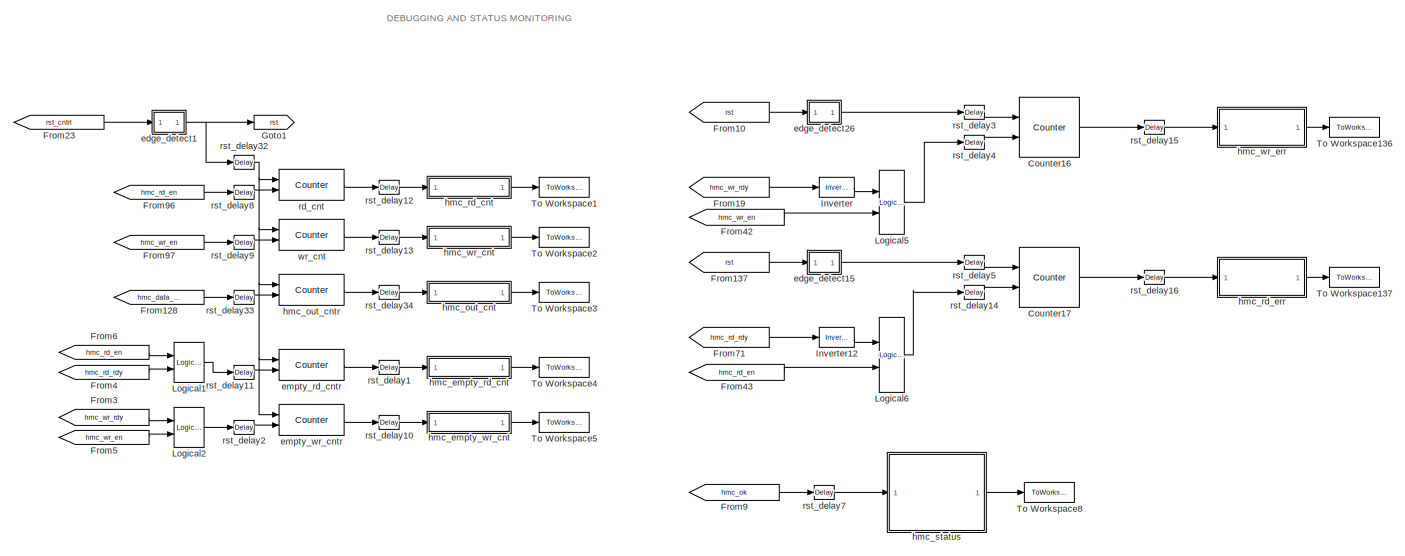
[diagram: root canvas - part 1/8, top center region]
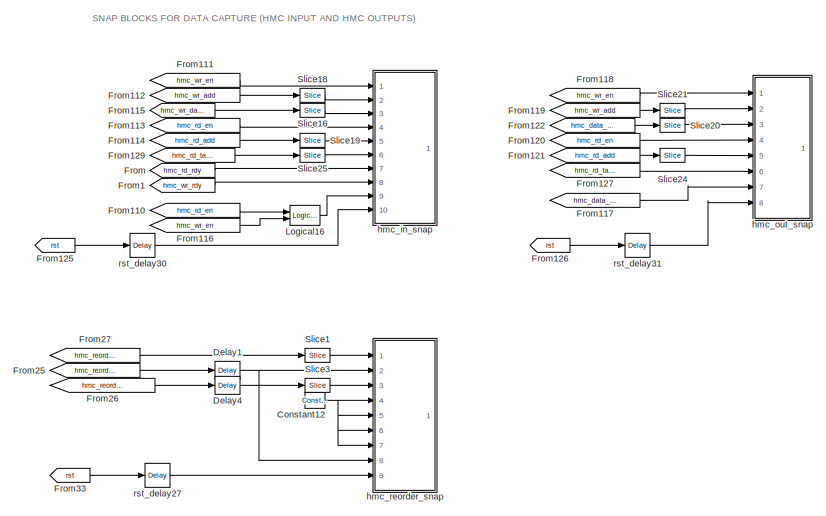
[diagram: root canvas - part 2/8, top right region]
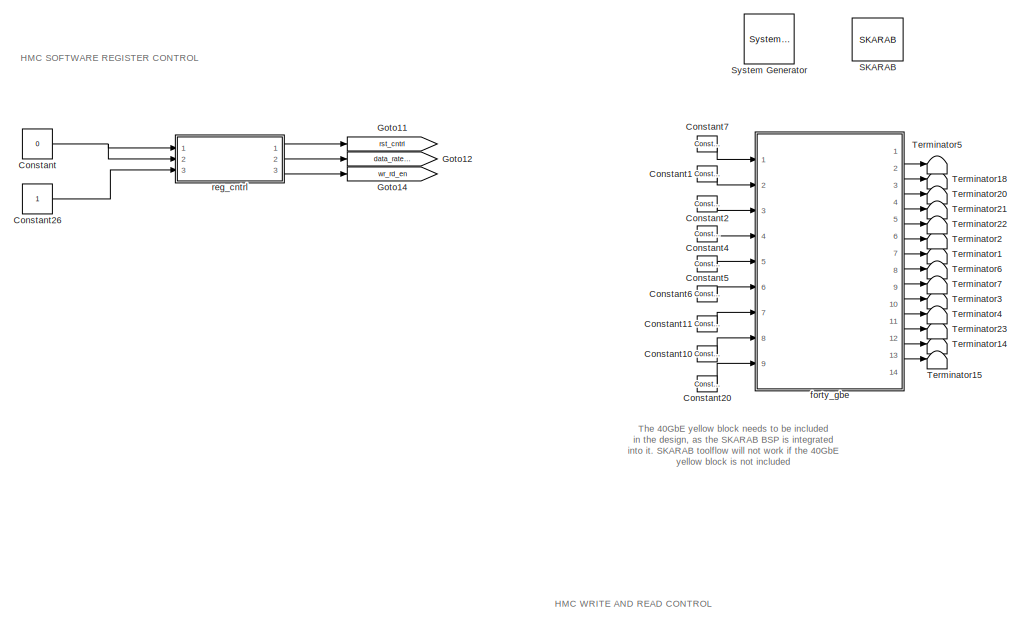
[diagram: root canvas - part 3/8, top left region]
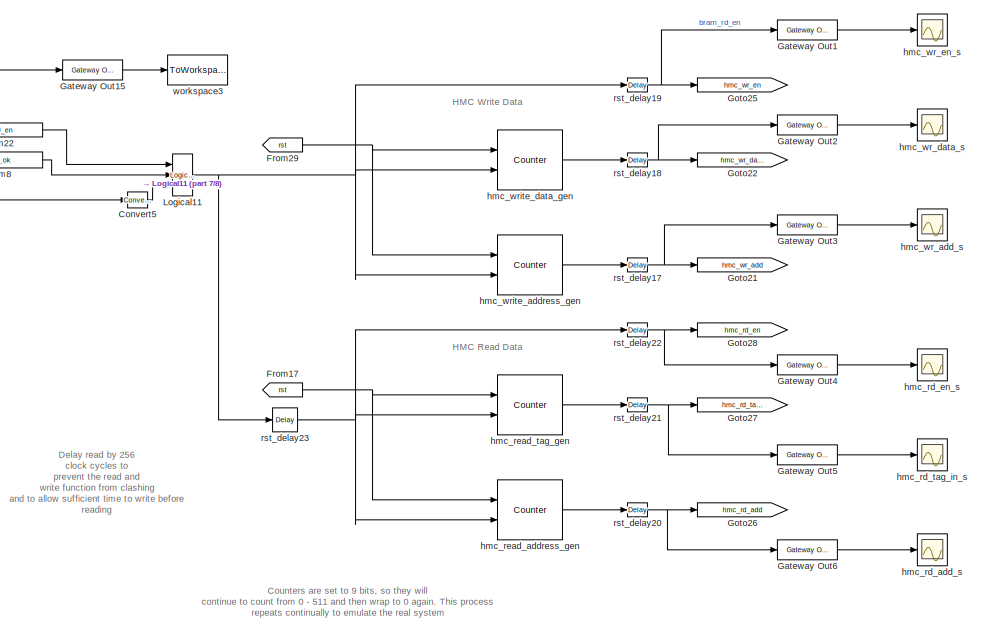
[diagram: root canvas - part 4/8, middle left region]
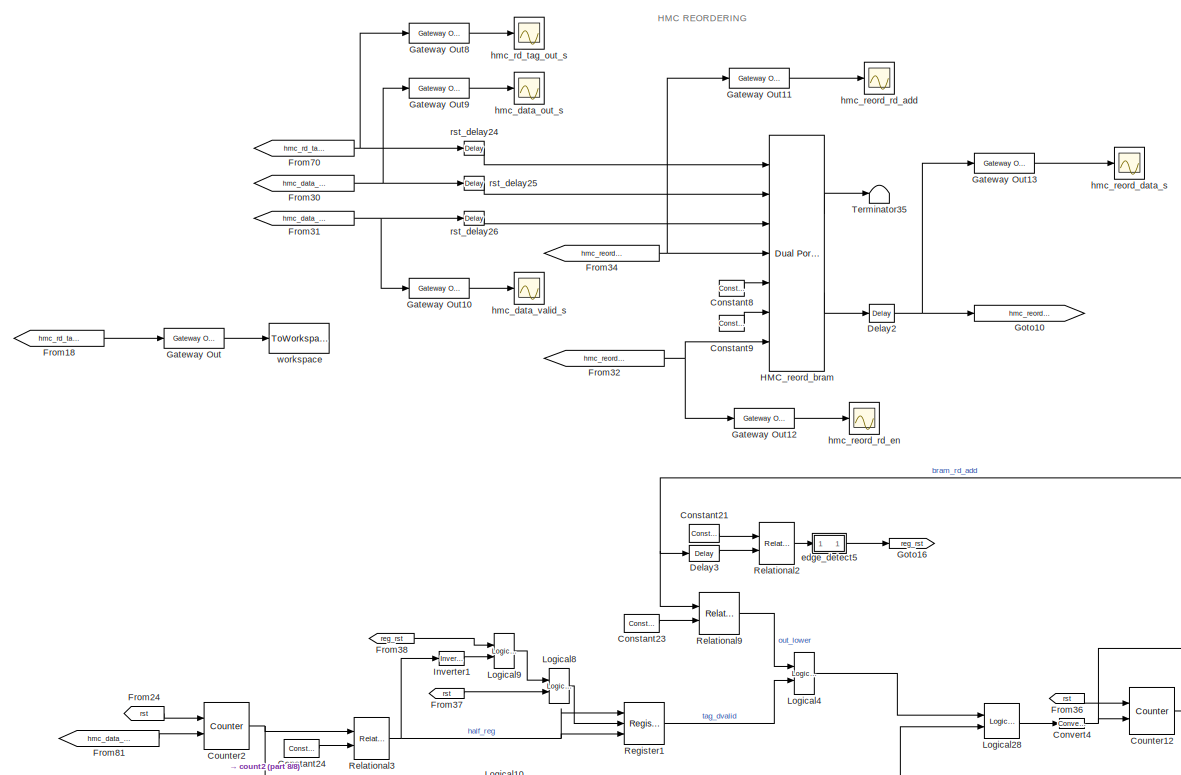
[diagram: root canvas - part 5/8, middle right region]
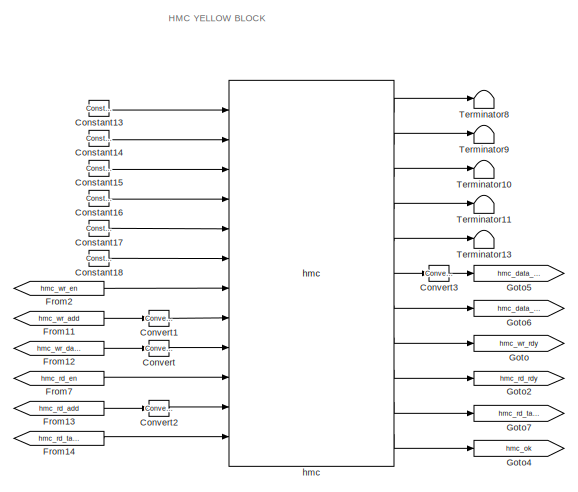
[diagram: root canvas - part 6/8, central region]
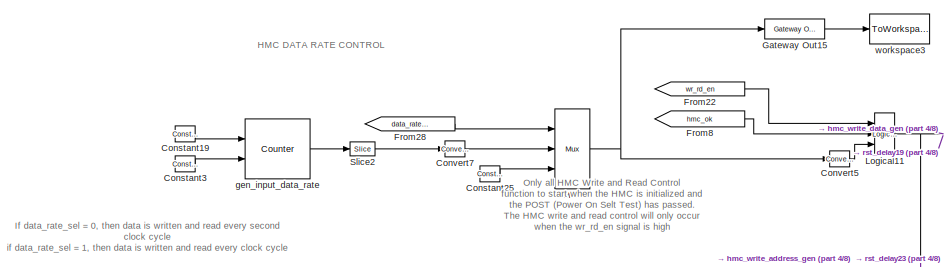
[diagram: root canvas - part 7/8, middle left region]
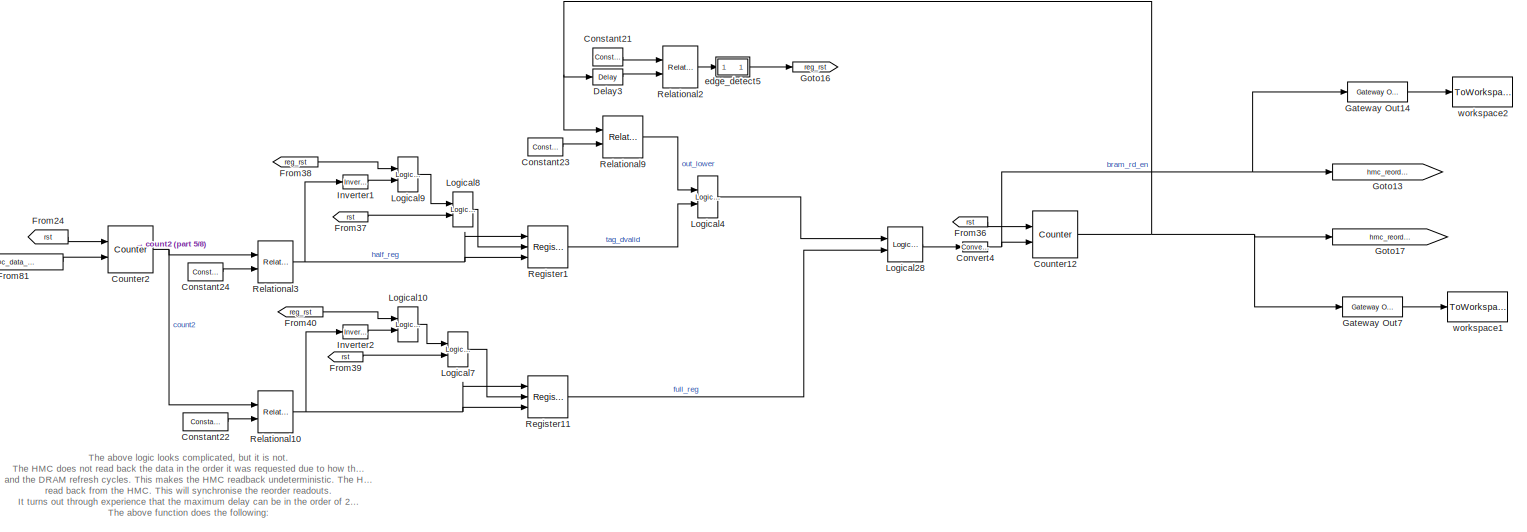
[diagram: root canvas - part 8/8, bottom right region]
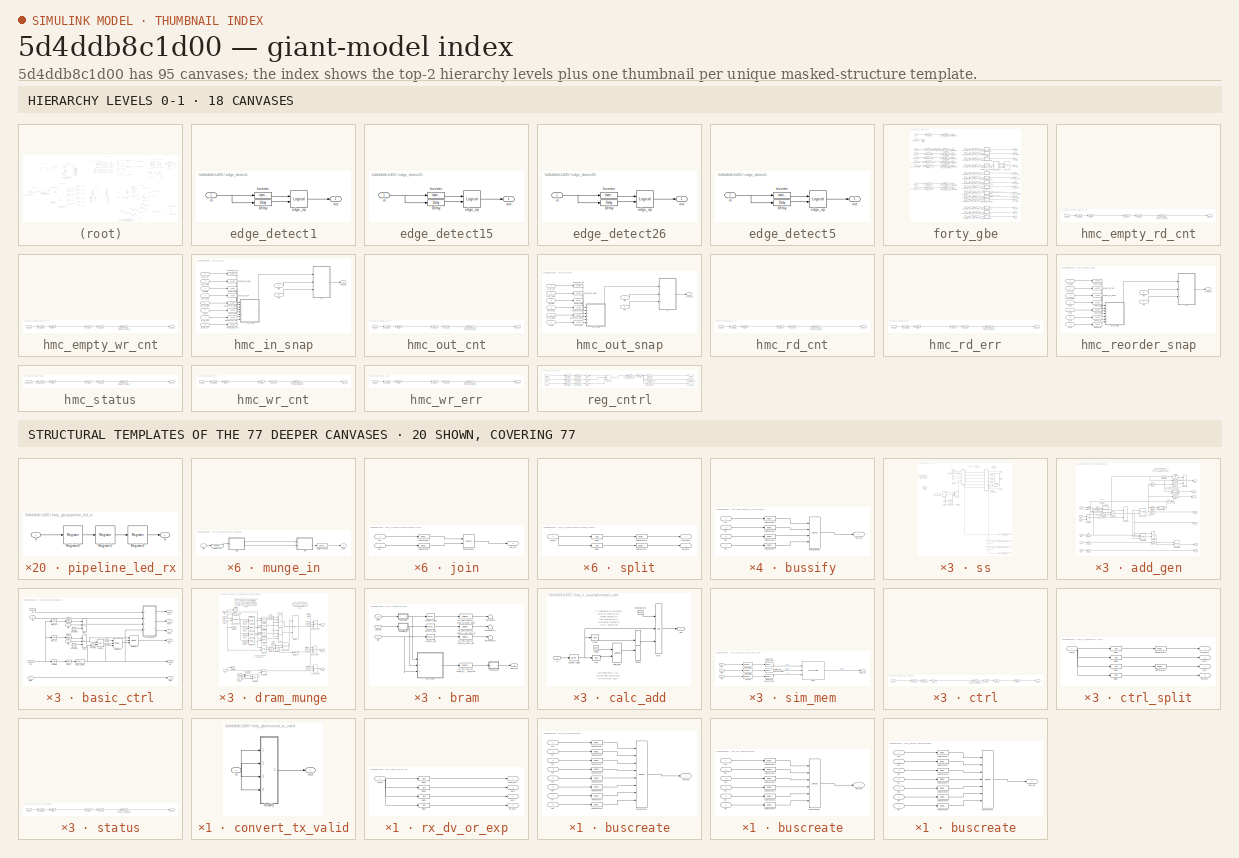
[diagram: thumbnail index - top-2 hierarchy levels (18 canvases) + 20 structural-template representatives of the remaining 77 canvases]
MODEL slx_5d4ddb8c1d00
KIND model
CONFIG AbsTol = auto
CONFIG EnableMultiTasking = off
CONFIG FixedStep = auto
CONFIG MaxStep = auto
CONFIG MinStep = auto
CONFIG RelTol = 1e-3
CONFIG SampleTimeConstraint = Unconstrained
CONFIG Solver = VariableStepDiscrete
CONFIG SolverName = VariableStepDiscrete
CONFIG StartTime = 0.0
CONFIG StopTime = 3000
BLOCK [Reference]  System Generator  REF=xbsIndex_r4/ System Generator
  AttributesFormatString = System\nGenerator
  Ports = []
  SourceBlock = xbsIndex_r4/ System Generator
  SourceType = Xilinx System Generator Block
  Tag = genX
  UserDataPersistent = on
BLOCK [Constant] Constant
  Value = 0
BLOCK [Reference] Constant1  REF=xbsIndex_r4/Constant
  Ports = [0, 1]
  SourceBlock = xbsIndex_r4/Constant
  SourceType = Xilinx Constant Block Block
BLOCK [Reference] Constant10  REF=xbsIndex_r4/Constant
  Ports = [0, 1]
  SourceBlock = xbsIndex_r4/Constant
  SourceType = Xilinx Constant Block Block
BLOCK [Reference] Constant11  REF=xbsIndex_r4/Constant
  Ports = [0, 1]
  SourceBlock = xbsIndex_r4/Constant
  SourceType = Xilinx Constant Block Block
BLOCK [Reference] Constant12  REF=xbsIndex_r4/Constant
  Ports = [0, 1]
  SourceBlock = xbsIndex_r4/Constant
  SourceType = Xilinx Constant Block Block
BLOCK [Reference] Constant13  REF=xbsIndex_r4/Constant
  Ports = [0, 1]
  SourceBlock = xbsIndex_r4/Constant
  SourceType = Xilinx Constant Block Block
BLOCK [Reference] Constant14  REF=xbsIndex_r4/Constant
  Ports = [0, 1]
  SourceBlock = xbsIndex_r4/Constant
  SourceType = Xilinx Constant Block Block
BLOCK [Reference] Constant15  REF=xbsIndex_r4/Constant
  Ports = [0, 1]
  SourceBlock = xbsIndex_r4/Constant
  SourceType = Xilinx Constant Block Block
BLOCK [Reference] Constant16  REF=xbsIndex_r4/Constant
  Ports = [0, 1]
  SourceBlock = xbsIndex_r4/Constant
  SourceType = Xilinx Constant Block Block
BLOCK [Reference] Constant17  REF=xbsIndex_r4/Constant
  Ports = [0, 1]
  SourceBlock = xbsIndex_r4/Constant
  SourceType = Xilinx Constant Block Block
BLOCK [Reference] Constant18  REF=xbsIndex_r4/Constant
  Ports = [0, 1]
  SourceBlock = xbsIndex_r4/Constant
  SourceType = Xilinx Constant Block Block
BLOCK [Reference] Constant19  REF=xbsIndex_r4/Constant
  Ports = [0, 1]
  SourceBlock = xbsIndex_r4/Constant
  SourceType = Xilinx Constant Block Block
BLOCK [Reference] Constant2  REF=xbsIndex_r4/Constant
  Ports = [0, 1]
  SourceBlock = xbsIndex_r4/Constant
  SourceType = Xilinx Constant Block Block
BLOCK [Reference] Constant20  REF=xbsIndex_r4/Constant
  Ports = [0, 1]
  SourceBlock = xbsIndex_r4/Constant
  SourceType = Xilinx Constant Block Block
BLOCK [Reference] Constant21  REF=xbsIndex_r4/Constant
  Ports = [0, 1]
  SourceBlock = xbsIndex_r4/Constant
  SourceType = Xilinx Constant Block Block
BLOCK [Reference] Constant22  REF=xbsIndex_r4/Constant
  Ports = [0, 1]
  SourceBlock = xbsIndex_r4/Constant
  SourceType = Xilinx Constant Block Block
BLOCK [Reference] Constant23  REF=xbsIndex_r4/Constant
  Ports = [0, 1]
  SourceBlock = xbsIndex_r4/Constant
  SourceType = Xilinx Constant Block Block
BLOCK [Reference] Constant24  REF=xbsIndex_r4/Constant
  Ports = [0, 1]
  SourceBlock = xbsIndex_r4/Constant
  SourceType = Xilinx Constant Block Block
BLOCK [Reference] Constant25  REF=xbsIndex_r4/Constant
  Ports = [0, 1]
  SourceBlock = xbsIndex_r4/Constant
  SourceType = Xilinx Constant Block Block
BLOCK [Constant] Constant26
BLOCK [Reference] Constant3  REF=xbsIndex_r4/Constant
  Ports = [0, 1]
  SourceBlock = xbsIndex_r4/Constant
  SourceType = Xilinx Constant Block Block
BLOCK [Reference] Constant4  REF=xbsIndex_r4/Constant
  Ports = [0, 1]
  SourceBlock = xbsIndex_r4/Constant
  SourceType = Xilinx Constant Block Block
BLOCK [Reference] Constant5  REF=xbsIndex_r4/Constant
  Ports = [0, 1]
  SourceBlock = xbsIndex_r4/Constant
  SourceType = Xilinx Constant Block Block
BLOCK [Reference] Constant6  REF=xbsIndex_r4/Constant
  Ports = [0, 1]
  SourceBlock = xbsIndex_r4/Constant
  SourceType = Xilinx Constant Block Block
BLOCK [Reference] Constant7  REF=xbsIndex_r4/Constant
  Ports = [0, 1]
  SourceBlock = xbsIndex_r4/Constant
  SourceType = Xilinx Constant Block Block
BLOCK [Reference] Constant8  REF=xbsIndex_r4/Constant
  Ports = [0, 1]
  SourceBlock = xbsIndex_r4/Constant
  SourceType = Xilinx Constant Block Block
BLOCK [Reference] Constant9  REF=xbsIndex_r4/Constant
  Ports = [0, 1]
  SourceBlock = xbsIndex_r4/Constant
  SourceType = Xilinx Constant Block Block
BLOCK [Reference] Convert  REF=xbsIndex_r4/Convert
  Ports = [1, 1]
  SourceBlock = xbsIndex_r4/Convert
  SourceType = Xilinx Type Converter Block
BLOCK [Reference] Convert1  REF=xbsIndex_r4/Convert
  Ports = [1, 1]
  SourceBlock = xbsIndex_r4/Convert
  SourceType = Xilinx Type Converter Block
BLOCK [Reference] Convert2  REF=xbsIndex_r4/Convert
  Ports = [1, 1]
  SourceBlock = xbsIndex_r4/Convert
  SourceType = Xilinx Type Converter Block
BLOCK [Reference] Convert3  REF=xbsIndex_r4/Convert
  Ports = [1, 1]
  SourceBlock = xbsIndex_r4/Convert
  SourceType = Xilinx Type Converter Block
BLOCK [Reference] Convert4  REF=xbsIndex_r4/Convert
  Ports = [1, 1]
  SourceBlock = xbsIndex_r4/Convert
  SourceType = Xilinx Type Converter Block
BLOCK [Reference] Convert5  REF=xbsIndex_r4/Convert
  Ports = [1, 1]
  SourceBlock = xbsIndex_r4/Convert
  SourceType = Xilinx Type Converter Block
BLOCK [Reference] Convert7  REF=xbsIndex_r4/Convert
  Ports = [1, 1]
  SourceBlock = xbsIndex_r4/Convert
  SourceType = Xilinx Type Converter Block
BLOCK [Reference] Counter12  REF=xbsIndex_r4/Counter
  Ports = [2, 1]
  SourceBlock = xbsIndex_r4/Counter
  SourceType = Xilinx Counter Block
BLOCK [Reference] Counter16  REF=xbsIndex_r4/Counter
  Ports = [2, 1]
  SourceBlock = xbsIndex_r4/Counter
  SourceType = Xilinx Counter Block
BLOCK [Reference] Counter17  REF=xbsIndex_r4/Counter
  Ports = [2, 1]
  SourceBlock = xbsIndex_r4/Counter
  SourceType = Xilinx Counter Block
BLOCK [Reference] Counter2  REF=xbsIndex_r4/Counter
  Ports = [2, 1]
  SourceBlock = xbsIndex_r4/Counter
  SourceType = Xilinx Counter Block
BLOCK [Reference] Delay1  REF=xbsIndex_r4/Delay
  Ports = [1, 1]
  SourceBlock = xbsIndex_r4/Delay
  SourceType = Xilinx Delay Block
BLOCK [Reference] Delay2  REF=xbsIndex_r4/Delay
  Ports = [1, 1]
  SourceBlock = xbsIndex_r4/Delay
  SourceType = Xilinx Delay Block
BLOCK [Reference] Delay3  REF=xbsIndex_r4/Delay
  Ports = [1, 1]
  SourceBlock = xbsIndex_r4/Delay
  SourceType = Xilinx Delay Block
BLOCK [Reference] Delay4  REF=xbsIndex_r4/Delay
  Ports = [1, 1]
  SourceBlock = xbsIndex_r4/Delay
  SourceType = Xilinx Delay Block
BLOCK [From] From
  GotoTag = hmc_rd_rdy
BLOCK [From] From1
  GotoTag = hmc_wr_rdy
BLOCK [From] From10
  GotoTag = rst
BLOCK [From] From11
  CloseFcn = tagdialog Close
  GotoTag = hmc_wr_add
BLOCK [From] From110
  CloseFcn = tagdialog Close
  GotoTag = hmc_rd_en
BLOCK [From] From111
  CloseFcn = tagdialog Close
  GotoTag = hmc_wr_en
BLOCK [From] From112
  CloseFcn = tagdialog Close
  GotoTag = hmc_wr_add
BLOCK [From] From113
  CloseFcn = tagdialog Close
  GotoTag = hmc_rd_en
BLOCK [From] From114
  CloseFcn = tagdialog Close
  GotoTag = hmc_rd_add
BLOCK [From] From115
  GotoTag = hmc_wr_data
BLOCK [From] From116
  CloseFcn = tagdialog Close
  GotoTag = hmc_wr_en
BLOCK [From] From117
  CloseFcn = tagdialog Close
  GotoTag = hmc_data_valid
BLOCK [From] From118
  CloseFcn = tagdialog Close
  GotoTag = hmc_wr_en
BLOCK [From] From119
  CloseFcn = tagdialog Close
  GotoTag = hmc_wr_add
BLOCK [From] From12
  CloseFcn = tagdialog Close
  GotoTag = hmc_wr_data
BLOCK [From] From120
  CloseFcn = tagdialog Close
  GotoTag = hmc_rd_en
BLOCK [From] From121
  CloseFcn = tagdialog Close
  GotoTag = hmc_rd_add
BLOCK [From] From122
  GotoTag = hmc_data_out
BLOCK [From] From125
  CloseFcn = tagdialog Close
  GotoTag = rst
BLOCK [From] From126
  CloseFcn = tagdialog Close
  GotoTag = rst
BLOCK [From] From127
  CloseFcn = tagdialog Close
  GotoTag = hmc_rd_tag_out
BLOCK [From] From128
  CloseFcn = tagdialog Close
  GotoTag = hmc_data_valid
BLOCK [From] From129
  CloseFcn = tagdialog Close
  GotoTag = hmc_rd_tag_in
BLOCK [From] From13
  CloseFcn = tagdialog Close
  GotoTag = hmc_rd_add
BLOCK [From] From137
  GotoTag = rst
BLOCK [From] From14
  CloseFcn = tagdialog Close
  GotoTag = hmc_rd_tag_in
BLOCK [From] From17
  GotoTag = rst
BLOCK [From] From18
  GotoTag = hmc_rd_tag_out
BLOCK [From] From19
  GotoTag = hmc_wr_rdy
BLOCK [From] From2
  CloseFcn = tagdialog Close
  GotoTag = hmc_wr_en
BLOCK [From] From22
  GotoTag = wr_rd_en
BLOCK [From] From23
  GotoTag = rst_cntrl
BLOCK [From] From24
  GotoTag = rst
BLOCK [From] From25
  CloseFcn = tagdialog Close
  GotoTag = hmc_reord_rd_en
BLOCK [From] From26
  CloseFcn = tagdialog Close
  GotoTag = hmc_reord_rd_add
BLOCK [From] From27
  GotoTag = hmc_reord_data
BLOCK [From] From28
  GotoTag = data_rate_sel
BLOCK [From] From29
  GotoTag = rst
BLOCK [From] From3
  CloseFcn = tagdialog Close
  GotoTag = hmc_wr_rdy
BLOCK [From] From30
  GotoTag = hmc_data_out
BLOCK [From] From31
  GotoTag = hmc_data_valid
BLOCK [From] From32
  GotoTag = hmc_reord_rd_en
BLOCK [From] From33
  CloseFcn = tagdialog Close
  GotoTag = rst
BLOCK [From] From34
  GotoTag = hmc_reord_rd_add
BLOCK [From] From36
  GotoTag = rst
BLOCK [From] From37
  GotoTag = rst
BLOCK [From] From38
  GotoTag = reg_rst
BLOCK [From] From39
  GotoTag = rst
BLOCK [From] From4
  CloseFcn = tagdialog Close
  GotoTag = hmc_rd_rdy
BLOCK [From] From40
  GotoTag = reg_rst
BLOCK [From] From42
  GotoTag = hmc_wr_en
BLOCK [From] From43
  GotoTag = hmc_rd_en
BLOCK [From] From5
  CloseFcn = tagdialog Close
  GotoTag = hmc_wr_en
BLOCK [From] From6
  CloseFcn = tagdialog Close
  GotoTag = hmc_rd_en
BLOCK [From] From7
  CloseFcn = tagdialog Close
  GotoTag = hmc_rd_en
BLOCK [From] From70
  GotoTag = hmc_rd_tag_out
BLOCK [From] From71
  GotoTag = hmc_rd_rdy
BLOCK [From] From8
  GotoTag = hmc_ok
BLOCK [From] From81
  GotoTag = hmc_data_valid
BLOCK [From] From9
  GotoTag = hmc_ok
BLOCK [From] From96
  CloseFcn = tagdialog Close
  GotoTag = hmc_rd_en
BLOCK [From] From97
  CloseFcn = tagdialog Close
  GotoTag = hmc_wr_en
BLOCK [Reference] Gateway Out  REF=xbsIndex_r4/Gateway Out
  Ports = [1, 1]
  SourceBlock = xbsIndex_r4/Gateway Out
  SourceType = Xilinx Gateway Out Block
BLOCK [Reference] Gateway Out1  REF=xbsIndex_r4/Gateway Out
  Ports = [1, 1]
  SourceBlock = xbsIndex_r4/Gateway Out
  SourceType = Xilinx Gateway Out Block
BLOCK [Reference] Gateway Out10  REF=xbsIndex_r4/Gateway Out
  Ports = [1, 1]
  SourceBlock = xbsIndex_r4/Gateway Out
  SourceType = Xilinx Gateway Out Block
BLOCK [Reference] Gateway Out11  REF=xbsIndex_r4/Gateway Out
  Ports = [1, 1]
  SourceBlock = xbsIndex_r4/Gateway Out
  SourceType = Xilinx Gateway Out Block
BLOCK [Reference] Gateway Out12  REF=xbsIndex_r4/Gateway Out
  Ports = [1, 1]
  SourceBlock = xbsIndex_r4/Gateway Out
  SourceType = Xilinx Gateway Out Block
BLOCK [Reference] Gateway Out13  REF=xbsIndex_r4/Gateway Out
  Ports = [1, 1]
  SourceBlock = xbsIndex_r4/Gateway Out
  SourceType = Xilinx Gateway Out Block
BLOCK [Reference] Gateway Out14  REF=xbsIndex_r4/Gateway Out
  Ports = [1, 1]
  SourceBlock = xbsIndex_r4/Gateway Out
  SourceType = Xilinx Gateway Out Block
BLOCK [Reference] Gateway Out15  REF=xbsIndex_r4/Gateway Out
  Ports = [1, 1]
  SourceBlock = xbsIndex_r4/Gateway Out
  SourceType = Xilinx Gateway Out Block
BLOCK [Reference] Gateway Out2  REF=xbsIndex_r4/Gateway Out
  Ports = [1, 1]
  SourceBlock = xbsIndex_r4/Gateway Out
  SourceType = Xilinx Gateway Out Block
BLOCK [Reference] Gateway Out3  REF=xbsIndex_r4/Gateway Out
  Ports = [1, 1]
  SourceBlock = xbsIndex_r4/Gateway Out
  SourceType = Xilinx Gateway Out Block
BLOCK [Reference] Gateway Out4  REF=xbsIndex_r4/Gateway Out
  Ports = [1, 1]
  SourceBlock = xbsIndex_r4/Gateway Out
  SourceType = Xilinx Gateway Out Block
BLOCK [Reference] Gateway Out5  REF=xbsIndex_r4/Gateway Out
  Ports = [1, 1]
  SourceBlock = xbsIndex_r4/Gateway Out
  SourceType = Xilinx Gateway Out Block
BLOCK [Reference] Gateway Out6  REF=xbsIndex_r4/Gateway Out
  Ports = [1, 1]
  SourceBlock = xbsIndex_r4/Gateway Out
  SourceType = Xilinx Gateway Out Block
BLOCK [Reference] Gateway Out7  REF=xbsIndex_r4/Gateway Out
  Ports = [1, 1]
  SourceBlock = xbsIndex_r4/Gateway Out
  SourceType = Xilinx Gateway Out Block
BLOCK [Reference] Gateway Out8  REF=xbsIndex_r4/Gateway Out
  Ports = [1, 1]
  SourceBlock = xbsIndex_r4/Gateway Out
  SourceType = Xilinx Gateway Out Block
BLOCK [Reference] Gateway Out9  REF=xbsIndex_r4/Gateway Out
  Ports = [1, 1]
  SourceBlock = xbsIndex_r4/Gateway Out
  SourceType = Xilinx Gateway Out Block
BLOCK [Goto] Goto
  GotoTag = hmc_wr_rdy
BLOCK [Goto] Goto1
  GotoTag = rst
BLOCK [Goto] Goto10
  GotoTag = hmc_reord_data
BLOCK [Goto] Goto11
  GotoTag = rst_cntrl
BLOCK [Goto] Goto12
  GotoTag = data_rate_sel
BLOCK [Goto] Goto13
  GotoTag = hmc_reord_rd_en
BLOCK [Goto] Goto14
  GotoTag = wr_rd_en
BLOCK [Goto] Goto16
  GotoTag = reg_rst
BLOCK [Goto] Goto17
  GotoTag = hmc_reord_rd_add
BLOCK [Goto] Goto2
  GotoTag = hmc_rd_rdy
BLOCK [Goto] Goto21
  GotoTag = hmc_wr_add
BLOCK [Goto] Goto22
  GotoTag = hmc_wr_data
BLOCK [Goto] Goto25
  GotoTag = hmc_wr_en
BLOCK [Goto] Goto26
  GotoTag = hmc_rd_add
BLOCK [Goto] Goto27
  GotoTag = hmc_rd_tag_in
BLOCK [Goto] Goto28
  GotoTag = hmc_rd_en
BLOCK [Goto] Goto4
  GotoTag = hmc_ok
BLOCK [Goto] Goto5
  GotoTag = hmc_data_out
BLOCK [Goto] Goto6
  GotoTag = hmc_data_valid
BLOCK [Goto] Goto7
  GotoTag = hmc_rd_tag_out
BLOCK [Reference] HMC_reord_bram  REF=xbsIndex_r4/Dual Port RAM
  Ports = [7, 2]
  SourceBlock = xbsIndex_r4/Dual Port RAM
  SourceType = Xilinx Dual Port Random Access Memory Block
BLOCK [Reference] Inverter  REF=xbsIndex_r4/Inverter
  Ports = [1, 1]
  SourceBlock = xbsIndex_r4/Inverter
  SourceType = Xilinx Inverter Block
BLOCK [Reference] Inverter1  REF=xbsIndex_r4/Inverter
  Ports = [1, 1]
  SourceBlock = xbsIndex_r4/Inverter
  SourceType = Xilinx Inverter Block
BLOCK [Reference] Inverter12  REF=xbsIndex_r4/Inverter
  Ports = [1, 1]
  SourceBlock = xbsIndex_r4/Inverter
  SourceType = Xilinx Inverter Block
BLOCK [Reference] Inverter2  REF=xbsIndex_r4/Inverter
  Ports = [1, 1]
  SourceBlock = xbsIndex_r4/Inverter
  SourceType = Xilinx Inverter Block
BLOCK [Reference] Logical1  REF=xbsIndex_r4/Logical
  Ports = [2, 1]
  SourceBlock = xbsIndex_r4/Logical
  SourceType = Xilinx Logical Block Block
BLOCK [Reference] Logical10  REF=xbsIndex_r4/Logical
  Ports = [2, 1]
  SourceBlock = xbsIndex_r4/Logical
  SourceType = Xilinx Logical Block Block
BLOCK [Reference] Logical11  REF=xbsIndex_r4/Logical
  Ports = [3, 1]
  SourceBlock = xbsIndex_r4/Logical
  SourceType = Xilinx Logical Block Block
BLOCK [Reference] Logical16  REF=xbsIndex_r4/Logical
  Ports = [2, 1]
  SourceBlock = xbsIndex_r4/Logical
  SourceType = Xilinx Logical Block Block
BLOCK [Reference] Logical2  REF=xbsIndex_r4/Logical
  Ports = [2, 1]
  SourceBlock = xbsIndex_r4/Logical
  SourceType = Xilinx Logical Block Block
BLOCK [Reference] Logical28  REF=xbsIndex_r4/Logical
  Ports = [2, 1]
  SourceBlock = xbsIndex_r4/Logical
  SourceType = Xilinx Logical Block Block
BLOCK [Reference] Logical4  REF=xbsIndex_r4/Logical
  Ports = [2, 1]
  SourceBlock = xbsIndex_r4/Logical
  SourceType = Xilinx Logical Block Block
BLOCK [Reference] Logical5  REF=xbsIndex_r4/Logical
  Ports = [2, 1]
  SourceBlock = xbsIndex_r4/Logical
  SourceType = Xilinx Logical Block Block
BLOCK [Reference] Logical6  REF=xbsIndex_r4/Logical
  Ports = [2, 1]
  SourceBlock = xbsIndex_r4/Logical
  SourceType = Xilinx Logical Block Block
BLOCK [Reference] Logical7  REF=xbsIndex_r4/Logical
  Ports = [2, 1]
  SourceBlock = xbsIndex_r4/Logical
  SourceType = Xilinx Logical Block Block
BLOCK [Reference] Logical8  REF=xbsIndex_r4/Logical
  Ports = [2, 1]
  SourceBlock = xbsIndex_r4/Logical
  SourceType = Xilinx Logical Block Block
BLOCK [Reference] Logical9  REF=xbsIndex_r4/Logical
  Ports = [2, 1]
  SourceBlock = xbsIndex_r4/Logical
  SourceType = Xilinx Logical Block Block
BLOCK [Reference] Mux  REF=xbsIndex_r4/Mux
  Ports = [3, 1]
  SourceBlock = xbsIndex_r4/Mux
  SourceType = Xilinx Bus Multiplexer Block
BLOCK [Reference] Register1  REF=xbsIndex_r4/Register
  Ports = [3, 1]
  SourceBlock = xbsIndex_r4/Register
  SourceType = Xilinx Register Block
BLOCK [Reference] Register11  REF=xbsIndex_r4/Register
  Ports = [3, 1]
  SourceBlock = xbsIndex_r4/Register
  SourceType = Xilinx Register Block
BLOCK [Reference] Relational10  REF=xbsIndex_r4/Relational
  Ports = [2, 1]
  SourceBlock = xbsIndex_r4/Relational
  SourceType = Xilinx Arithmetic Relational Operator Block
BLOCK [Reference] Relational2  REF=xbsIndex_r4/Relational
  Ports = [2, 1]
  SourceBlock = xbsIndex_r4/Relational
  SourceType = Xilinx Arithmetic Relational Operator Block
BLOCK [Reference] Relational3  REF=xbsIndex_r4/Relational
  Ports = [2, 1]
  SourceBlock = xbsIndex_r4/Relational
  SourceType = Xilinx Arithmetic Relational Operator Block
BLOCK [Reference] Relational9  REF=xbsIndex_r4/Relational
  Ports = [2, 1]
  SourceBlock = xbsIndex_r4/Relational
  SourceType = Xilinx Arithmetic Relational Operator Block
BLOCK [Reference] SKARAB  REF=xps_library/Platforms/SKARAB  (lib defined in mdl_00b5cec29cd0, mdl_02ab6ecaa3d1, +5 more)
  Ports = []
  SourceBlock = xps_library/Platforms/SKARAB
  SourceProductName = CASPER XPS Blockset
  SourceType = xsg core config
  Tag = xps:xsg
BLOCK [Reference] Slice1  REF=xbsIndex_r4/Slice
  Ports = [1, 1]
  SourceBlock = xbsIndex_r4/Slice
  SourceType = Xilinx Bit Slice Extractor Block
BLOCK [Reference] Slice16  REF=xbsIndex_r4/Slice
  Ports = [1, 1]
  SourceBlock = xbsIndex_r4/Slice
  SourceType = Xilinx Bit Slice Extractor Block
BLOCK [Reference] Slice18  REF=xbsIndex_r4/Slice
  Ports = [1, 1]
  SourceBlock = xbsIndex_r4/Slice
  SourceType = Xilinx Bit Slice Extractor Block
BLOCK [Reference] Slice19  REF=xbsIndex_r4/Slice
  Ports = [1, 1]
  SourceBlock = xbsIndex_r4/Slice
  SourceType = Xilinx Bit Slice Extractor Block
BLOCK [Reference] Slice2  REF=xbsIndex_r4/Slice
  Ports = [1, 1]
  SourceBlock = xbsIndex_r4/Slice
  SourceType = Xilinx Bit Slice Extractor Block
BLOCK [Reference] Slice20  REF=xbsIndex_r4/Slice
  Ports = [1, 1]
  SourceBlock = xbsIndex_r4/Slice
  SourceType = Xilinx Bit Slice Extractor Block
BLOCK [Reference] Slice21  REF=xbsIndex_r4/Slice
  Ports = [1, 1]
  SourceBlock = xbsIndex_r4/Slice
  SourceType = Xilinx Bit Slice Extractor Block
BLOCK [Reference] Slice24  REF=xbsIndex_r4/Slice
  Ports = [1, 1]
  SourceBlock = xbsIndex_r4/Slice
  SourceType = Xilinx Bit Slice Extractor Block
BLOCK [Reference] Slice25  REF=xbsIndex_r4/Slice
  Ports = [1, 1]
  SourceBlock = xbsIndex_r4/Slice
  SourceType = Xilinx Bit Slice Extractor Block
BLOCK [Reference] Slice3  REF=xbsIndex_r4/Slice
  Ports = [1, 1]
  SourceBlock = xbsIndex_r4/Slice
  SourceType = Xilinx Bit Slice Extractor Block
BLOCK [Terminator] Terminator1
BLOCK [Terminator] Terminator10
BLOCK [Terminator] Terminator11
BLOCK [Terminator] Terminator13
BLOCK [Terminator] Terminator14
BLOCK [Terminator] Terminator15
BLOCK [Terminator] Terminator18
BLOCK [Terminator] Terminator2
BLOCK [Terminator] Terminator20
BLOCK [Terminator] Terminator21
BLOCK [Terminator] Terminator22
BLOCK [Terminator] Terminator23
BLOCK [Terminator] Terminator3
BLOCK [Terminator] Terminator35
BLOCK [Terminator] Terminator4
BLOCK [Terminator] Terminator5
BLOCK [Terminator] Terminator6
BLOCK [Terminator] Terminator7
BLOCK [Terminator] Terminator8
BLOCK [Terminator] Terminator9
BLOCK [ToWorkspace] To Workspace1
  FixptAsFi = on
  MaxDataPoints = inf
  Ports = [1]
  SampleTime = -1
  Save2DSignal = 3-D array (concatenate along third dimension)
  SaveFormat = Timeseries
  VariableName = tp4
BLOCK [ToWorkspace] To Workspace136
  FixptAsFi = on
  MaxDataPoints = inf
  Ports = [1]
  SampleTime = -1
  Save2DSignal = 3-D array (concatenate along third dimension)
  SaveFormat = Timeseries
  VariableName = tp2
BLOCK [ToWorkspace] To Workspace137
  FixptAsFi = on
  MaxDataPoints = inf
  Ports = [1]
  SampleTime = -1
  Save2DSignal = 3-D array (concatenate along third dimension)
  SaveFormat = Timeseries
  VariableName = tp3
BLOCK [ToWorkspace] To Workspace2
  FixptAsFi = on
  MaxDataPoints = inf
  Ports = [1]
  SampleTime = -1
  Save2DSignal = 3-D array (concatenate along third dimension)
  SaveFormat = Timeseries
  VariableName = tp5
BLOCK [ToWorkspace] To Workspace3
  FixptAsFi = on
  MaxDataPoints = inf
  Ports = [1]
  SampleTime = -1
  Save2DSignal = 3-D array (concatenate along third dimension)
  SaveFormat = Timeseries
  VariableName = tp6
BLOCK [ToWorkspace] To Workspace4
  FixptAsFi = on
  MaxDataPoints = inf
  Ports = [1]
  SampleTime = -1
  Save2DSignal = 3-D array (concatenate along third dimension)
  SaveFormat = Timeseries
  VariableName = tp7
BLOCK [ToWorkspace] To Workspace5
  FixptAsFi = on
  MaxDataPoints = inf
  Ports = [1]
  SampleTime = -1
  Save2DSignal = 3-D array (concatenate along third dimension)
  SaveFormat = Timeseries
  VariableName = tp8
BLOCK [ToWorkspace] To Workspace8
  FixptAsFi = on
  MaxDataPoints = inf
  Ports = [1]
  SampleTime = -1
  Save2DSignal = 3-D array (concatenate along third dimension)
  SaveFormat = Timeseries
  VariableName = tp11
BLOCK [SubSystem] edge_detect1
  AncestorBlock = casper_library_misc/edge_detect
  AttributesFormatString = rising edges\nactive high
  Ports = [1, 1]
  RequestExecContextInheritance = off
  UserDataPersistent = on
BLOCK [Reference] edge_detect1/Delay  REF=xbsIndex_r4/Delay
  Ports = [1, 1]
  SourceBlock = xbsIndex_r4/Delay
  SourceType = Xilinx Delay Block
BLOCK [Reference] edge_detect1/Inverter  REF=xbsIndex_r4/Inverter
  Ports = [1, 1]
  SourceBlock = xbsIndex_r4/Inverter
  SourceType = Xilinx Inverter Block
BLOCK [Reference] edge_detect1/edge_op  REF=xbsIndex_r4/Logical
  Ports = [2, 1]
  SourceBlock = xbsIndex_r4/Logical
  SourceType = Xilinx Logical Block Block
BLOCK [Inport] edge_detect1/in
  IconDisplay = Port number
BLOCK [Outport] edge_detect1/out
  IconDisplay = Port number
BLOCK [SubSystem] edge_detect15
  AncestorBlock = casper_library_misc/edge_detect
  AttributesFormatString = rising edges\nactive high
  Ports = [1, 1]
  RequestExecContextInheritance = off
  UserDataPersistent = on
BLOCK [Reference] edge_detect15/Delay  REF=xbsIndex_r4/Delay
  Ports = [1, 1]
  SourceBlock = xbsIndex_r4/Delay
  SourceType = Xilinx Delay Block
BLOCK [Reference] edge_detect15/Inverter  REF=xbsIndex_r4/Inverter
  Ports = [1, 1]
  SourceBlock = xbsIndex_r4/Inverter
  SourceType = Xilinx Inverter Block
BLOCK [Reference] edge_detect15/edge_op  REF=xbsIndex_r4/Logical
  Ports = [2, 1]
  SourceBlock = xbsIndex_r4/Logical
  SourceType = Xilinx Logical Block Block
BLOCK [Inport] edge_detect15/in
  IconDisplay = Port number
BLOCK [Outport] edge_detect15/out
  IconDisplay = Port number
BLOCK [SubSystem] edge_detect26
  AncestorBlock = casper_library_misc/edge_detect
  AttributesFormatString = rising edges\nactive high
  Ports = [1, 1]
  RequestExecContextInheritance = off
  UserDataPersistent = on
BLOCK [Reference] edge_detect26/Delay  REF=xbsIndex_r4/Delay
  Ports = [1, 1]
  SourceBlock = xbsIndex_r4/Delay
  SourceType = Xilinx Delay Block
BLOCK [Reference] edge_detect26/Inverter  REF=xbsIndex_r4/Inverter
  Ports = [1, 1]
  SourceBlock = xbsIndex_r4/Inverter
  SourceType = Xilinx Inverter Block
BLOCK [Reference] edge_detect26/edge_op  REF=xbsIndex_r4/Logical
  Ports = [2, 1]
  SourceBlock = xbsIndex_r4/Logical
  SourceType = Xilinx Logical Block Block
BLOCK [Inport] edge_detect26/in
  IconDisplay = Port number
BLOCK [Outport] edge_detect26/out
  IconDisplay = Port number
BLOCK [SubSystem] edge_detect5
  AncestorBlock = casper_library_misc/edge_detect
  AttributesFormatString = rising edges\nactive high
  Ports = [1, 1]
  RequestExecContextInheritance = off
  UserDataPersistent = on
BLOCK [Reference] edge_detect5/Delay  REF=xbsIndex_r4/Delay
  Ports = [1, 1]
  SourceBlock = xbsIndex_r4/Delay
  SourceType = Xilinx Delay Block
BLOCK [Reference] edge_detect5/Inverter  REF=xbsIndex_r4/Inverter
  Ports = [1, 1]
  SourceBlock = xbsIndex_r4/Inverter
  SourceType = Xilinx Inverter Block
BLOCK [Reference] edge_detect5/edge_op  REF=xbsIndex_r4/Logical
  Ports = [2, 1]
  SourceBlock = xbsIndex_r4/Logical
  SourceType = Xilinx Logical Block Block
BLOCK [Inport] edge_detect5/in
  IconDisplay = Port number
BLOCK [Outport] edge_detect5/out
  IconDisplay = Port number
BLOCK [Reference] empty_rd_cntr  REF=xbsIndex_r4/Counter
  Ports = [2, 1]
  SourceBlock = xbsIndex_r4/Counter
  SourceType = Xilinx Counter Block
BLOCK [Reference] empty_wr_cntr  REF=xbsIndex_r4/Counter
  Ports = [2, 1]
  SourceBlock = xbsIndex_r4/Counter
  SourceType = Xilinx Counter Block
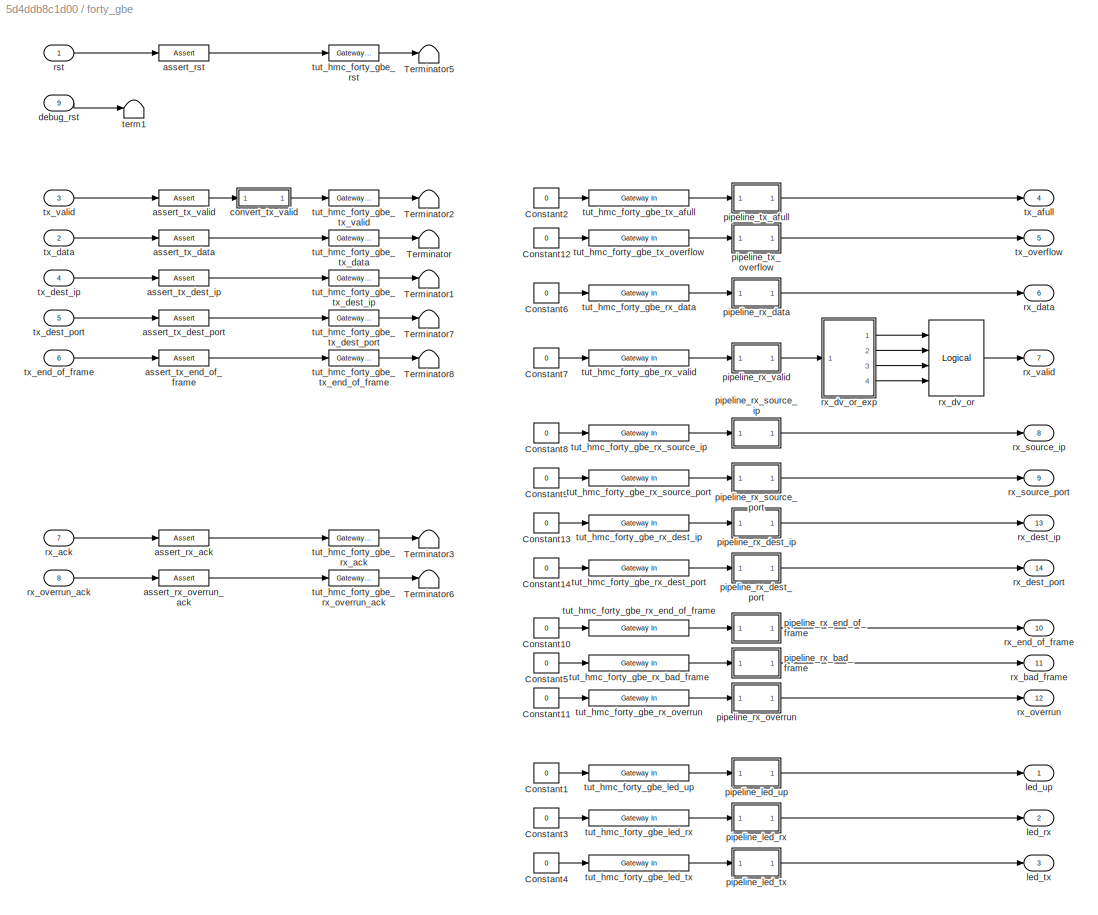
BLOCK [SubSystem] forty_gbe
  AncestorBlock = xps_library/IO/forty_gbe
  AttributesFormatString = incoming_latency=3
  Ports = [9, 14]
  RequestExecContextInheritance = off
  Tag = xps:forty_gbe
BLOCK [Constant] forty_gbe/Constant1
  Value = 0
BLOCK [Constant] forty_gbe/Constant10
  Value = 0
BLOCK [Constant] forty_gbe/Constant11
  Value = 0
BLOCK [Constant] forty_gbe/Constant12
  Value = 0
BLOCK [Constant] forty_gbe/Constant13
  Value = 0
BLOCK [Constant] forty_gbe/Constant14
  Value = 0
BLOCK [Constant] forty_gbe/Constant2
  Value = 0
BLOCK [Constant] forty_gbe/Constant3
  Value = 0
BLOCK [Constant] forty_gbe/Constant4
  Value = 0
BLOCK [Constant] forty_gbe/Constant5
  Value = 0
BLOCK [Constant] forty_gbe/Constant6
  Value = 0
BLOCK [Constant] forty_gbe/Constant7
  Value = 0
BLOCK [Constant] forty_gbe/Constant8
  Value = 0
BLOCK [Constant] forty_gbe/Constant9
  Value = 0
BLOCK [Terminator] forty_gbe/Terminator
BLOCK [Terminator] forty_gbe/Terminator1
BLOCK [Terminator] forty_gbe/Terminator2
BLOCK [Terminator] forty_gbe/Terminator3
BLOCK [Terminator] forty_gbe/Terminator5
BLOCK [Terminator] forty_gbe/Terminator6
BLOCK [Terminator] forty_gbe/Terminator7
BLOCK [Terminator] forty_gbe/Terminator8
BLOCK [Reference] forty_gbe/assert_rst  REF=xbsIndex_r4/Assert
  Ports = [1, 1]
  SourceBlock = xbsIndex_r4/Assert
  SourceType = Xilinx Assert Block
BLOCK [Reference] forty_gbe/assert_rx_ack  REF=xbsIndex_r4/Assert
  Ports = [1, 1]
  SourceBlock = xbsIndex_r4/Assert
  SourceType = Xilinx Assert Block
BLOCK [Reference] forty_gbe/assert_rx_overrun_ack  REF=xbsIndex_r4/Assert
  Ports = [1, 1]
  SourceBlock = xbsIndex_r4/Assert
  SourceType = Xilinx Assert Block
BLOCK [Reference] forty_gbe/assert_tx_data  REF=xbsIndex_r4/Assert
  Ports = [1, 1]
  SourceBlock = xbsIndex_r4/Assert
  SourceType = Xilinx Assert Block
BLOCK [Reference] forty_gbe/assert_tx_dest_ip  REF=xbsIndex_r4/Assert
  Ports = [1, 1]
  SourceBlock = xbsIndex_r4/Assert
  SourceType = Xilinx Assert Block
BLOCK [Reference] forty_gbe/assert_tx_dest_port  REF=xbsIndex_r4/Assert
  Ports = [1, 1]
  SourceBlock = xbsIndex_r4/Assert
  SourceType = Xilinx Assert Block
BLOCK [Reference] forty_gbe/assert_tx_end_of_frame  REF=xbsIndex_r4/Assert
  Ports = [1, 1]
  SourceBlock = xbsIndex_r4/Assert
  SourceType = Xilinx Assert Block
BLOCK [Reference] forty_gbe/assert_tx_valid  REF=xbsIndex_r4/Assert
  Ports = [1, 1]
  SourceBlock = xbsIndex_r4/Assert
  SourceType = Xilinx Assert Block
BLOCK [SubSystem] forty_gbe/convert_tx_valid
  AncestorBlock = casper_library_bus/bus_replicate
  Ports = [1, 1]
  RequestExecContextInheritance = off
  UserDataPersistent = on
BLOCK [SubSystem] forty_gbe/convert_tx_valid/bussify
  AncestorBlock = casper_library_flow_control/bus_create
  Ports = [4, 1]
  RequestExecContextInheritance = off
  UserDataPersistent = on
BLOCK [Outport] forty_gbe/convert_tx_valid/bussify/bus_out
  IconDisplay = Port number
BLOCK [Reference] forty_gbe/convert_tx_valid/bussify/concatenate  REF=xbsIndex_r4/Concat
  Ports = [4, 1]
  SourceBlock = xbsIndex_r4/Concat
  SourceType = Xilinx Bus Concatenator Block
BLOCK [Inport] forty_gbe/convert_tx_valid/bussify/in1
  IconDisplay = Port number
BLOCK [Inport] forty_gbe/convert_tx_valid/bussify/in2
  IconDisplay = Port number
  Port = 2
BLOCK [Inport] forty_gbe/convert_tx_valid/bussify/in3
  IconDisplay = Port number
  Port = 3
BLOCK [Inport] forty_gbe/convert_tx_valid/bussify/in4
  IconDisplay = Port number
  Port = 4
BLOCK [Reference] forty_gbe/convert_tx_valid/bussify/reinterpret1  REF=xbsIndex_r4/Reinterpret
  Ports = [1, 1]
  SourceBlock = xbsIndex_r4/Reinterpret
  SourceType = Xilinx Type Reinterpreter Block
BLOCK [Reference] forty_gbe/convert_tx_valid/bussify/reinterpret2  REF=xbsIndex_r4/Reinterpret
  Ports = [1, 1]
  SourceBlock = xbsIndex_r4/Reinterpret
  SourceType = Xilinx Type Reinterpreter Block
BLOCK [Reference] forty_gbe/convert_tx_valid/bussify/reinterpret3  REF=xbsIndex_r4/Reinterpret
  Ports = [1, 1]
  SourceBlock = xbsIndex_r4/Reinterpret
  SourceType = Xilinx Type Reinterpreter Block
BLOCK [Reference] forty_gbe/convert_tx_valid/bussify/reinterpret4  REF=xbsIndex_r4/Reinterpret
  Ports = [1, 1]
  SourceBlock = xbsIndex_r4/Reinterpret
  SourceType = Xilinx Type Reinterpreter Block
BLOCK [Inport] forty_gbe/convert_tx_valid/in
  IconDisplay = Port number
BLOCK [Outport] forty_gbe/convert_tx_valid/out
  IconDisplay = Port number
BLOCK [Inport] forty_gbe/debug_rst
  IconDisplay = Port number
  Port = 9
BLOCK [Outport] forty_gbe/led_rx
  IconDisplay = Port number
  Port = 2
BLOCK [Outport] forty_gbe/led_tx
  IconDisplay = Port number
  Port = 3
BLOCK [Outport] forty_gbe/led_up
  IconDisplay = Port number
BLOCK [SubSystem] forty_gbe/pipeline_led_rx
  AncestorBlock = casper_library_delays/pipeline
  AttributesFormatString = Latency = %<latency>
  Ports = [1, 1]
  RequestExecContextInheritance = off
  UserDataPersistent = on
BLOCK [Reference] forty_gbe/pipeline_led_rx/Register0  REF=xbsIndex_r4/Register
  Ports = [1, 1]
  SourceBlock = xbsIndex_r4/Register
  SourceType = Xilinx Register Block
BLOCK [Reference] forty_gbe/pipeline_led_rx/Register1  REF=xbsIndex_r4/Register
  Ports = [1, 1]
  SourceBlock = xbsIndex_r4/Register
  SourceType = Xilinx Register Block
BLOCK [Reference] forty_gbe/pipeline_led_rx/Register2  REF=xbsIndex_r4/Register
  Ports = [1, 1]
  SourceBlock = xbsIndex_r4/Register
  SourceType = Xilinx Register Block
BLOCK [Inport] forty_gbe/pipeline_led_rx/d
  IconDisplay = Port number
BLOCK [Outport] forty_gbe/pipeline_led_rx/q
  IconDisplay = Port number
BLOCK [SubSystem] forty_gbe/pipeline_led_tx
  AncestorBlock = casper_library_delays/pipeline
  AttributesFormatString = Latency = %<latency>
  Ports = [1, 1]
  RequestExecContextInheritance = off
  UserDataPersistent = on
BLOCK [Reference] forty_gbe/pipeline_led_tx/Register0  REF=xbsIndex_r4/Register
  Ports = [1, 1]
  SourceBlock = xbsIndex_r4/Register
  SourceType = Xilinx Register Block
BLOCK [Reference] forty_gbe/pipeline_led_tx/Register1  REF=xbsIndex_r4/Register
  Ports = [1, 1]
  SourceBlock = xbsIndex_r4/Register
  SourceType = Xilinx Register Block
BLOCK [Reference] forty_gbe/pipeline_led_tx/Register2  REF=xbsIndex_r4/Register
  Ports = [1, 1]
  SourceBlock = xbsIndex_r4/Register
  SourceType = Xilinx Register Block
BLOCK [Inport] forty_gbe/pipeline_led_tx/d
  IconDisplay = Port number
BLOCK [Outport] forty_gbe/pipeline_led_tx/q
  IconDisplay = Port number
BLOCK [SubSystem] forty_gbe/pipeline_led_up
  AncestorBlock = casper_library_delays/pipeline
  AttributesFormatString = Latency = %<latency>
  Ports = [1, 1]
  RequestExecContextInheritance = off
  UserDataPersistent = on
BLOCK [Reference] forty_gbe/pipeline_led_up/Register0  REF=xbsIndex_r4/Register
  Ports = [1, 1]
  SourceBlock = xbsIndex_r4/Register
  SourceType = Xilinx Register Block
BLOCK [Reference] forty_gbe/pipeline_led_up/Register1  REF=xbsIndex_r4/Register
  Ports = [1, 1]
  SourceBlock = xbsIndex_r4/Register
  SourceType = Xilinx Register Block
BLOCK [Reference] forty_gbe/pipeline_led_up/Register2  REF=xbsIndex_r4/Register
  Ports = [1, 1]
  SourceBlock = xbsIndex_r4/Register
  SourceType = Xilinx Register Block
BLOCK [Inport] forty_gbe/pipeline_led_up/d
  IconDisplay = Port number
BLOCK [Outport] forty_gbe/pipeline_led_up/q
  IconDisplay = Port number
BLOCK [SubSystem] forty_gbe/pipeline_rx_bad_frame
  AncestorBlock = casper_library_delays/pipeline
  AttributesFormatString = Latency = %<latency>
  Ports = [1, 1]
  RequestExecContextInheritance = off
  UserDataPersistent = on
BLOCK [Reference] forty_gbe/pipeline_rx_bad_frame/Register0  REF=xbsIndex_r4/Register
  Ports = [1, 1]
  SourceBlock = xbsIndex_r4/Register
  SourceType = Xilinx Register Block
BLOCK [Reference] forty_gbe/pipeline_rx_bad_frame/Register1  REF=xbsIndex_r4/Register
  Ports = [1, 1]
  SourceBlock = xbsIndex_r4/Register
  SourceType = Xilinx Register Block
BLOCK [Reference] forty_gbe/pipeline_rx_bad_frame/Register2  REF=xbsIndex_r4/Register
  Ports = [1, 1]
  SourceBlock = xbsIndex_r4/Register
  SourceType = Xilinx Register Block
BLOCK [Inport] forty_gbe/pipeline_rx_bad_frame/d
  IconDisplay = Port number
BLOCK [Outport] forty_gbe/pipeline_rx_bad_frame/q
  IconDisplay = Port number
BLOCK [SubSystem] forty_gbe/pipeline_rx_data
  AncestorBlock = casper_library_delays/pipeline
  AttributesFormatString = Latency = %<latency>
  Ports = [1, 1]
  RequestExecContextInheritance = off
  UserDataPersistent = on
BLOCK [Reference] forty_gbe/pipeline_rx_data/Register0  REF=xbsIndex_r4/Register
  Ports = [1, 1]
  SourceBlock = xbsIndex_r4/Register
  SourceType = Xilinx Register Block
BLOCK [Reference] forty_gbe/pipeline_rx_data/Register1  REF=xbsIndex_r4/Register
  Ports = [1, 1]
  SourceBlock = xbsIndex_r4/Register
  SourceType = Xilinx Register Block
BLOCK [Reference] forty_gbe/pipeline_rx_data/Register2  REF=xbsIndex_r4/Register
  Ports = [1, 1]
  SourceBlock = xbsIndex_r4/Register
  SourceType = Xilinx Register Block
BLOCK [Inport] forty_gbe/pipeline_rx_data/d
  IconDisplay = Port number
BLOCK [Outport] forty_gbe/pipeline_rx_data/q
  IconDisplay = Port number
BLOCK [SubSystem] forty_gbe/pipeline_rx_dest_ip
  AncestorBlock = casper_library_delays/pipeline
  AttributesFormatString = Latency = %<latency>
  Ports = [1, 1]
  RequestExecContextInheritance = off
  UserDataPersistent = on
BLOCK [Reference] forty_gbe/pipeline_rx_dest_ip/Register0  REF=xbsIndex_r4/Register
  Ports = [1, 1]
  SourceBlock = xbsIndex_r4/Register
  SourceType = Xilinx Register Block
BLOCK [Reference] forty_gbe/pipeline_rx_dest_ip/Register1  REF=xbsIndex_r4/Register
  Ports = [1, 1]
  SourceBlock = xbsIndex_r4/Register
  SourceType = Xilinx Register Block
BLOCK [Reference] forty_gbe/pipeline_rx_dest_ip/Register2  REF=xbsIndex_r4/Register
  Ports = [1, 1]
  SourceBlock = xbsIndex_r4/Register
  SourceType = Xilinx Register Block
BLOCK [Inport] forty_gbe/pipeline_rx_dest_ip/d
  IconDisplay = Port number
BLOCK [Outport] forty_gbe/pipeline_rx_dest_ip/q
  IconDisplay = Port number
BLOCK [SubSystem] forty_gbe/pipeline_rx_dest_port
  AncestorBlock = casper_library_delays/pipeline
  AttributesFormatString = Latency = %<latency>
  Ports = [1, 1]
  RequestExecContextInheritance = off
  UserDataPersistent = on
BLOCK [Reference] forty_gbe/pipeline_rx_dest_port/Register0  REF=xbsIndex_r4/Register
  Ports = [1, 1]
  SourceBlock = xbsIndex_r4/Register
  SourceType = Xilinx Register Block
BLOCK [Reference] forty_gbe/pipeline_rx_dest_port/Register1  REF=xbsIndex_r4/Register
  Ports = [1, 1]
  SourceBlock = xbsIndex_r4/Register
  SourceType = Xilinx Register Block
BLOCK [Reference] forty_gbe/pipeline_rx_dest_port/Register2  REF=xbsIndex_r4/Register
  Ports = [1, 1]
  SourceBlock = xbsIndex_r4/Register
  SourceType = Xilinx Register Block
BLOCK [Inport] forty_gbe/pipeline_rx_dest_port/d
  IconDisplay = Port number
BLOCK [Outport] forty_gbe/pipeline_rx_dest_port/q
  IconDisplay = Port number
BLOCK [SubSystem] forty_gbe/pipeline_rx_end_of_frame
  AncestorBlock = casper_library_delays/pipeline
  AttributesFormatString = Latency = %<latency>
  Ports = [1, 1]
  RequestExecContextInheritance = off
  UserDataPersistent = on
BLOCK [Reference] forty_gbe/pipeline_rx_end_of_frame/Register0  REF=xbsIndex_r4/Register
  Ports = [1, 1]
  SourceBlock = xbsIndex_r4/Register
  SourceType = Xilinx Register Block
BLOCK [Reference] forty_gbe/pipeline_rx_end_of_frame/Register1  REF=xbsIndex_r4/Register
  Ports = [1, 1]
  SourceBlock = xbsIndex_r4/Register
  SourceType = Xilinx Register Block
BLOCK [Reference] forty_gbe/pipeline_rx_end_of_frame/Register2  REF=xbsIndex_r4/Register
  Ports = [1, 1]
  SourceBlock = xbsIndex_r4/Register
  SourceType = Xilinx Register Block
BLOCK [Inport] forty_gbe/pipeline_rx_end_of_frame/d
  IconDisplay = Port number
BLOCK [Outport] forty_gbe/pipeline_rx_end_of_frame/q
  IconDisplay = Port number
BLOCK [SubSystem] forty_gbe/pipeline_rx_overrun
  AncestorBlock = casper_library_delays/pipeline
  AttributesFormatString = Latency = %<latency>
  Ports = [1, 1]
  RequestExecContextInheritance = off
  UserDataPersistent = on
BLOCK [Reference] forty_gbe/pipeline_rx_overrun/Register0  REF=xbsIndex_r4/Register
  Ports = [1, 1]
  SourceBlock = xbsIndex_r4/Register
  SourceType = Xilinx Register Block
BLOCK [Reference] forty_gbe/pipeline_rx_overrun/Register1  REF=xbsIndex_r4/Register
  Ports = [1, 1]
  SourceBlock = xbsIndex_r4/Register
  SourceType = Xilinx Register Block
BLOCK [Reference] forty_gbe/pipeline_rx_overrun/Register2  REF=xbsIndex_r4/Register
  Ports = [1, 1]
  SourceBlock = xbsIndex_r4/Register
  SourceType = Xilinx Register Block
BLOCK [Inport] forty_gbe/pipeline_rx_overrun/d
  IconDisplay = Port number
BLOCK [Outport] forty_gbe/pipeline_rx_overrun/q
  IconDisplay = Port number
BLOCK [SubSystem] forty_gbe/pipeline_rx_source_ip
  AncestorBlock = casper_library_delays/pipeline
  AttributesFormatString = Latency = %<latency>
  Ports = [1, 1]
  RequestExecContextInheritance = off
  UserDataPersistent = on
BLOCK [Reference] forty_gbe/pipeline_rx_source_ip/Register0  REF=xbsIndex_r4/Register
  Ports = [1, 1]
  SourceBlock = xbsIndex_r4/Register
  SourceType = Xilinx Register Block
BLOCK [Reference] forty_gbe/pipeline_rx_source_ip/Register1  REF=xbsIndex_r4/Register
  Ports = [1, 1]
  SourceBlock = xbsIndex_r4/Register
  SourceType = Xilinx Register Block
BLOCK [Reference] forty_gbe/pipeline_rx_source_ip/Register2  REF=xbsIndex_r4/Register
  Ports = [1, 1]
  SourceBlock = xbsIndex_r4/Register
  SourceType = Xilinx Register Block
BLOCK [Inport] forty_gbe/pipeline_rx_source_ip/d
  IconDisplay = Port number
BLOCK [Outport] forty_gbe/pipeline_rx_source_ip/q
  IconDisplay = Port number
BLOCK [SubSystem] forty_gbe/pipeline_rx_source_port
  AncestorBlock = casper_library_delays/pipeline
  AttributesFormatString = Latency = %<latency>
  Ports = [1, 1]
  RequestExecContextInheritance = off
  UserDataPersistent = on
BLOCK [Reference] forty_gbe/pipeline_rx_source_port/Register0  REF=xbsIndex_r4/Register
  Ports = [1, 1]
  SourceBlock = xbsIndex_r4/Register
  SourceType = Xilinx Register Block
BLOCK [Reference] forty_gbe/pipeline_rx_source_port/Register1  REF=xbsIndex_r4/Register
  Ports = [1, 1]
  SourceBlock = xbsIndex_r4/Register
  SourceType = Xilinx Register Block
BLOCK [Reference] forty_gbe/pipeline_rx_source_port/Register2  REF=xbsIndex_r4/Register
  Ports = [1, 1]
  SourceBlock = xbsIndex_r4/Register
  SourceType = Xilinx Register Block
BLOCK [Inport] forty_gbe/pipeline_rx_source_port/d
  IconDisplay = Port number
BLOCK [Outport] forty_gbe/pipeline_rx_source_port/q
  IconDisplay = Port number
BLOCK [SubSystem] forty_gbe/pipeline_rx_valid
  AncestorBlock = casper_library_delays/pipeline
  AttributesFormatString = Latency = %<latency>
  Ports = [1, 1]
  RequestExecContextInheritance = off
  UserDataPersistent = on
BLOCK [Reference] forty_gbe/pipeline_rx_valid/Register0  REF=xbsIndex_r4/Register
  Ports = [1, 1]
  SourceBlock = xbsIndex_r4/Register
  SourceType = Xilinx Register Block
BLOCK [Reference] forty_gbe/pipeline_rx_valid/Register1  REF=xbsIndex_r4/Register
  Ports = [1, 1]
  SourceBlock = xbsIndex_r4/Register
  SourceType = Xilinx Register Block
BLOCK [Reference] forty_gbe/pipeline_rx_valid/Register2  REF=xbsIndex_r4/Register
  Ports = [1, 1]
  SourceBlock = xbsIndex_r4/Register
  SourceType = Xilinx Register Block
BLOCK [Inport] forty_gbe/pipeline_rx_valid/d
  IconDisplay = Port number
BLOCK [Outport] forty_gbe/pipeline_rx_valid/q
  IconDisplay = Port number
BLOCK [SubSystem] forty_gbe/pipeline_tx_afull
  AncestorBlock = casper_library_delays/pipeline
  AttributesFormatString = Latency = %<latency>
  Ports = [1, 1]
  RequestExecContextInheritance = off
  UserDataPersistent = on
BLOCK [Reference] forty_gbe/pipeline_tx_afull/Register0  REF=xbsIndex_r4/Register
  Ports = [1, 1]
  SourceBlock = xbsIndex_r4/Register
  SourceType = Xilinx Register Block
BLOCK [Reference] forty_gbe/pipeline_tx_afull/Register1  REF=xbsIndex_r4/Register
  Ports = [1, 1]
  SourceBlock = xbsIndex_r4/Register
  SourceType = Xilinx Register Block
BLOCK [Reference] forty_gbe/pipeline_tx_afull/Register2  REF=xbsIndex_r4/Register
  Ports = [1, 1]
  SourceBlock = xbsIndex_r4/Register
  SourceType = Xilinx Register Block
BLOCK [Inport] forty_gbe/pipeline_tx_afull/d
  IconDisplay = Port number
BLOCK [Outport] forty_gbe/pipeline_tx_afull/q
  IconDisplay = Port number
BLOCK [SubSystem] forty_gbe/pipeline_tx_overflow
  AncestorBlock = casper_library_delays/pipeline
  AttributesFormatString = Latency = %<latency>
  Ports = [1, 1]
  RequestExecContextInheritance = off
  UserDataPersistent = on
BLOCK [Reference] forty_gbe/pipeline_tx_overflow/Register0  REF=xbsIndex_r4/Register
  Ports = [1, 1]
  SourceBlock = xbsIndex_r4/Register
  SourceType = Xilinx Register Block
BLOCK [Reference] forty_gbe/pipeline_tx_overflow/Register1  REF=xbsIndex_r4/Register
  Ports = [1, 1]
  SourceBlock = xbsIndex_r4/Register
  SourceType = Xilinx Register Block
BLOCK [Reference] forty_gbe/pipeline_tx_overflow/Register2  REF=xbsIndex_r4/Register
  Ports = [1, 1]
  SourceBlock = xbsIndex_r4/Register
  SourceType = Xilinx Register Block
BLOCK [Inport] forty_gbe/pipeline_tx_overflow/d
  IconDisplay = Port number
BLOCK [Outport] forty_gbe/pipeline_tx_overflow/q
  IconDisplay = Port number
BLOCK [Inport] forty_gbe/rst
  IconDisplay = Port number
BLOCK [Inport] forty_gbe/rx_ack
  IconDisplay = Port number
  Port = 7
BLOCK [Outport] forty_gbe/rx_bad_frame
  IconDisplay = Port number
  Port = 11
BLOCK [Outport] forty_gbe/rx_data
  IconDisplay = Port number
  Port = 6
BLOCK [Outport] forty_gbe/rx_dest_ip
  IconDisplay = Port number
  Port = 13
BLOCK [Outport] forty_gbe/rx_dest_port
  IconDisplay = Port number
  Port = 14
BLOCK [Reference] forty_gbe/rx_dv_or  REF=xbsIndex_r4/Logical
  Ports = [4, 1]
  SourceBlock = xbsIndex_r4/Logical
  SourceType = Xilinx Logical Block Block
BLOCK [SubSystem] forty_gbe/rx_dv_or_exp
  AncestorBlock = casper_library_flow_control/bus_expand
  AttributesFormatString = 4 outputs
  Ports = [1, 4]
  RequestExecContextInheritance = off
  UserDataPersistent = on
BLOCK [Inport] forty_gbe/rx_dv_or_exp/bus_in
  IconDisplay = Port number
BLOCK [Outport] forty_gbe/rx_dv_or_exp/lsb_out1
  IconDisplay = Port number
  Port = 4
BLOCK [Outport] forty_gbe/rx_dv_or_exp/msb_out4
  IconDisplay = Port number
BLOCK [Outport] forty_gbe/rx_dv_or_exp/out2
  IconDisplay = Port number
  Port = 3
BLOCK [Outport] forty_gbe/rx_dv_or_exp/out3
  IconDisplay = Port number
  Port = 2
BLOCK [Reference] forty_gbe/rx_dv_or_exp/slice1  REF=xbsIndex_r4/Slice
  Ports = [1, 1]
  SourceBlock = xbsIndex_r4/Slice
  SourceType = Xilinx Bit Slice Extractor Block
BLOCK [Reference] forty_gbe/rx_dv_or_exp/slice2  REF=xbsIndex_r4/Slice
  Ports = [1, 1]
  SourceBlock = xbsIndex_r4/Slice
  SourceType = Xilinx Bit Slice Extractor Block
BLOCK [Reference] forty_gbe/rx_dv_or_exp/slice3  REF=xbsIndex_r4/Slice
  Ports = [1, 1]
  SourceBlock = xbsIndex_r4/Slice
  SourceType = Xilinx Bit Slice Extractor Block
BLOCK [Reference] forty_gbe/rx_dv_or_exp/slice4  REF=xbsIndex_r4/Slice
  Ports = [1, 1]
  SourceBlock = xbsIndex_r4/Slice
  SourceType = Xilinx Bit Slice Extractor Block
BLOCK [Outport] forty_gbe/rx_end_of_frame
  IconDisplay = Port number
  Port = 10
BLOCK [Outport] forty_gbe/rx_overrun
  IconDisplay = Port number
  Port = 12
BLOCK [Inport] forty_gbe/rx_overrun_ack
  IconDisplay = Port number
  Port = 8
BLOCK [Outport] forty_gbe/rx_source_ip
  IconDisplay = Port number
  Port = 8
BLOCK [Outport] forty_gbe/rx_source_port
  IconDisplay = Port number
  Port = 9
BLOCK [Outport] forty_gbe/rx_valid
  IconDisplay = Port number
  Port = 7
BLOCK [Terminator] forty_gbe/term1
BLOCK [Reference] forty_gbe/tut_hmc_forty_gbe_led_rx  REF=xbsIndex_r4/Gateway In
  Ports = [1, 1]
  SourceBlock = xbsIndex_r4/Gateway In
  SourceType = Xilinx Gateway In Block
BLOCK [Reference] forty_gbe/tut_hmc_forty_gbe_led_tx  REF=xbsIndex_r4/Gateway In
  Ports = [1, 1]
  SourceBlock = xbsIndex_r4/Gateway In
  SourceType = Xilinx Gateway In Block
BLOCK [Reference] forty_gbe/tut_hmc_forty_gbe_led_up  REF=xbsIndex_r4/Gateway In
  Ports = [1, 1]
  SourceBlock = xbsIndex_r4/Gateway In
  SourceType = Xilinx Gateway In Block
BLOCK [Reference] forty_gbe/tut_hmc_forty_gbe_rst  REF=xbsIndex_r4/Gateway Out
  Ports = [1, 1]
  SourceBlock = xbsIndex_r4/Gateway Out
  SourceType = Xilinx Gateway Out Block
BLOCK [Reference] forty_gbe/tut_hmc_forty_gbe_rx_ack  REF=xbsIndex_r4/Gateway Out
  Ports = [1, 1]
  SourceBlock = xbsIndex_r4/Gateway Out
  SourceType = Xilinx Gateway Out Block
BLOCK [Reference] forty_gbe/tut_hmc_forty_gbe_rx_bad_frame  REF=xbsIndex_r4/Gateway In
  Ports = [1, 1]
  SourceBlock = xbsIndex_r4/Gateway In
  SourceType = Xilinx Gateway In Block
BLOCK [Reference] forty_gbe/tut_hmc_forty_gbe_rx_data  REF=xbsIndex_r4/Gateway In
  Ports = [1, 1]
  SourceBlock = xbsIndex_r4/Gateway In
  SourceType = Xilinx Gateway In Block
BLOCK [Reference] forty_gbe/tut_hmc_forty_gbe_rx_dest_ip  REF=xbsIndex_r4/Gateway In
  Ports = [1, 1]
  SourceBlock = xbsIndex_r4/Gateway In
  SourceType = Xilinx Gateway In Block
BLOCK [Reference] forty_gbe/tut_hmc_forty_gbe_rx_dest_port  REF=xbsIndex_r4/Gateway In
  Ports = [1, 1]
  SourceBlock = xbsIndex_r4/Gateway In
  SourceType = Xilinx Gateway In Block
BLOCK [Reference] forty_gbe/tut_hmc_forty_gbe_rx_end_of_frame  REF=xbsIndex_r4/Gateway In
  Ports = [1, 1]
  SourceBlock = xbsIndex_r4/Gateway In
  SourceType = Xilinx Gateway In Block
BLOCK [Reference] forty_gbe/tut_hmc_forty_gbe_rx_overrun  REF=xbsIndex_r4/Gateway In
  Ports = [1, 1]
  SourceBlock = xbsIndex_r4/Gateway In
  SourceType = Xilinx Gateway In Block
BLOCK [Reference] forty_gbe/tut_hmc_forty_gbe_rx_overrun_ack  REF=xbsIndex_r4/Gateway Out
  Ports = [1, 1]
  SourceBlock = xbsIndex_r4/Gateway Out
  SourceType = Xilinx Gateway Out Block
BLOCK [Reference] forty_gbe/tut_hmc_forty_gbe_rx_source_ip  REF=xbsIndex_r4/Gateway In
  Ports = [1, 1]
  SourceBlock = xbsIndex_r4/Gateway In
  SourceType = Xilinx Gateway In Block
BLOCK [Reference] forty_gbe/tut_hmc_forty_gbe_rx_source_port  REF=xbsIndex_r4/Gateway In
  Ports = [1, 1]
  SourceBlock = xbsIndex_r4/Gateway In
  SourceType = Xilinx Gateway In Block
BLOCK [Reference] forty_gbe/tut_hmc_forty_gbe_rx_valid  REF=xbsIndex_r4/Gateway In
  Ports = [1, 1]
  SourceBlock = xbsIndex_r4/Gateway In
  SourceType = Xilinx Gateway In Block
BLOCK [Reference] forty_gbe/tut_hmc_forty_gbe_tx_afull  REF=xbsIndex_r4/Gateway In
  Ports = [1, 1]
  SourceBlock = xbsIndex_r4/Gateway In
  SourceType = Xilinx Gateway In Block
BLOCK [Reference] forty_gbe/tut_hmc_forty_gbe_tx_data  REF=xbsIndex_r4/Gateway Out
  Ports = [1, 1]
  SourceBlock = xbsIndex_r4/Gateway Out
  SourceType = Xilinx Gateway Out Block
BLOCK [Reference] forty_gbe/tut_hmc_forty_gbe_tx_dest_ip  REF=xbsIndex_r4/Gateway Out
  Ports = [1, 1]
  SourceBlock = xbsIndex_r4/Gateway Out
  SourceType = Xilinx Gateway Out Block
BLOCK [Reference] forty_gbe/tut_hmc_forty_gbe_tx_dest_port  REF=xbsIndex_r4/Gateway Out
  Ports = [1, 1]
  SourceBlock = xbsIndex_r4/Gateway Out
  SourceType = Xilinx Gateway Out Block
BLOCK [Reference] forty_gbe/tut_hmc_forty_gbe_tx_end_of_frame  REF=xbsIndex_r4/Gateway Out
  Ports = [1, 1]
  SourceBlock = xbsIndex_r4/Gateway Out
  SourceType = Xilinx Gateway Out Block
BLOCK [Reference] forty_gbe/tut_hmc_forty_gbe_tx_overflow  REF=xbsIndex_r4/Gateway In
  Ports = [1, 1]
  SourceBlock = xbsIndex_r4/Gateway In
  SourceType = Xilinx Gateway In Block
BLOCK [Reference] forty_gbe/tut_hmc_forty_gbe_tx_valid  REF=xbsIndex_r4/Gateway Out
  Ports = [1, 1]
  SourceBlock = xbsIndex_r4/Gateway Out
  SourceType = Xilinx Gateway Out Block
BLOCK [Outport] forty_gbe/tx_afull
  IconDisplay = Port number
  Port = 4
BLOCK [Inport] forty_gbe/tx_data
  IconDisplay = Port number
  Port = 2
BLOCK [Inport] forty_gbe/tx_dest_ip
  IconDisplay = Port number
  Port = 4
BLOCK [Inport] forty_gbe/tx_dest_port
  IconDisplay = Port number
  Port = 5
BLOCK [Inport] forty_gbe/tx_end_of_frame
  IconDisplay = Port number
  Port = 6
BLOCK [Outport] forty_gbe/tx_overflow
  IconDisplay = Port number
  Port = 5
BLOCK [Inport] forty_gbe/tx_valid
  IconDisplay = Port number
  Port = 3
BLOCK [Reference] gen_input_data_rate  REF=xbsIndex_r4/Counter
  Ports = [2, 1]
  SourceBlock = xbsIndex_r4/Counter
  SourceType = Xilinx Counter Block
BLOCK [Reference] hmc  REF=xps_library/Memory/hmc  (lib defined in mdl_00b5cec29cd0, mdl_02ab6ecaa3d1, +5 more)
  Ports = [12, 11]
  SourceBlock = xps_library/Memory/hmc
  SourceProductName = CASPER XPS Blockset
  SourceType = hmc
  Tag = xps:hmc
BLOCK [Scope] hmc_data_out_s
  Floating = off
  NumInputPorts = 1
  Ports = [1]
  ScopeSpecificationString = Simulink.scopes.TimeScopeBlockCfg('CurrentConfiguration', extmgr.ConfigurationSet(extmgr.Configuration('Core','General UI',true),extmgr.Configuration('Core','Source UI',true),extmgr.Configuration('Sources','WiredSimulink',true,'DataLoggingVariableName','ScopeData7'),extmgr.Configuration('Visuals','Time Domain',true,'SerializedDisplays',{struct('MinYLimReal','151.00000','MaxYLimReal','171.00000','Y...<+1434ch>
BLOCK [Scope] hmc_data_valid_s
  Floating = off
  NumInputPorts = 1
  Ports = [1]
  ScopeSpecificationString = Simulink.scopes.TimeScopeBlockCfg('CurrentConfiguration', extmgr.ConfigurationSet(extmgr.Configuration('Core','General UI',true),extmgr.Configuration('Core','Source UI',true),extmgr.Configuration('Sources','WiredSimulink',true,'DataLoggingVariableName','ScopeData8'),extmgr.Configuration('Visuals','Time Domain',true,'SerializedDisplays',{struct('MinYLimReal','-0.07948','MaxYLimReal','1.02242','YLab...<+1420ch>
BLOCK [SubSystem] hmc_empty_rd_cnt
  AncestorBlock = xps_library/Memory/software_register
  AttributesFormatString = 1output:uf32.0 = 32 bits
  Ports = [1, 1]
  RequestExecContextInheritance = off
  Tag = xps:sw_reg
BLOCK [Reference] hmc_empty_rd_cnt/assert_reg  REF=xbsIndex_r4/Assert
  Ports = [1, 1]
  SourceBlock = xbsIndex_r4/Assert
  SourceType = Xilinx Assert Block
BLOCK [Reference] hmc_empty_rd_cnt/cast_gw  REF=xbsIndex_r4/Convert
  Ports = [1, 1]
  SourceBlock = xbsIndex_r4/Convert
  SourceType = Xilinx Type Converter Block
BLOCK [Reference] hmc_empty_rd_cnt/io_delay  REF=xbsIndex_r4/Delay
  Ports = [1, 1]
  SourceBlock = xbsIndex_r4/Delay
  SourceType = Xilinx Delay Block
BLOCK [Inport] hmc_empty_rd_cnt/out_reg
  IconDisplay = Port number
BLOCK [Reference] hmc_empty_rd_cnt/reint1  REF=xbsIndex_r4/Reinterpret
  Ports = [1, 1]
  SourceBlock = xbsIndex_r4/Reinterpret
  SourceType = Xilinx Type Reinterpreter Block
BLOCK [Outport] hmc_empty_rd_cnt/sim_out
  IconDisplay = Port number
BLOCK [Reference] hmc_empty_rd_cnt/tut_hmc_hmc_empty_rd_cnt_user_data_in  REF=xbsIndex_r4/Gateway Out
  Ports = [1, 1]
  SourceBlock = xbsIndex_r4/Gateway Out
  SourceType = Xilinx Gateway Out Block
BLOCK [SubSystem] hmc_empty_wr_cnt
  AncestorBlock = xps_library/Memory/software_register
  AttributesFormatString = 1output:uf32.0 = 32 bits
  Ports = [1, 1]
  RequestExecContextInheritance = off
  Tag = xps:sw_reg
BLOCK [Reference] hmc_empty_wr_cnt/assert_reg  REF=xbsIndex_r4/Assert
  Ports = [1, 1]
  SourceBlock = xbsIndex_r4/Assert
  SourceType = Xilinx Assert Block
BLOCK [Reference] hmc_empty_wr_cnt/cast_gw  REF=xbsIndex_r4/Convert
  Ports = [1, 1]
  SourceBlock = xbsIndex_r4/Convert
  SourceType = Xilinx Type Converter Block
BLOCK [Reference] hmc_empty_wr_cnt/io_delay  REF=xbsIndex_r4/Delay
  Ports = [1, 1]
  SourceBlock = xbsIndex_r4/Delay
  SourceType = Xilinx Delay Block
BLOCK [Inport] hmc_empty_wr_cnt/out_reg
  IconDisplay = Port number
BLOCK [Reference] hmc_empty_wr_cnt/reint1  REF=xbsIndex_r4/Reinterpret
  Ports = [1, 1]
  SourceBlock = xbsIndex_r4/Reinterpret
  SourceType = Xilinx Type Reinterpreter Block
BLOCK [Outport] hmc_empty_wr_cnt/sim_out
  IconDisplay = Port number
BLOCK [Reference] hmc_empty_wr_cnt/tut_hmc_hmc_empty_wr_cnt_user_data_in  REF=xbsIndex_r4/Gateway Out
  Ports = [1, 1]
  SourceBlock = xbsIndex_r4/Gateway Out
  SourceType = Xilinx Gateway Out Block
BLOCK [SubSystem] hmc_in_snap
  AncestorBlock = casper_library_scopes/bitfield_snapshot
  AttributesFormatString = snap(8):b,uf9.0,uf9.0,b,uf9.0,uf9.0,b,b = 40 bits\n64 wide, 8192 deep\ndebugID: 44405691
  Ports = [10, 1]
  RequestExecContextInheritance = off
  Tag = casper:bitsnap
  UserDataPersistent = on
BLOCK [Outport] hmc_in_snap/arm_out
  IconDisplay = Port number
BLOCK [Reference] hmc_in_snap/assert_data  REF=xbsIndex_r4/Assert
  Ports = [1, 1]
  SourceBlock = xbsIndex_r4/Assert
  SourceType = Xilinx Assert Block
BLOCK [Reference] hmc_in_snap/assert_rd_addr  REF=xbsIndex_r4/Assert
  Ports = [1, 1]
  SourceBlock = xbsIndex_r4/Assert
  SourceType = Xilinx Assert Block
BLOCK [Reference] hmc_in_snap/assert_rd_en  REF=xbsIndex_r4/Assert
  Ports = [1, 1]
  SourceBlock = xbsIndex_r4/Assert
  SourceType = Xilinx Assert Block
BLOCK [Reference] hmc_in_snap/assert_rd_rdy  REF=xbsIndex_r4/Assert
  Ports = [1, 1]
  SourceBlock = xbsIndex_r4/Assert
  SourceType = Xilinx Assert Block
BLOCK [Reference] hmc_in_snap/assert_tag  REF=xbsIndex_r4/Assert
  Ports = [1, 1]
  SourceBlock = xbsIndex_r4/Assert
  SourceType = Xilinx Assert Block
BLOCK [Reference] hmc_in_snap/assert_wr_addr  REF=xbsIndex_r4/Assert
  Ports = [1, 1]
  SourceBlock = xbsIndex_r4/Assert
  SourceType = Xilinx Assert Block
BLOCK [Reference] hmc_in_snap/assert_wr_en  REF=xbsIndex_r4/Assert
  Ports = [1, 1]
  SourceBlock = xbsIndex_r4/Assert
  SourceType = Xilinx Assert Block
BLOCK [Reference] hmc_in_snap/assert_wr_rdy  REF=xbsIndex_r4/Assert
  Ports = [1, 1]
  SourceBlock = xbsIndex_r4/Assert
  SourceType = Xilinx Assert Block
BLOCK [SubSystem] hmc_in_snap/buscreate
  AncestorBlock = casper_library_flow_control/bus_create
  Ports = [8, 1]
  RequestExecContextInheritance = off
  UserDataPersistent = on
BLOCK [Outport] hmc_in_snap/buscreate/bus_out
  IconDisplay = Port number
BLOCK [Reference] hmc_in_snap/buscreate/concatenate  REF=xbsIndex_r4/Concat
  Ports = [8, 1]
  SourceBlock = xbsIndex_r4/Concat
  SourceType = Xilinx Bus Concatenator Block
BLOCK [Inport] hmc_in_snap/buscreate/in1
  IconDisplay = Port number
BLOCK [Inport] hmc_in_snap/buscreate/in2
  IconDisplay = Port number
  Port = 2
BLOCK [Inport] hmc_in_snap/buscreate/in3
  IconDisplay = Port number
  Port = 3
BLOCK [Inport] hmc_in_snap/buscreate/in4
  IconDisplay = Port number
  Port = 4
BLOCK [Inport] hmc_in_snap/buscreate/in5
  IconDisplay = Port number
  Port = 5
BLOCK [Inport] hmc_in_snap/buscreate/in6
  IconDisplay = Port number
  Port = 6
BLOCK [Inport] hmc_in_snap/buscreate/in7
  IconDisplay = Port number
  Port = 7
BLOCK [Inport] hmc_in_snap/buscreate/in8
  IconDisplay = Port number
  Port = 8
BLOCK [Reference] hmc_in_snap/buscreate/reinterpret1  REF=xbsIndex_r4/Reinterpret
  Ports = [1, 1]
  SourceBlock = xbsIndex_r4/Reinterpret
  SourceType = Xilinx Type Reinterpreter Block
BLOCK [Reference] hmc_in_snap/buscreate/reinterpret2  REF=xbsIndex_r4/Reinterpret
  Ports = [1, 1]
  SourceBlock = xbsIndex_r4/Reinterpret
  SourceType = Xilinx Type Reinterpreter Block
BLOCK [Reference] hmc_in_snap/buscreate/reinterpret3  REF=xbsIndex_r4/Reinterpret
  Ports = [1, 1]
  SourceBlock = xbsIndex_r4/Reinterpret
  SourceType = Xilinx Type Reinterpreter Block
BLOCK [Reference] hmc_in_snap/buscreate/reinterpret4  REF=xbsIndex_r4/Reinterpret
  Ports = [1, 1]
  SourceBlock = xbsIndex_r4/Reinterpret
  SourceType = Xilinx Type Reinterpreter Block
BLOCK [Reference] hmc_in_snap/buscreate/reinterpret5  REF=xbsIndex_r4/Reinterpret
  Ports = [1, 1]
  SourceBlock = xbsIndex_r4/Reinterpret
  SourceType = Xilinx Type Reinterpreter Block
BLOCK [Reference] hmc_in_snap/buscreate/reinterpret6  REF=xbsIndex_r4/Reinterpret
  Ports = [1, 1]
  SourceBlock = xbsIndex_r4/Reinterpret
  SourceType = Xilinx Type Reinterpreter Block
BLOCK [Reference] hmc_in_snap/buscreate/reinterpret7  REF=xbsIndex_r4/Reinterpret
  Ports = [1, 1]
  SourceBlock = xbsIndex_r4/Reinterpret
  SourceType = Xilinx Type Reinterpreter Block
BLOCK [Reference] hmc_in_snap/buscreate/reinterpret8  REF=xbsIndex_r4/Reinterpret
  Ports = [1, 1]
  SourceBlock = xbsIndex_r4/Reinterpret
  SourceType = Xilinx Type Reinterpreter Block
BLOCK [Inport] hmc_in_snap/in_data
  IconDisplay = Port number
  Port = 3
BLOCK [Inport] hmc_in_snap/in_rd_addr
  IconDisplay = Port number
  Port = 5
BLOCK [Inport] hmc_in_snap/in_rd_en
  IconDisplay = Port number
  Port = 4
BLOCK [Inport] hmc_in_snap/in_rd_rdy
  IconDisplay = Port number
  Port = 7
BLOCK [Inport] hmc_in_snap/in_tag
  IconDisplay = Port number
  Port = 6
BLOCK [Inport] hmc_in_snap/in_wr_addr
  IconDisplay = Port number
  Port = 2
BLOCK [Inport] hmc_in_snap/in_wr_en
  IconDisplay = Port number
BLOCK [Inport] hmc_in_snap/in_wr_rdy
  IconDisplay = Port number
  Port = 8
BLOCK [SubSystem] hmc_in_snap/ss
  AncestorBlock = casper_library_scopes/snapshot
  AttributesFormatString = 64 wide, 8192 deep\ndebugID: 44405691
  Ports = [3, 1]
  RequestExecContextInheritance = off
  Tag = casper:snapshot
  UserDataPersistent = on
BLOCK [Reference] hmc_in_snap/ss/add_del  REF=xbsIndex_r4/Delay
  Ports = [1, 1]
  SourceBlock = xbsIndex_r4/Delay
  SourceType = Xilinx Delay Block
BLOCK [SubSystem] hmc_in_snap/ss/add_gen
  AncestorBlock = casper_library_scopes/snapshot/add_gen
  Ports = [6, 7]
  RequestExecContextInheritance = off
BLOCK [Reference] hmc_in_snap/ss/add_gen/Concat  REF=xbsIndex_r4/Concat
  Ports = [3, 1]
  SourceBlock = xbsIndex_r4/Concat
  SourceType = Xilinx Bus Concatenator Block
BLOCK [Reference] hmc_in_snap/ss/add_gen/Convert  REF=xbsIndex_r4/Convert
  Ports = [1, 1]
  SourceBlock = xbsIndex_r4/Convert
  SourceType = Xilinx Type Converter Block
BLOCK [Reference] hmc_in_snap/ss/add_gen/Delay  REF=xbsIndex_r4/Delay
  Ports = [1, 1]
  SourceBlock = xbsIndex_r4/Delay
  SourceType = Xilinx Delay Block
BLOCK [Reference] hmc_in_snap/ss/add_gen/Delay1  REF=xbsIndex_r4/Delay
  Ports = [1, 1]
  SourceBlock = xbsIndex_r4/Delay
  SourceType = Xilinx Delay Block
BLOCK [Reference] hmc_in_snap/ss/add_gen/Delay2  REF=xbsIndex_r4/Delay
  Ports = [1, 1]
  SourceBlock = xbsIndex_r4/Delay
  SourceType = Xilinx Delay Block
BLOCK [Reference] hmc_in_snap/ss/add_gen/Delay3  REF=xbsIndex_r4/Delay
  Ports = [1, 1]
  SourceBlock = xbsIndex_r4/Delay
  SourceType = Xilinx Delay Block
BLOCK [Reference] hmc_in_snap/ss/add_gen/Delay4  REF=xbsIndex_r4/Delay
  Ports = [1, 1]
  SourceBlock = xbsIndex_r4/Delay
  SourceType = Xilinx Delay Block
BLOCK [Reference] hmc_in_snap/ss/add_gen/Delay5  REF=xbsIndex_r4/Delay
  Ports = [1, 1]
  SourceBlock = xbsIndex_r4/Delay
  SourceType = Xilinx Delay Block
BLOCK [Reference] hmc_in_snap/ss/add_gen/Delay6  REF=xbsIndex_r4/Delay
  Ports = [1, 1]
  SourceBlock = xbsIndex_r4/Delay
  SourceType = Xilinx Delay Block
BLOCK [Reference] hmc_in_snap/ss/add_gen/Delay7  REF=xbsIndex_r4/Delay
  Ports = [1, 1]
  SourceBlock = xbsIndex_r4/Delay
  SourceType = Xilinx Delay Block
BLOCK [Reference] hmc_in_snap/ss/add_gen/Inverter  REF=xbsIndex_r4/Inverter
  Ports = [1, 1]
  SourceBlock = xbsIndex_r4/Inverter
  SourceType = Xilinx Inverter Block
BLOCK [Reference] hmc_in_snap/ss/add_gen/Inverter1  REF=xbsIndex_r4/Inverter
  Ports = [1, 1]
  SourceBlock = xbsIndex_r4/Inverter
  SourceType = Xilinx Inverter Block
BLOCK [Reference] hmc_in_snap/ss/add_gen/Logical1  REF=xbsIndex_r4/Logical
  Ports = [2, 1]
  SourceBlock = xbsIndex_r4/Logical
  SourceType = Xilinx Logical Block Block
BLOCK [Reference] hmc_in_snap/ss/add_gen/Logical2  REF=xbsIndex_r4/Logical
  Ports = [2, 1]
  SourceBlock = xbsIndex_r4/Logical
  SourceType = Xilinx Logical Block Block
BLOCK [Reference] hmc_in_snap/ss/add_gen/Logical4  REF=xbsIndex_r4/Logical
  Ports = [2, 1]
  SourceBlock = xbsIndex_r4/Logical
  SourceType = Xilinx Logical Block Block
BLOCK [Reference] hmc_in_snap/ss/add_gen/Logical6  REF=xbsIndex_r4/Logical
  Ports = [3, 1]
  SourceBlock = xbsIndex_r4/Logical
  SourceType = Xilinx Logical Block Block
BLOCK [Reference] hmc_in_snap/ss/add_gen/Register3  REF=xbsIndex_r4/Register
  Ports = [3, 1]
  SourceBlock = xbsIndex_r4/Register
  SourceType = Xilinx Register Block
BLOCK [Reference] hmc_in_snap/ss/add_gen/Register4  REF=xbsIndex_r4/Register
  Ports = [2, 1]
  SourceBlock = xbsIndex_r4/Register
  SourceType = Xilinx Register Block
BLOCK [Reference] hmc_in_snap/ss/add_gen/Register5  REF=xbsIndex_r4/Register
  Ports = [3, 1]
  SourceBlock = xbsIndex_r4/Register
  SourceType = Xilinx Register Block
BLOCK [Reference] hmc_in_snap/ss/add_gen/Shift  REF=xbsIndex_r4/Shift
  Ports = [1, 1]
  SourceBlock = xbsIndex_r4/Shift
  SourceType = Xilinx Binary Shift Operator Block
BLOCK [Outport] hmc_in_snap/ss/add_gen/add
  IconDisplay = Port number
  Port = 2
BLOCK [Reference] hmc_in_snap/ss/add_gen/add_gen  REF=xbsIndex_r4/Counter
  Ports = [2, 1]
  SourceBlock = xbsIndex_r4/Counter
  SourceType = Xilinx Counter Block
BLOCK [Inport] hmc_in_snap/ss/add_gen/cont
  IconDisplay = Port number
  Port = 5
BLOCK [Inport] hmc_in_snap/ss/add_gen/din
  IconDisplay = Port number
  Port = 2
BLOCK [Outport] hmc_in_snap/ss/add_gen/done
  IconDisplay = Port number
  Port = 7
BLOCK [Outport] hmc_in_snap/ss/add_gen/dout
  IconDisplay = Port number
  Port = 3
BLOCK [SubSystem] hmc_in_snap/ss/add_gen/edge_detect
  AncestorBlock = casper_library_misc/edge_detect
  AttributesFormatString = both edges\nactive high
  Ports = [1, 1]
  RequestExecContextInheritance = off
  UserDataPersistent = on
BLOCK [Reference] hmc_in_snap/ss/add_gen/edge_detect/Delay  REF=xbsIndex_r4/Delay
  Ports = [1, 1]
  SourceBlock = xbsIndex_r4/Delay
  SourceType = Xilinx Delay Block
BLOCK [Reference] hmc_in_snap/ss/add_gen/edge_detect/Inverter  REF=xbsIndex_r4/Inverter
  Ports = [1, 1]
  SourceBlock = xbsIndex_r4/Inverter
  SourceType = Xilinx Inverter Block
BLOCK [Reference] hmc_in_snap/ss/add_gen/edge_detect/edge_op  REF=xbsIndex_r4/Logical
  Ports = [2, 1]
  SourceBlock = xbsIndex_r4/Logical
  SourceType = Xilinx Logical Block Block
BLOCK [Inport] hmc_in_snap/ss/add_gen/edge_detect/in
  IconDisplay = Port number
BLOCK [Outport] hmc_in_snap/ss/add_gen/edge_detect/out
  IconDisplay = Port number
BLOCK [SubSystem] hmc_in_snap/ss/add_gen/edge_detect1
  AncestorBlock = casper_library_scopes/snapshot/add_gen/edge_detect
  AttributesFormatString = both edges\nactive high
  Ports = [1, 1]
  RequestExecContextInheritance = off
  UserDataPersistent = on
BLOCK [Reference] hmc_in_snap/ss/add_gen/edge_detect1/Delay  REF=xbsIndex_r4/Delay
  Ports = [1, 1]
  SourceBlock = xbsIndex_r4/Delay
  SourceType = Xilinx Delay Block
BLOCK [Reference] hmc_in_snap/ss/add_gen/edge_detect1/Inverter  REF=xbsIndex_r4/Inverter
  Ports = [1, 1]
  SourceBlock = xbsIndex_r4/Inverter
  SourceType = Xilinx Inverter Block
BLOCK [Reference] hmc_in_snap/ss/add_gen/edge_detect1/edge_op  REF=xbsIndex_r4/Logical
  Ports = [2, 1]
  SourceBlock = xbsIndex_r4/Logical
  SourceType = Xilinx Logical Block Block
BLOCK [Inport] hmc_in_snap/ss/add_gen/edge_detect1/in
  IconDisplay = Port number
BLOCK [Outport] hmc_in_snap/ss/add_gen/edge_detect1/out
  IconDisplay = Port number
BLOCK [Outport] hmc_in_snap/ss/add_gen/en_cnt
  IconDisplay = Port number
  Port = 6
BLOCK [Inport] hmc_in_snap/ss/add_gen/go
  IconDisplay = Port number
  Port = 4
BLOCK [Inport] hmc_in_snap/ss/add_gen/init
  IconDisplay = Port number
  Port = 6
BLOCK [Reference] hmc_in_snap/ss/add_gen/slice1  REF=xbsIndex_r4/Slice
  Ports = [1, 1]
  SourceBlock = xbsIndex_r4/Slice
  SourceType = Xilinx Bit Slice Extractor Block
BLOCK [Reference] hmc_in_snap/ss/add_gen/slice2  REF=xbsIndex_r4/Slice
  Ports = [1, 1]
  SourceBlock = xbsIndex_r4/Slice
  SourceType = Xilinx Bit Slice Extractor Block
BLOCK [Reference] hmc_in_snap/ss/add_gen/slice3  REF=xbsIndex_r4/Slice
  Ports = [1, 1]
  SourceBlock = xbsIndex_r4/Slice
  SourceType = Xilinx Bit Slice Extractor Block
BLOCK [Outport] hmc_in_snap/ss/add_gen/status
  IconDisplay = Port number
  Port = 5
BLOCK [Inport] hmc_in_snap/ss/add_gen/vin
  IconDisplay = Port number
BLOCK [Outport] hmc_in_snap/ss/add_gen/vout
  IconDisplay = Port number
BLOCK [Inport] hmc_in_snap/ss/add_gen/we
  IconDisplay = Port number
  Port = 3
BLOCK [Outport] hmc_in_snap/ss/add_gen/we_o
  IconDisplay = Port number
  Port = 4
BLOCK [Reference] hmc_in_snap/ss/arm  REF=xbsIndex_r4/Constant
  Ports = [0, 1]
  SourceBlock = xbsIndex_r4/Constant
  SourceType = Xilinx Constant Block Block
BLOCK [Reference] hmc_in_snap/ss/arm_or  REF=xbsIndex_r4/Logical
  Ports = [2, 1]
  SourceBlock = xbsIndex_r4/Logical
  SourceType = Xilinx Logical Block Block
BLOCK [Outport] hmc_in_snap/ss/arm_out
  IconDisplay = Port number
BLOCK [SubSystem] hmc_in_snap/ss/basic_ctrl
  AncestorBlock = casper_library_scopes/snapshot/basic_ctrl
  Ports = [6, 6]
  RequestExecContextInheritance = off
BLOCK [Reference] hmc_in_snap/ss/basic_ctrl/Constant  REF=xbsIndex_r4/Constant
  Ports = [0, 1]
  SourceBlock = xbsIndex_r4/Constant
  SourceType = Xilinx Constant Block Block
BLOCK [Reference] hmc_in_snap/ss/basic_ctrl/Constant1  REF=xbsIndex_r4/Constant
  Ports = [0, 1]
  SourceBlock = xbsIndex_r4/Constant
  SourceType = Xilinx Constant Block Block
BLOCK [Reference] hmc_in_snap/ss/basic_ctrl/Constant2  REF=xbsIndex_r4/Constant
  Ports = [0, 1]
  SourceBlock = xbsIndex_r4/Constant
  SourceType = Xilinx Constant Block Block
BLOCK [Reference] hmc_in_snap/ss/basic_ctrl/Delay1  REF=xbsIndex_r4/Delay
  Ports = [1, 1]
  SourceBlock = xbsIndex_r4/Delay
  SourceType = Xilinx Delay Block
BLOCK [Reference] hmc_in_snap/ss/basic_ctrl/Delay2  REF=xbsIndex_r4/Delay
  Ports = [1, 1]
  SourceBlock = xbsIndex_r4/Delay
  SourceType = Xilinx Delay Block
BLOCK [Reference] hmc_in_snap/ss/basic_ctrl/Delay3  REF=xbsIndex_r4/Delay
  Ports = [1, 1]
  SourceBlock = xbsIndex_r4/Delay
  SourceType = Xilinx Delay Block
BLOCK [Reference] hmc_in_snap/ss/basic_ctrl/Inverter  REF=xbsIndex_r4/Inverter
  Ports = [1, 1]
  SourceBlock = xbsIndex_r4/Inverter
  SourceType = Xilinx Inverter Block
BLOCK [Reference] hmc_in_snap/ss/basic_ctrl/Logical  REF=xbsIndex_r4/Logical
  Ports = [2, 1]
  SourceBlock = xbsIndex_r4/Logical
  SourceType = Xilinx Logical Block Block
BLOCK [Reference] hmc_in_snap/ss/basic_ctrl/Mux1  REF=xbsIndex_r4/Mux
  Ports = [3, 1]
  SourceBlock = xbsIndex_r4/Mux
  SourceType = Xilinx Bus Multiplexer Block
BLOCK [Reference] hmc_in_snap/ss/basic_ctrl/Mux2  REF=xbsIndex_r4/Mux
  Ports = [3, 1]
  SourceBlock = xbsIndex_r4/Mux
  SourceType = Xilinx Bus Multiplexer Block
BLOCK [Reference] hmc_in_snap/ss/basic_ctrl/Register1  REF=xbsIndex_r4/Register
  Ports = [3, 1]
  SourceBlock = xbsIndex_r4/Register
  SourceType = Xilinx Register Block
BLOCK [Reference] hmc_in_snap/ss/basic_ctrl/Register6  REF=xbsIndex_r4/Register
  Ports = [3, 1]
  SourceBlock = xbsIndex_r4/Register
  SourceType = Xilinx Register Block
BLOCK [Inport] hmc_in_snap/ss/basic_ctrl/ctrl
  IconDisplay = Port number
  Port = 5
BLOCK [Inport] hmc_in_snap/ss/basic_ctrl/din
  IconDisplay = Port number
  Port = 2
BLOCK [Outport] hmc_in_snap/ss/basic_ctrl/dout
  IconDisplay = Port number
  Port = 2
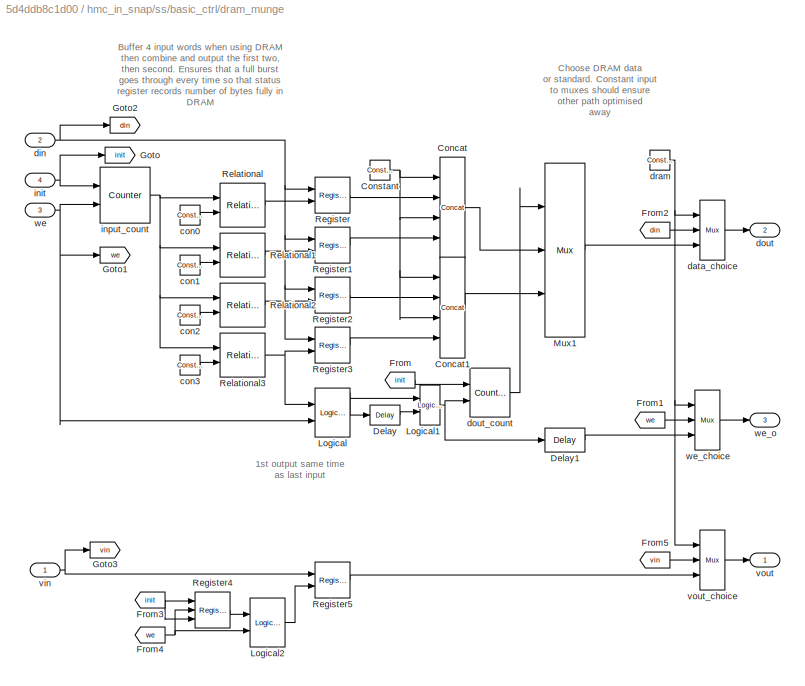
BLOCK [SubSystem] hmc_in_snap/ss/basic_ctrl/dram_munge
  Ports = [4, 3]
  RequestExecContextInheritance = off
BLOCK [Reference] hmc_in_snap/ss/basic_ctrl/dram_munge/Concat  REF=xbsIndex_r4/Concat
  Ports = [4, 1]
  SourceBlock = xbsIndex_r4/Concat
  SourceType = Xilinx Bus Concatenator Block
BLOCK [Reference] hmc_in_snap/ss/basic_ctrl/dram_munge/Concat1  REF=xbsIndex_r4/Concat
  Ports = [4, 1]
  SourceBlock = xbsIndex_r4/Concat
  SourceType = Xilinx Bus Concatenator Block
BLOCK [Reference] hmc_in_snap/ss/basic_ctrl/dram_munge/Constant  REF=xbsIndex_r4/Constant
  Ports = [0, 1]
  SourceBlock = xbsIndex_r4/Constant
  SourceType = Xilinx Constant Block Block
BLOCK [Reference] hmc_in_snap/ss/basic_ctrl/dram_munge/Delay  REF=xbsIndex_r4/Delay
  Ports = [1, 1]
  SourceBlock = xbsIndex_r4/Delay
  SourceType = Xilinx Delay Block
BLOCK [Reference] hmc_in_snap/ss/basic_ctrl/dram_munge/Delay1  REF=xbsIndex_r4/Delay
  Ports = [1, 1]
  SourceBlock = xbsIndex_r4/Delay
  SourceType = Xilinx Delay Block
BLOCK [From] hmc_in_snap/ss/basic_ctrl/dram_munge/From
  CloseFcn = tagdialog Close
  GotoTag = init
BLOCK [From] hmc_in_snap/ss/basic_ctrl/dram_munge/From1
  CloseFcn = tagdialog Close
  GotoTag = we
BLOCK [From] hmc_in_snap/ss/basic_ctrl/dram_munge/From2
  CloseFcn = tagdialog Close
  GotoTag = din
BLOCK [From] hmc_in_snap/ss/basic_ctrl/dram_munge/From3
  CloseFcn = tagdialog Close
  GotoTag = init
BLOCK [From] hmc_in_snap/ss/basic_ctrl/dram_munge/From4
  CloseFcn = tagdialog Close
  GotoTag = we
BLOCK [From] hmc_in_snap/ss/basic_ctrl/dram_munge/From5
  CloseFcn = tagdialog Close
  GotoTag = vin
BLOCK [Goto] hmc_in_snap/ss/basic_ctrl/dram_munge/Goto
  GotoTag = init
BLOCK [Goto] hmc_in_snap/ss/basic_ctrl/dram_munge/Goto1
  GotoTag = we
BLOCK [Goto] hmc_in_snap/ss/basic_ctrl/dram_munge/Goto2
  GotoTag = din
BLOCK [Goto] hmc_in_snap/ss/basic_ctrl/dram_munge/Goto3
  GotoTag = vin
BLOCK [Reference] hmc_in_snap/ss/basic_ctrl/dram_munge/Logical  REF=xbsIndex_r4/Logical
  Ports = [2, 1]
  SourceBlock = xbsIndex_r4/Logical
  SourceType = Xilinx Logical Block Block
BLOCK [Reference] hmc_in_snap/ss/basic_ctrl/dram_munge/Logical1  REF=xbsIndex_r4/Logical
  Ports = [2, 1]
  SourceBlock = xbsIndex_r4/Logical
  SourceType = Xilinx Logical Block Block
BLOCK [Reference] hmc_in_snap/ss/basic_ctrl/dram_munge/Logical2  REF=xbsIndex_r4/Logical
  Ports = [2, 1]
  SourceBlock = xbsIndex_r4/Logical
  SourceType = Xilinx Logical Block Block
BLOCK [Reference] hmc_in_snap/ss/basic_ctrl/dram_munge/Mux1  REF=xbsIndex_r4/Mux
  Ports = [3, 1]
  SourceBlock = xbsIndex_r4/Mux
  SourceType = Xilinx Bus Multiplexer Block
BLOCK [Reference] hmc_in_snap/ss/basic_ctrl/dram_munge/Register  REF=xbsIndex_r4/Register
  Ports = [2, 1]
  SourceBlock = xbsIndex_r4/Register
  SourceType = Xilinx Register Block
BLOCK [Reference] hmc_in_snap/ss/basic_ctrl/dram_munge/Register1  REF=xbsIndex_r4/Register
  Ports = [2, 1]
  SourceBlock = xbsIndex_r4/Register
  SourceType = Xilinx Register Block
BLOCK [Reference] hmc_in_snap/ss/basic_ctrl/dram_munge/Register2  REF=xbsIndex_r4/Register
  Ports = [2, 1]
  SourceBlock = xbsIndex_r4/Register
  SourceType = Xilinx Register Block
BLOCK [Reference] hmc_in_snap/ss/basic_ctrl/dram_munge/Register3  REF=xbsIndex_r4/Register
  Ports = [2, 1]
  SourceBlock = xbsIndex_r4/Register
  SourceType = Xilinx Register Block
BLOCK [Reference] hmc_in_snap/ss/basic_ctrl/dram_munge/Register4  REF=xbsIndex_r4/Register
  Ports = [3, 1]
  SourceBlock = xbsIndex_r4/Register
  SourceType = Xilinx Register Block
BLOCK [Reference] hmc_in_snap/ss/basic_ctrl/dram_munge/Register5  REF=xbsIndex_r4/Register
  Ports = [2, 1]
  SourceBlock = xbsIndex_r4/Register
  SourceType = Xilinx Register Block
BLOCK [Reference] hmc_in_snap/ss/basic_ctrl/dram_munge/Relational  REF=xbsIndex_r4/Relational
  Ports = [2, 1]
  SourceBlock = xbsIndex_r4/Relational
  SourceType = Xilinx Arithmetic Relational Operator Block
BLOCK [Reference] hmc_in_snap/ss/basic_ctrl/dram_munge/Relational1  REF=xbsIndex_r4/Relational
  Ports = [2, 1]
  SourceBlock = xbsIndex_r4/Relational
  SourceType = Xilinx Arithmetic Relational Operator Block
BLOCK [Reference] hmc_in_snap/ss/basic_ctrl/dram_munge/Relational2  REF=xbsIndex_r4/Relational
  Ports = [2, 1]
  SourceBlock = xbsIndex_r4/Relational
  SourceType = Xilinx Arithmetic Relational Operator Block
BLOCK [Reference] hmc_in_snap/ss/basic_ctrl/dram_munge/Relational3  REF=xbsIndex_r4/Relational
  Ports = [2, 1]
  SourceBlock = xbsIndex_r4/Relational
  SourceType = Xilinx Arithmetic Relational Operator Block
BLOCK [Reference] hmc_in_snap/ss/basic_ctrl/dram_munge/con0  REF=xbsIndex_r4/Constant
  Ports = [0, 1]
  SourceBlock = xbsIndex_r4/Constant
  SourceType = Xilinx Constant Block Block
BLOCK [Reference] hmc_in_snap/ss/basic_ctrl/dram_munge/con1  REF=xbsIndex_r4/Constant
  Ports = [0, 1]
  SourceBlock = xbsIndex_r4/Constant
  SourceType = Xilinx Constant Block Block
BLOCK [Reference] hmc_in_snap/ss/basic_ctrl/dram_munge/con2  REF=xbsIndex_r4/Constant
  Ports = [0, 1]
  SourceBlock = xbsIndex_r4/Constant
  SourceType = Xilinx Constant Block Block
BLOCK [Reference] hmc_in_snap/ss/basic_ctrl/dram_munge/con3  REF=xbsIndex_r4/Constant
  Ports = [0, 1]
  SourceBlock = xbsIndex_r4/Constant
  SourceType = Xilinx Constant Block Block
BLOCK [Reference] hmc_in_snap/ss/basic_ctrl/dram_munge/data_choice  REF=xbsIndex_r4/Mux
  Ports = [3, 1]
  SourceBlock = xbsIndex_r4/Mux
  SourceType = Xilinx Bus Multiplexer Block
BLOCK [Inport] hmc_in_snap/ss/basic_ctrl/dram_munge/din
  IconDisplay = Port number
  Port = 2
BLOCK [Outport] hmc_in_snap/ss/basic_ctrl/dram_munge/dout
  IconDisplay = Port number
  Port = 2
BLOCK [Reference] hmc_in_snap/ss/basic_ctrl/dram_munge/dout_count  REF=xbsIndex_r4/Counter
  Ports = [2, 1]
  SourceBlock = xbsIndex_r4/Counter
  SourceType = Xilinx Counter Block
BLOCK [Reference] hmc_in_snap/ss/basic_ctrl/dram_munge/dram  REF=xbsIndex_r4/Constant
  Ports = [0, 1]
  SourceBlock = xbsIndex_r4/Constant
  SourceType = Xilinx Constant Block Block
BLOCK [Inport] hmc_in_snap/ss/basic_ctrl/dram_munge/init
  IconDisplay = Port number
  Port = 4
BLOCK [Reference] hmc_in_snap/ss/basic_ctrl/dram_munge/input_count  REF=xbsIndex_r4/Counter
  Ports = [2, 1]
  SourceBlock = xbsIndex_r4/Counter
  SourceType = Xilinx Counter Block
BLOCK [Inport] hmc_in_snap/ss/basic_ctrl/dram_munge/vin
  IconDisplay = Port number
BLOCK [Outport] hmc_in_snap/ss/basic_ctrl/dram_munge/vout
  IconDisplay = Port number
BLOCK [Reference] hmc_in_snap/ss/basic_ctrl/dram_munge/vout_choice  REF=xbsIndex_r4/Mux
  Ports = [3, 1]
  SourceBlock = xbsIndex_r4/Mux
  SourceType = Xilinx Bus Multiplexer Block
BLOCK [Inport] hmc_in_snap/ss/basic_ctrl/dram_munge/we
  IconDisplay = Port number
  Port = 3
BLOCK [Reference] hmc_in_snap/ss/basic_ctrl/dram_munge/we_choice  REF=xbsIndex_r4/Mux
  Ports = [3, 1]
  SourceBlock = xbsIndex_r4/Mux
  SourceType = Xilinx Bus Multiplexer Block
BLOCK [Outport] hmc_in_snap/ss/basic_ctrl/dram_munge/we_o
  IconDisplay = Port number
  Port = 3
BLOCK [Reference] hmc_in_snap/ss/basic_ctrl/edge_detect  REF=casper_library_misc/edge_detect  (lib defined in mdl_357510c33b49, mdl_57b5f564ae26, +4 more)
  AttributesFormatString = rising edges\nactive high
  Ports = [1, 1]
  SourceBlock = casper_library_misc/edge_detect
  SourceProductName = CASPER DSP Blockset
  SourceType = edge_detect
  UserDataPersistent = on
BLOCK [Reference] hmc_in_snap/ss/basic_ctrl/enable  REF=xbsIndex_r4/Slice
  Ports = [1, 1]
  SourceBlock = xbsIndex_r4/Slice
  SourceType = Xilinx Bit Slice Extractor Block
BLOCK [Outport] hmc_in_snap/ss/basic_ctrl/go
  IconDisplay = Port number
  Port = 4
BLOCK [Outport] hmc_in_snap/ss/basic_ctrl/init
  IconDisplay = Port number
  Port = 6
BLOCK [Outport] hmc_in_snap/ss/basic_ctrl/stop
  IconDisplay = Port number
  Port = 5
BLOCK [Inport] hmc_in_snap/ss/basic_ctrl/stopi
  IconDisplay = Port number
  Port = 6
BLOCK [Inport] hmc_in_snap/ss/basic_ctrl/trig
  IconDisplay = Port number
  Port = 4
BLOCK [Reference] hmc_in_snap/ss/basic_ctrl/trig_src  REF=xbsIndex_r4/Slice
  Ports = [1, 1]
  SourceBlock = xbsIndex_r4/Slice
  SourceType = Xilinx Bit Slice Extractor Block
BLOCK [Reference] hmc_in_snap/ss/basic_ctrl/valid_src  REF=xbsIndex_r4/Slice
  Ports = [1, 1]
  SourceBlock = xbsIndex_r4/Slice
  SourceType = Xilinx Bit Slice Extractor Block
BLOCK [Inport] hmc_in_snap/ss/basic_ctrl/vin
  IconDisplay = Port number
BLOCK [Outport] hmc_in_snap/ss/basic_ctrl/vout
  IconDisplay = Port number
BLOCK [Inport] hmc_in_snap/ss/basic_ctrl/we
  IconDisplay = Port number
  Port = 3
BLOCK [Outport] hmc_in_snap/ss/basic_ctrl/we_o
  IconDisplay = Port number
  Port = 3
BLOCK [SubSystem] hmc_in_snap/ss/bram
  AncestorBlock = xps_library/Memory/shared_bram
  Ports = [3, 1]
  RequestExecContextInheritance = off
  Tag = xps:bram
BLOCK [Terminator] hmc_in_snap/ss/bram/Terminator
BLOCK [Terminator] hmc_in_snap/ss/bram/Terminator1
BLOCK [Terminator] hmc_in_snap/ss/bram/Terminator2
BLOCK [Inport] hmc_in_snap/ss/bram/addr
  IconDisplay = Port number
BLOCK [SubSystem] hmc_in_snap/ss/bram/calc_add
  Ports = [1, 1]
  RequestExecContextInheritance = off
BLOCK [Reference] hmc_in_snap/ss/bram/calc_add/add_sub  REF=xbsIndex_r4/AddSub
  Ports = [2, 1]
  SourceBlock = xbsIndex_r4/AddSub
  SourceType = Xilinx Adder/Subtracter Block
BLOCK [Reference] hmc_in_snap/ss/bram/calc_add/concat  REF=xbsIndex_r4/Concat
  Ports = [2, 1]
  SourceBlock = xbsIndex_r4/Concat
  SourceType = Xilinx Bus Concatenator Block
BLOCK [Reference] hmc_in_snap/ss/bram/calc_add/const  REF=xbsIndex_r4/Constant
  Ports = [0, 1]
  SourceBlock = xbsIndex_r4/Constant
  SourceType = Xilinx Constant Block Block
BLOCK [Reference] hmc_in_snap/ss/bram/calc_add/convert_addr  REF=xbsIndex_r4/Convert
  Ports = [1, 1]
  SourceBlock = xbsIndex_r4/Convert
  SourceType = Xilinx Type Converter Block
BLOCK [Inport] hmc_in_snap/ss/bram/calc_add/in
  IconDisplay = Port number
BLOCK [Reference] hmc_in_snap/ss/bram/calc_add/lsw  REF=xbsIndex_r4/Slice
  Ports = [1, 1]
  SourceBlock = xbsIndex_r4/Slice
  SourceType = Xilinx Bit Slice Extractor Block
BLOCK [Reference] hmc_in_snap/ss/bram/calc_add/manipulate  REF=xbsIndex_r4/Constant
  Ports = [0, 1]
  SourceBlock = xbsIndex_r4/Constant
  SourceType = Xilinx Constant Block Block
BLOCK [Reference] hmc_in_snap/ss/bram/calc_add/msw  REF=xbsIndex_r4/Slice
  Ports = [1, 1]
  SourceBlock = xbsIndex_r4/Slice
  SourceType = Xilinx Bit Slice Extractor Block
BLOCK [Reference] hmc_in_snap/ss/bram/calc_add/mux  REF=xbsIndex_r4/Mux
  Ports = [3, 1]
  SourceBlock = xbsIndex_r4/Mux
  SourceType = Xilinx Bus Multiplexer Block
BLOCK [Outport] hmc_in_snap/ss/bram/calc_add/out
  IconDisplay = Port number
BLOCK [Reference] hmc_in_snap/ss/bram/convert_addr  REF=xbsIndex_r4/Convert
  Ports = [1, 1]
  SourceBlock = xbsIndex_r4/Convert
  SourceType = Xilinx Type Converter Block
BLOCK [Reference] hmc_in_snap/ss/bram/convert_din1  REF=xbsIndex_r4/Convert
  Ports = [1, 1]
  SourceBlock = xbsIndex_r4/Convert
  SourceType = Xilinx Type Converter Block
BLOCK [Reference] hmc_in_snap/ss/bram/convert_we  REF=xbsIndex_r4/Convert
  Ports = [1, 1]
  SourceBlock = xbsIndex_r4/Convert
  SourceType = Xilinx Type Converter Block
BLOCK [Inport] hmc_in_snap/ss/bram/data_in
  IconDisplay = Port number
  Port = 2
BLOCK [Outport] hmc_in_snap/ss/bram/data_out
  IconDisplay = Port number
BLOCK [SubSystem] hmc_in_snap/ss/bram/munge_in
  AncestorBlock = casper_library_flow_control/munge
  AttributesFormatString = split:[32 32]\njoin:[1 0]\nUnsigned [64,0]
  Ports = [1, 1]
  RequestExecContextInheritance = off
  UserDataPersistent = on
BLOCK [Inport] hmc_in_snap/ss/bram/munge_in/din
  IconDisplay = Port number
BLOCK [Outport] hmc_in_snap/ss/bram/munge_in/dout
  IconDisplay = Port number
BLOCK [SubSystem] hmc_in_snap/ss/bram/munge_in/join
  AncestorBlock = casper_library_flow_control/bus_create
  Ports = [2, 1]
  RequestExecContextInheritance = off
  UserDataPersistent = on
BLOCK [Outport] hmc_in_snap/ss/bram/munge_in/join/bus_out
  IconDisplay = Port number
BLOCK [Reference] hmc_in_snap/ss/bram/munge_in/join/concatenate  REF=xbsIndex_r4/Concat
  Ports = [2, 1]
  SourceBlock = xbsIndex_r4/Concat
  SourceType = Xilinx Bus Concatenator Block
BLOCK [Inport] hmc_in_snap/ss/bram/munge_in/join/in1
  IconDisplay = Port number
BLOCK [Inport] hmc_in_snap/ss/bram/munge_in/join/in2
  IconDisplay = Port number
  Port = 2
BLOCK [Reference] hmc_in_snap/ss/bram/munge_in/join/reinterpret1  REF=xbsIndex_r4/Reinterpret
  Ports = [1, 1]
  SourceBlock = xbsIndex_r4/Reinterpret
  SourceType = Xilinx Type Reinterpreter Block
BLOCK [Reference] hmc_in_snap/ss/bram/munge_in/join/reinterpret2  REF=xbsIndex_r4/Reinterpret
  Ports = [1, 1]
  SourceBlock = xbsIndex_r4/Reinterpret
  SourceType = Xilinx Type Reinterpreter Block
BLOCK [Reference] hmc_in_snap/ss/bram/munge_in/reinterpret  REF=xbsIndex_r4/Reinterpret
  Ports = [1, 1]
  SourceBlock = xbsIndex_r4/Reinterpret
  SourceType = Xilinx Type Reinterpreter Block
BLOCK [Reference] hmc_in_snap/ss/bram/munge_in/reinterpret_out  REF=xbsIndex_r4/Reinterpret
  Ports = [1, 1]
  SourceBlock = xbsIndex_r4/Reinterpret
  SourceType = Xilinx Type Reinterpreter Block
BLOCK [SubSystem] hmc_in_snap/ss/bram/munge_in/split
  AncestorBlock = casper_library_flow_control/bus_expand
  AttributesFormatString = 2 outputs
  Ports = [1, 2]
  RequestExecContextInheritance = off
  UserDataPersistent = on
BLOCK [Inport] hmc_in_snap/ss/bram/munge_in/split/bus_in
  IconDisplay = Port number
BLOCK [Outport] hmc_in_snap/ss/bram/munge_in/split/lsb_out1
  IconDisplay = Port number
  Port = 2
BLOCK [Outport] hmc_in_snap/ss/bram/munge_in/split/msb_out2
  IconDisplay = Port number
BLOCK [Reference] hmc_in_snap/ss/bram/munge_in/split/reinterpret1  REF=xbsIndex_r4/Reinterpret
  Ports = [1, 1]
  SourceBlock = xbsIndex_r4/Reinterpret
  SourceType = Xilinx Type Reinterpreter Block
BLOCK [Reference] hmc_in_snap/ss/bram/munge_in/split/reinterpret2  REF=xbsIndex_r4/Reinterpret
  Ports = [1, 1]
  SourceBlock = xbsIndex_r4/Reinterpret
  SourceType = Xilinx Type Reinterpreter Block
BLOCK [Reference] hmc_in_snap/ss/bram/munge_in/split/slice1  REF=xbsIndex_r4/Slice
  Ports = [1, 1]
  SourceBlock = xbsIndex_r4/Slice
  SourceType = Xilinx Bit Slice Extractor Block
BLOCK [Reference] hmc_in_snap/ss/bram/munge_in/split/slice2  REF=xbsIndex_r4/Slice
  Ports = [1, 1]
  SourceBlock = xbsIndex_r4/Slice
  SourceType = Xilinx Bit Slice Extractor Block
BLOCK [SubSystem] hmc_in_snap/ss/bram/munge_out
  AncestorBlock = casper_library_flow_control/munge
  AttributesFormatString = split:[32 32]\njoin:[1 0]\nUnsigned [64,0]
  Ports = [1, 1]
  RequestExecContextInheritance = off
  UserDataPersistent = on
BLOCK [Inport] hmc_in_snap/ss/bram/munge_out/din
  IconDisplay = Port number
BLOCK [Outport] hmc_in_snap/ss/bram/munge_out/dout
  IconDisplay = Port number
BLOCK [SubSystem] hmc_in_snap/ss/bram/munge_out/join
  AncestorBlock = casper_library_flow_control/bus_create
  Ports = [2, 1]
  RequestExecContextInheritance = off
  UserDataPersistent = on
BLOCK [Outport] hmc_in_snap/ss/bram/munge_out/join/bus_out
  IconDisplay = Port number
BLOCK [Reference] hmc_in_snap/ss/bram/munge_out/join/concatenate  REF=xbsIndex_r4/Concat
  Ports = [2, 1]
  SourceBlock = xbsIndex_r4/Concat
  SourceType = Xilinx Bus Concatenator Block
BLOCK [Inport] hmc_in_snap/ss/bram/munge_out/join/in1
  IconDisplay = Port number
BLOCK [Inport] hmc_in_snap/ss/bram/munge_out/join/in2
  IconDisplay = Port number
  Port = 2
BLOCK [Reference] hmc_in_snap/ss/bram/munge_out/join/reinterpret1  REF=xbsIndex_r4/Reinterpret
  Ports = [1, 1]
  SourceBlock = xbsIndex_r4/Reinterpret
  SourceType = Xilinx Type Reinterpreter Block
BLOCK [Reference] hmc_in_snap/ss/bram/munge_out/join/reinterpret2  REF=xbsIndex_r4/Reinterpret
  Ports = [1, 1]
  SourceBlock = xbsIndex_r4/Reinterpret
  SourceType = Xilinx Type Reinterpreter Block
BLOCK [Reference] hmc_in_snap/ss/bram/munge_out/reinterpret  REF=xbsIndex_r4/Reinterpret
  Ports = [1, 1]
  SourceBlock = xbsIndex_r4/Reinterpret
  SourceType = Xilinx Type Reinterpreter Block
BLOCK [Reference] hmc_in_snap/ss/bram/munge_out/reinterpret_out  REF=xbsIndex_r4/Reinterpret
  Ports = [1, 1]
  SourceBlock = xbsIndex_r4/Reinterpret
  SourceType = Xilinx Type Reinterpreter Block
BLOCK [SubSystem] hmc_in_snap/ss/bram/munge_out/split
  AncestorBlock = casper_library_flow_control/bus_expand
  AttributesFormatString = 2 outputs
  Ports = [1, 2]
  RequestExecContextInheritance = off
  UserDataPersistent = on
BLOCK [Inport] hmc_in_snap/ss/bram/munge_out/split/bus_in
  IconDisplay = Port number
BLOCK [Outport] hmc_in_snap/ss/bram/munge_out/split/lsb_out1
  IconDisplay = Port number
  Port = 2
BLOCK [Outport] hmc_in_snap/ss/bram/munge_out/split/msb_out2
  IconDisplay = Port number
BLOCK [Reference] hmc_in_snap/ss/bram/munge_out/split/reinterpret1  REF=xbsIndex_r4/Reinterpret
  Ports = [1, 1]
  SourceBlock = xbsIndex_r4/Reinterpret
  SourceType = Xilinx Type Reinterpreter Block
BLOCK [Reference] hmc_in_snap/ss/bram/munge_out/split/reinterpret2  REF=xbsIndex_r4/Reinterpret
  Ports = [1, 1]
  SourceBlock = xbsIndex_r4/Reinterpret
  SourceType = Xilinx Type Reinterpreter Block
BLOCK [Reference] hmc_in_snap/ss/bram/munge_out/split/slice1  REF=xbsIndex_r4/Slice
  Ports = [1, 1]
  SourceBlock = xbsIndex_r4/Slice
  SourceType = Xilinx Bit Slice Extractor Block
BLOCK [Reference] hmc_in_snap/ss/bram/munge_out/split/slice2  REF=xbsIndex_r4/Slice
  Ports = [1, 1]
  SourceBlock = xbsIndex_r4/Slice
  SourceType = Xilinx Bit Slice Extractor Block
BLOCK [SubSystem] hmc_in_snap/ss/bram/sim_mem
  Ports = [3, 1]
  RequestExecContextInheritance = off
BLOCK [DataTypeConversion] hmc_in_snap/ss/bram/sim_mem/Data Type Conversion
  OutDataTypeStr = single
  RndMeth = Floor
  SaturateOnIntegerOverflow = off
BLOCK [DataTypeConversion] hmc_in_snap/ss/bram/sim_mem/Data Type Conversion1
  OutDataTypeStr = double
  RndMeth = Floor
  SaturateOnIntegerOverflow = off
BLOCK [DataTypeConversion] hmc_in_snap/ss/bram/sim_mem/Data Type Conversion2
  OutDataTypeStr = boolean
  RndMeth = Floor
  SaturateOnIntegerOverflow = off
BLOCK [Inport] hmc_in_snap/ss/bram/sim_mem/addr
  IconDisplay = Port number
BLOCK [Inport] hmc_in_snap/ss/bram/sim_mem/data
  IconDisplay = Port number
  Port = 2
BLOCK [Outport] hmc_in_snap/ss/bram/sim_mem/data_out
  IconDisplay = Port number
BLOCK [M-S-Function] hmc_in_snap/ss/bram/sim_mem/sfunc
  FunctionName = shared_bram_sim_sfunc
  Parameters = depth_bits, latency, init_vals
  Ports = [3, 1]
BLOCK [Reference] hmc_in_snap/ss/bram/sim_mem/sim_addr  REF=xbsIndex_r4/Gateway Out
  Ports = [1, 1]
  SourceBlock = xbsIndex_r4/Gateway Out
  SourceType = Xilinx Gateway Out Block
BLOCK [Reference] hmc_in_snap/ss/bram/sim_mem/sim_data  REF=xbsIndex_r4/Gateway Out
  Ports = [1, 1]
  SourceBlock = xbsIndex_r4/Gateway Out
  SourceType = Xilinx Gateway Out Block
BLOCK [Reference] hmc_in_snap/ss/bram/sim_mem/sim_we  REF=xbsIndex_r4/Gateway Out
  Ports = [1, 1]
  SourceBlock = xbsIndex_r4/Gateway Out
  SourceType = Xilinx Gateway Out Block
BLOCK [Inport] hmc_in_snap/ss/bram/sim_mem/we
  IconDisplay = Port number
  Port = 3
BLOCK [Reference] hmc_in_snap/ss/bram/tut_hmc_hmc_in_snap_ss_bram_addr  REF=xbsIndex_r4/Gateway Out
  Ports = [1, 1]
  SourceBlock = xbsIndex_r4/Gateway Out
  SourceType = Xilinx Gateway Out Block
BLOCK [Reference] hmc_in_snap/ss/bram/tut_hmc_hmc_in_snap_ss_bram_data_in  REF=xbsIndex_r4/Gateway Out
  Ports = [1, 1]
  SourceBlock = xbsIndex_r4/Gateway Out
  SourceType = Xilinx Gateway Out Block
BLOCK [Reference] hmc_in_snap/ss/bram/tut_hmc_hmc_in_snap_ss_bram_data_out  REF=xbsIndex_r4/Gateway In
  Ports = [1, 1]
  SourceBlock = xbsIndex_r4/Gateway In
  SourceType = Xilinx Gateway In Block
BLOCK [Reference] hmc_in_snap/ss/bram/tut_hmc_hmc_in_snap_ss_bram_we  REF=xbsIndex_r4/Gateway Out
  Ports = [1, 1]
  SourceBlock = xbsIndex_r4/Gateway Out
  SourceType = Xilinx Gateway Out Block
BLOCK [Inport] hmc_in_snap/ss/bram/we
  IconDisplay = Port number
  Port = 3
BLOCK [Reference] hmc_in_snap/ss/cast  REF=xbsIndex_r4/Convert
  Ports = [1, 1]
  SourceBlock = xbsIndex_r4/Convert
  SourceType = Xilinx Type Converter Block
BLOCK [Reference] hmc_in_snap/ss/circ  REF=xbsIndex_r4/Constant
  Ports = [0, 1]
  SourceBlock = xbsIndex_r4/Constant
  SourceType = Xilinx Constant Block Block
BLOCK [Reference] hmc_in_snap/ss/circ_or  REF=xbsIndex_r4/Logical
  Ports = [2, 1]
  SourceBlock = xbsIndex_r4/Logical
  SourceType = Xilinx Logical Block Block
BLOCK [SubSystem] hmc_in_snap/ss/ctrl
  AncestorBlock = xps_library/Memory/software_register
  AttributesFormatString = 1input:uf32.0 = 32 bits
  Ports = [0, 1]
  RequestExecContextInheritance = off
  Tag = xps:sw_reg
BLOCK [DataTypeConversion] hmc_in_snap/ss/ctrl/convert1_1
  LockScale = on
  OutDataTypeStr = fixdt('ufix32_En0')
  RndMeth = Floor
  SaturateOnIntegerOverflow = off
BLOCK [DataTypeConversion] hmc_in_snap/ss/ctrl/convert2_1
  ConvertRealWorld = Stored Integer (SI)
  LockScale = on
  OutDataTypeStr = fixdt('ufix32_En0')
  RndMeth = Floor
  SaturateOnIntegerOverflow = off
BLOCK [Gain] hmc_in_snap/ss/ctrl/gain_1
  OutDataTypeStr = Inherit: Inherit via internal rule
  ParamDataTypeStr = Inherit: Inherit via internal rule
  SaturateOnIntegerOverflow = off
BLOCK [Outport] hmc_in_snap/ss/ctrl/in_reg
  IconDisplay = Port number
BLOCK [Reference] hmc_in_snap/ss/ctrl/io_delay  REF=xbsIndex_r4/Delay
  Ports = [1, 1]
  SourceBlock = xbsIndex_r4/Delay
  SourceType = Xilinx Delay Block
BLOCK [Reference] hmc_in_snap/ss/ctrl/reint1  REF=xbsIndex_r4/Reinterpret
  Ports = [1, 1]
  SourceBlock = xbsIndex_r4/Reinterpret
  SourceType = Xilinx Type Reinterpreter Block
BLOCK [Constant] hmc_in_snap/ss/ctrl/sim_1
  Value = 0
BLOCK [Reference] hmc_in_snap/ss/ctrl/slice_reg  REF=xbsIndex_r4/Slice
  Ports = [1, 1]
  SourceBlock = xbsIndex_r4/Slice
  SourceType = Xilinx Bit Slice Extractor Block
BLOCK [Reference] hmc_in_snap/ss/ctrl/tut_hmc_hmc_in_snap_ss_ctrl_user_data_out  REF=xbsIndex_r4/Gateway In
  Ports = [1, 1]
  SourceBlock = xbsIndex_r4/Gateway In
  SourceType = Xilinx Gateway In Block
BLOCK [SubSystem] hmc_in_snap/ss/ctrl_combine
  AncestorBlock = casper_library_flow_control/bus_create
  Ports = [4, 1]
  RequestExecContextInheritance = off
  UserDataPersistent = on
BLOCK [Outport] hmc_in_snap/ss/ctrl_combine/bus_out
  IconDisplay = Port number
BLOCK [Reference] hmc_in_snap/ss/ctrl_combine/concatenate  REF=xbsIndex_r4/Concat
  Ports = [4, 1]
  SourceBlock = xbsIndex_r4/Concat
  SourceType = Xilinx Bus Concatenator Block
BLOCK [Inport] hmc_in_snap/ss/ctrl_combine/in1
  IconDisplay = Port number
BLOCK [Inport] hmc_in_snap/ss/ctrl_combine/in2
  IconDisplay = Port number
  Port = 2
BLOCK [Inport] hmc_in_snap/ss/ctrl_combine/in3
  IconDisplay = Port number
  Port = 3
BLOCK [Inport] hmc_in_snap/ss/ctrl_combine/in4
  IconDisplay = Port number
  Port = 4
BLOCK [Reference] hmc_in_snap/ss/ctrl_combine/reinterpret1  REF=xbsIndex_r4/Reinterpret
  Ports = [1, 1]
  SourceBlock = xbsIndex_r4/Reinterpret
  SourceType = Xilinx Type Reinterpreter Block
BLOCK [Reference] hmc_in_snap/ss/ctrl_combine/reinterpret2  REF=xbsIndex_r4/Reinterpret
  Ports = [1, 1]
  SourceBlock = xbsIndex_r4/Reinterpret
  SourceType = Xilinx Type Reinterpreter Block
BLOCK [Reference] hmc_in_snap/ss/ctrl_combine/reinterpret3  REF=xbsIndex_r4/Reinterpret
  Ports = [1, 1]
  SourceBlock = xbsIndex_r4/Reinterpret
  SourceType = Xilinx Type Reinterpreter Block
BLOCK [Reference] hmc_in_snap/ss/ctrl_combine/reinterpret4  REF=xbsIndex_r4/Reinterpret
  Ports = [1, 1]
  SourceBlock = xbsIndex_r4/Reinterpret
  SourceType = Xilinx Type Reinterpreter Block
BLOCK [SubSystem] hmc_in_snap/ss/ctrl_split
  AncestorBlock = casper_library_flow_control/bus_expand
  AttributesFormatString = 4 outputs: uf28.0,b,uf2.0,b,
  Ports = [1, 4]
  RequestExecContextInheritance = off
  UserDataPersistent = on
BLOCK [Inport] hmc_in_snap/ss/ctrl_split/bus_in
  IconDisplay = Port number
BLOCK [Outport] hmc_in_snap/ss/ctrl_split/lsb_out1
  IconDisplay = Port number
  Port = 4
BLOCK [Outport] hmc_in_snap/ss/ctrl_split/msb_out4
  IconDisplay = Port number
BLOCK [Outport] hmc_in_snap/ss/ctrl_split/out2
  IconDisplay = Port number
  Port = 3
BLOCK [Outport] hmc_in_snap/ss/ctrl_split/out3
  IconDisplay = Port number
  Port = 2
BLOCK [Reference] hmc_in_snap/ss/ctrl_split/reinterpret2  REF=xbsIndex_r4/Reinterpret
  Ports = [1, 1]
  SourceBlock = xbsIndex_r4/Reinterpret
  SourceType = Xilinx Type Reinterpreter Block
BLOCK [Reference] hmc_in_snap/ss/ctrl_split/reinterpret4  REF=xbsIndex_r4/Reinterpret
  Ports = [1, 1]
  SourceBlock = xbsIndex_r4/Reinterpret
  SourceType = Xilinx Type Reinterpreter Block
BLOCK [Reference] hmc_in_snap/ss/ctrl_split/slice1  REF=xbsIndex_r4/Slice
  Ports = [1, 1]
  SourceBlock = xbsIndex_r4/Slice
  SourceType = Xilinx Bit Slice Extractor Block
BLOCK [Reference] hmc_in_snap/ss/ctrl_split/slice2  REF=xbsIndex_r4/Slice
  Ports = [1, 1]
  SourceBlock = xbsIndex_r4/Slice
  SourceType = Xilinx Bit Slice Extractor Block
BLOCK [Reference] hmc_in_snap/ss/ctrl_split/slice3  REF=xbsIndex_r4/Slice
  Ports = [1, 1]
  SourceBlock = xbsIndex_r4/Slice
  SourceType = Xilinx Bit Slice Extractor Block
BLOCK [Reference] hmc_in_snap/ss/ctrl_split/slice4  REF=xbsIndex_r4/Slice
  Ports = [1, 1]
  SourceBlock = xbsIndex_r4/Slice
  SourceType = Xilinx Bit Slice Extractor Block
BLOCK [Reference] hmc_in_snap/ss/dat_del  REF=xbsIndex_r4/Delay
  Ports = [1, 1]
  SourceBlock = xbsIndex_r4/Delay
  SourceType = Xilinx Delay Block
BLOCK [Inport] hmc_in_snap/ss/din
  IconDisplay = Port number
BLOCK [Terminator] hmc_in_snap/ss/g_tr_en_cnt
BLOCK [Terminator] hmc_in_snap/ss/gbram
BLOCK [Goto] hmc_in_snap/ss/goto_ss_we1
  GotoTag = goto_44405691_we1
  TagVisibility = global
BLOCK [Goto] hmc_in_snap/ss/goto_ss_we2
  GotoTag = goto_44405691_we2
  TagVisibility = global
BLOCK [Reference] hmc_in_snap/ss/goto_ss_we2_const  REF=xbsIndex_r4/Constant
  Ports = [0, 1]
  SourceBlock = xbsIndex_r4/Constant
  SourceType = Xilinx Constant Block Block
BLOCK [Goto] hmc_in_snap/ss/goto_ss_we3
  GotoTag = goto_44405691_we3
  TagVisibility = global
BLOCK [Reference] hmc_in_snap/ss/goto_ss_we3_const  REF=xbsIndex_r4/Constant
  Ports = [0, 1]
  SourceBlock = xbsIndex_r4/Constant
  SourceType = Xilinx Constant Block Block
BLOCK [Goto] hmc_in_snap/ss/goto_ss_we4
  GotoTag = goto_44405691_we4
  TagVisibility = global
BLOCK [Terminator] hmc_in_snap/ss/gval
BLOCK [Reference] hmc_in_snap/ss/never  REF=xbsIndex_r4/Constant
  Ports = [0, 1]
  SourceBlock = xbsIndex_r4/Constant
  SourceType = Xilinx Constant Block Block
BLOCK [Reference] hmc_in_snap/ss/ri  REF=xbsIndex_r4/Reinterpret
  Ports = [1, 1]
  SourceBlock = xbsIndex_r4/Reinterpret
  SourceType = Xilinx Type Reinterpreter Block
BLOCK [SubSystem] hmc_in_snap/ss/status
  AncestorBlock = xps_library/Memory/software_register
  AttributesFormatString = 1output:uf32.0 = 32 bits
  Ports = [1]
  RequestExecContextInheritance = off
  Tag = xps:sw_reg
BLOCK [Reference] hmc_in_snap/ss/status/assert_reg  REF=xbsIndex_r4/Assert
  Ports = [1, 1]
  SourceBlock = xbsIndex_r4/Assert
  SourceType = Xilinx Assert Block
BLOCK [Reference] hmc_in_snap/ss/status/cast_gw  REF=xbsIndex_r4/Convert
  Ports = [1, 1]
  SourceBlock = xbsIndex_r4/Convert
  SourceType = Xilinx Type Converter Block
BLOCK [Reference] hmc_in_snap/ss/status/io_delay  REF=xbsIndex_r4/Delay
  Ports = [1, 1]
  SourceBlock = xbsIndex_r4/Delay
  SourceType = Xilinx Delay Block
BLOCK [Inport] hmc_in_snap/ss/status/out_reg
  IconDisplay = Port number
BLOCK [Reference] hmc_in_snap/ss/status/reint1  REF=xbsIndex_r4/Reinterpret
  Ports = [1, 1]
  SourceBlock = xbsIndex_r4/Reinterpret
  SourceType = Xilinx Type Reinterpreter Block
BLOCK [Terminator] hmc_in_snap/ss/status/sim_out
BLOCK [Reference] hmc_in_snap/ss/status/tut_hmc_hmc_in_snap_ss_status_user_data_in  REF=xbsIndex_r4/Gateway Out
  Ports = [1, 1]
  SourceBlock = xbsIndex_r4/Gateway Out
  SourceType = Xilinx Gateway Out Block
BLOCK [Inport] hmc_in_snap/ss/trig
  IconDisplay = Port number
  Port = 3
BLOCK [Reference] hmc_in_snap/ss/vin_const  REF=xbsIndex_r4/Constant
  Ports = [0, 1]
  SourceBlock = xbsIndex_r4/Constant
  SourceType = Xilinx Constant Block Block
BLOCK [Inport] hmc_in_snap/ss/we
  IconDisplay = Port number
  Port = 2
BLOCK [Reference] hmc_in_snap/ss/we_del  REF=xbsIndex_r4/Delay
  Ports = [1, 1]
  SourceBlock = xbsIndex_r4/Delay
  SourceType = Xilinx Delay Block
BLOCK [Inport] hmc_in_snap/trig
  IconDisplay = Port number
  Port = 10
BLOCK [Inport] hmc_in_snap/we
  IconDisplay = Port number
  Port = 9
BLOCK [SubSystem] hmc_out_cnt
  AncestorBlock = xps_library/Memory/software_register
  AttributesFormatString = 1output:uf32.0 = 32 bits
  Ports = [1, 1]
  RequestExecContextInheritance = off
  Tag = xps:sw_reg
BLOCK [Reference] hmc_out_cnt/assert_reg  REF=xbsIndex_r4/Assert
  Ports = [1, 1]
  SourceBlock = xbsIndex_r4/Assert
  SourceType = Xilinx Assert Block
BLOCK [Reference] hmc_out_cnt/cast_gw  REF=xbsIndex_r4/Convert
  Ports = [1, 1]
  SourceBlock = xbsIndex_r4/Convert
  SourceType = Xilinx Type Converter Block
BLOCK [Reference] hmc_out_cnt/io_delay  REF=xbsIndex_r4/Delay
  Ports = [1, 1]
  SourceBlock = xbsIndex_r4/Delay
  SourceType = Xilinx Delay Block
BLOCK [Inport] hmc_out_cnt/out_reg
  IconDisplay = Port number
BLOCK [Reference] hmc_out_cnt/reint1  REF=xbsIndex_r4/Reinterpret
  Ports = [1, 1]
  SourceBlock = xbsIndex_r4/Reinterpret
  SourceType = Xilinx Type Reinterpreter Block
BLOCK [Outport] hmc_out_cnt/sim_out
  IconDisplay = Port number
BLOCK [Reference] hmc_out_cnt/tut_hmc_hmc_out_cnt_user_data_in  REF=xbsIndex_r4/Gateway Out
  Ports = [1, 1]
  SourceBlock = xbsIndex_r4/Gateway Out
  SourceType = Xilinx Gateway Out Block
BLOCK [Reference] hmc_out_cntr  REF=xbsIndex_r4/Counter
  Ports = [2, 1]
  SourceBlock = xbsIndex_r4/Counter
  SourceType = Xilinx Counter Block
BLOCK [SubSystem] hmc_out_snap
  AncestorBlock = casper_library_scopes/bitfield_snapshot
  AttributesFormatString = snap(6):b,uf9.0,uf9.0,b,uf9.0,uf9.0 = 38 bits\n64 wide, 8192 deep\ndebugID: 124263108
  Ports = [8, 1]
  RequestExecContextInheritance = off
  Tag = casper:bitsnap
  UserDataPersistent = on
BLOCK [Outport] hmc_out_snap/arm_out
  IconDisplay = Port number
BLOCK [Reference] hmc_out_snap/assert_data  REF=xbsIndex_r4/Assert
  Ports = [1, 1]
  SourceBlock = xbsIndex_r4/Assert
  SourceType = Xilinx Assert Block
BLOCK [Reference] hmc_out_snap/assert_rd_addr  REF=xbsIndex_r4/Assert
  Ports = [1, 1]
  SourceBlock = xbsIndex_r4/Assert
  SourceType = Xilinx Assert Block
BLOCK [Reference] hmc_out_snap/assert_rd_en  REF=xbsIndex_r4/Assert
  Ports = [1, 1]
  SourceBlock = xbsIndex_r4/Assert
  SourceType = Xilinx Assert Block
BLOCK [Reference] hmc_out_snap/assert_tag  REF=xbsIndex_r4/Assert
  Ports = [1, 1]
  SourceBlock = xbsIndex_r4/Assert
  SourceType = Xilinx Assert Block
BLOCK [Reference] hmc_out_snap/assert_wr_addr  REF=xbsIndex_r4/Assert
  Ports = [1, 1]
  SourceBlock = xbsIndex_r4/Assert
  SourceType = Xilinx Assert Block
BLOCK [Reference] hmc_out_snap/assert_wr_en  REF=xbsIndex_r4/Assert
  Ports = [1, 1]
  SourceBlock = xbsIndex_r4/Assert
  SourceType = Xilinx Assert Block
BLOCK [SubSystem] hmc_out_snap/buscreate
  AncestorBlock = casper_library_flow_control/bus_create
  Ports = [6, 1]
  RequestExecContextInheritance = off
  UserDataPersistent = on
BLOCK [Outport] hmc_out_snap/buscreate/bus_out
  IconDisplay = Port number
BLOCK [Reference] hmc_out_snap/buscreate/concatenate  REF=xbsIndex_r4/Concat
  Ports = [6, 1]
  SourceBlock = xbsIndex_r4/Concat
  SourceType = Xilinx Bus Concatenator Block
BLOCK [Inport] hmc_out_snap/buscreate/in1
  IconDisplay = Port number
BLOCK [Inport] hmc_out_snap/buscreate/in2
  IconDisplay = Port number
  Port = 2
BLOCK [Inport] hmc_out_snap/buscreate/in3
  IconDisplay = Port number
  Port = 3
BLOCK [Inport] hmc_out_snap/buscreate/in4
  IconDisplay = Port number
  Port = 4
BLOCK [Inport] hmc_out_snap/buscreate/in5
  IconDisplay = Port number
  Port = 5
BLOCK [Inport] hmc_out_snap/buscreate/in6
  IconDisplay = Port number
  Port = 6
BLOCK [Reference] hmc_out_snap/buscreate/reinterpret1  REF=xbsIndex_r4/Reinterpret
  Ports = [1, 1]
  SourceBlock = xbsIndex_r4/Reinterpret
  SourceType = Xilinx Type Reinterpreter Block
BLOCK [Reference] hmc_out_snap/buscreate/reinterpret2  REF=xbsIndex_r4/Reinterpret
  Ports = [1, 1]
  SourceBlock = xbsIndex_r4/Reinterpret
  SourceType = Xilinx Type Reinterpreter Block
BLOCK [Reference] hmc_out_snap/buscreate/reinterpret3  REF=xbsIndex_r4/Reinterpret
  Ports = [1, 1]
  SourceBlock = xbsIndex_r4/Reinterpret
  SourceType = Xilinx Type Reinterpreter Block
BLOCK [Reference] hmc_out_snap/buscreate/reinterpret4  REF=xbsIndex_r4/Reinterpret
  Ports = [1, 1]
  SourceBlock = xbsIndex_r4/Reinterpret
  SourceType = Xilinx Type Reinterpreter Block
BLOCK [Reference] hmc_out_snap/buscreate/reinterpret5  REF=xbsIndex_r4/Reinterpret
  Ports = [1, 1]
  SourceBlock = xbsIndex_r4/Reinterpret
  SourceType = Xilinx Type Reinterpreter Block
BLOCK [Reference] hmc_out_snap/buscreate/reinterpret6  REF=xbsIndex_r4/Reinterpret
  Ports = [1, 1]
  SourceBlock = xbsIndex_r4/Reinterpret
  SourceType = Xilinx Type Reinterpreter Block
BLOCK [Inport] hmc_out_snap/in_data
  IconDisplay = Port number
  Port = 3
BLOCK [Inport] hmc_out_snap/in_rd_addr
  IconDisplay = Port number
  Port = 5
BLOCK [Inport] hmc_out_snap/in_rd_en
  IconDisplay = Port number
  Port = 4
BLOCK [Inport] hmc_out_snap/in_tag
  IconDisplay = Port number
  Port = 6
BLOCK [Inport] hmc_out_snap/in_wr_addr
  IconDisplay = Port number
  Port = 2
BLOCK [Inport] hmc_out_snap/in_wr_en
  IconDisplay = Port number
BLOCK [SubSystem] hmc_out_snap/ss
  AncestorBlock = casper_library_scopes/snapshot
  AttributesFormatString = 64 wide, 8192 deep\ndebugID: 124263108
  Ports = [3, 1]
  RequestExecContextInheritance = off
  Tag = casper:snapshot
  UserDataPersistent = on
BLOCK [Reference] hmc_out_snap/ss/add_del  REF=xbsIndex_r4/Delay
  Ports = [1, 1]
  SourceBlock = xbsIndex_r4/Delay
  SourceType = Xilinx Delay Block
BLOCK [SubSystem] hmc_out_snap/ss/add_gen
  AncestorBlock = casper_library_scopes/snapshot/add_gen
  Ports = [6, 7]
  RequestExecContextInheritance = off
BLOCK [Reference] hmc_out_snap/ss/add_gen/Concat  REF=xbsIndex_r4/Concat
  Ports = [3, 1]
  SourceBlock = xbsIndex_r4/Concat
  SourceType = Xilinx Bus Concatenator Block
BLOCK [Reference] hmc_out_snap/ss/add_gen/Convert  REF=xbsIndex_r4/Convert
  Ports = [1, 1]
  SourceBlock = xbsIndex_r4/Convert
  SourceType = Xilinx Type Converter Block
BLOCK [Reference] hmc_out_snap/ss/add_gen/Delay  REF=xbsIndex_r4/Delay
  Ports = [1, 1]
  SourceBlock = xbsIndex_r4/Delay
  SourceType = Xilinx Delay Block
BLOCK [Reference] hmc_out_snap/ss/add_gen/Delay1  REF=xbsIndex_r4/Delay
  Ports = [1, 1]
  SourceBlock = xbsIndex_r4/Delay
  SourceType = Xilinx Delay Block
BLOCK [Reference] hmc_out_snap/ss/add_gen/Delay2  REF=xbsIndex_r4/Delay
  Ports = [1, 1]
  SourceBlock = xbsIndex_r4/Delay
  SourceType = Xilinx Delay Block
BLOCK [Reference] hmc_out_snap/ss/add_gen/Delay3  REF=xbsIndex_r4/Delay
  Ports = [1, 1]
  SourceBlock = xbsIndex_r4/Delay
  SourceType = Xilinx Delay Block
BLOCK [Reference] hmc_out_snap/ss/add_gen/Delay4  REF=xbsIndex_r4/Delay
  Ports = [1, 1]
  SourceBlock = xbsIndex_r4/Delay
  SourceType = Xilinx Delay Block
BLOCK [Reference] hmc_out_snap/ss/add_gen/Delay5  REF=xbsIndex_r4/Delay
  Ports = [1, 1]
  SourceBlock = xbsIndex_r4/Delay
  SourceType = Xilinx Delay Block
BLOCK [Reference] hmc_out_snap/ss/add_gen/Delay6  REF=xbsIndex_r4/Delay
  Ports = [1, 1]
  SourceBlock = xbsIndex_r4/Delay
  SourceType = Xilinx Delay Block
BLOCK [Reference] hmc_out_snap/ss/add_gen/Delay7  REF=xbsIndex_r4/Delay
  Ports = [1, 1]
  SourceBlock = xbsIndex_r4/Delay
  SourceType = Xilinx Delay Block
BLOCK [Reference] hmc_out_snap/ss/add_gen/Inverter  REF=xbsIndex_r4/Inverter
  Ports = [1, 1]
  SourceBlock = xbsIndex_r4/Inverter
  SourceType = Xilinx Inverter Block
BLOCK [Reference] hmc_out_snap/ss/add_gen/Inverter1  REF=xbsIndex_r4/Inverter
  Ports = [1, 1]
  SourceBlock = xbsIndex_r4/Inverter
  SourceType = Xilinx Inverter Block
BLOCK [Reference] hmc_out_snap/ss/add_gen/Logical1  REF=xbsIndex_r4/Logical
  Ports = [2, 1]
  SourceBlock = xbsIndex_r4/Logical
  SourceType = Xilinx Logical Block Block
BLOCK [Reference] hmc_out_snap/ss/add_gen/Logical2  REF=xbsIndex_r4/Logical
  Ports = [2, 1]
  SourceBlock = xbsIndex_r4/Logical
  SourceType = Xilinx Logical Block Block
BLOCK [Reference] hmc_out_snap/ss/add_gen/Logical4  REF=xbsIndex_r4/Logical
  Ports = [2, 1]
  SourceBlock = xbsIndex_r4/Logical
  SourceType = Xilinx Logical Block Block
BLOCK [Reference] hmc_out_snap/ss/add_gen/Logical6  REF=xbsIndex_r4/Logical
  Ports = [3, 1]
  SourceBlock = xbsIndex_r4/Logical
  SourceType = Xilinx Logical Block Block
BLOCK [Reference] hmc_out_snap/ss/add_gen/Register3  REF=xbsIndex_r4/Register
  Ports = [3, 1]
  SourceBlock = xbsIndex_r4/Register
  SourceType = Xilinx Register Block
BLOCK [Reference] hmc_out_snap/ss/add_gen/Register4  REF=xbsIndex_r4/Register
  Ports = [2, 1]
  SourceBlock = xbsIndex_r4/Register
  SourceType = Xilinx Register Block
BLOCK [Reference] hmc_out_snap/ss/add_gen/Register5  REF=xbsIndex_r4/Register
  Ports = [3, 1]
  SourceBlock = xbsIndex_r4/Register
  SourceType = Xilinx Register Block
BLOCK [Reference] hmc_out_snap/ss/add_gen/Shift  REF=xbsIndex_r4/Shift
  Ports = [1, 1]
  SourceBlock = xbsIndex_r4/Shift
  SourceType = Xilinx Binary Shift Operator Block
BLOCK [Outport] hmc_out_snap/ss/add_gen/add
  IconDisplay = Port number
  Port = 2
BLOCK [Reference] hmc_out_snap/ss/add_gen/add_gen  REF=xbsIndex_r4/Counter
  Ports = [2, 1]
  SourceBlock = xbsIndex_r4/Counter
  SourceType = Xilinx Counter Block
BLOCK [Inport] hmc_out_snap/ss/add_gen/cont
  IconDisplay = Port number
  Port = 5
BLOCK [Inport] hmc_out_snap/ss/add_gen/din
  IconDisplay = Port number
  Port = 2
BLOCK [Outport] hmc_out_snap/ss/add_gen/done
  IconDisplay = Port number
  Port = 7
BLOCK [Outport] hmc_out_snap/ss/add_gen/dout
  IconDisplay = Port number
  Port = 3
BLOCK [SubSystem] hmc_out_snap/ss/add_gen/edge_detect
  AncestorBlock = casper_library_misc/edge_detect
  AttributesFormatString = both edges\nactive high
  Ports = [1, 1]
  RequestExecContextInheritance = off
  UserDataPersistent = on
BLOCK [Reference] hmc_out_snap/ss/add_gen/edge_detect/Delay  REF=xbsIndex_r4/Delay
  Ports = [1, 1]
  SourceBlock = xbsIndex_r4/Delay
  SourceType = Xilinx Delay Block
BLOCK [Reference] hmc_out_snap/ss/add_gen/edge_detect/Inverter  REF=xbsIndex_r4/Inverter
  Ports = [1, 1]
  SourceBlock = xbsIndex_r4/Inverter
  SourceType = Xilinx Inverter Block
BLOCK [Reference] hmc_out_snap/ss/add_gen/edge_detect/edge_op  REF=xbsIndex_r4/Logical
  Ports = [2, 1]
  SourceBlock = xbsIndex_r4/Logical
  SourceType = Xilinx Logical Block Block
BLOCK [Inport] hmc_out_snap/ss/add_gen/edge_detect/in
  IconDisplay = Port number
BLOCK [Outport] hmc_out_snap/ss/add_gen/edge_detect/out
  IconDisplay = Port number
BLOCK [SubSystem] hmc_out_snap/ss/add_gen/edge_detect1
  AncestorBlock = casper_library_scopes/snapshot/add_gen/edge_detect
  AttributesFormatString = both edges\nactive high
  Ports = [1, 1]
  RequestExecContextInheritance = off
  UserDataPersistent = on
BLOCK [Reference] hmc_out_snap/ss/add_gen/edge_detect1/Delay  REF=xbsIndex_r4/Delay
  Ports = [1, 1]
  SourceBlock = xbsIndex_r4/Delay
  SourceType = Xilinx Delay Block
BLOCK [Reference] hmc_out_snap/ss/add_gen/edge_detect1/Inverter  REF=xbsIndex_r4/Inverter
  Ports = [1, 1]
  SourceBlock = xbsIndex_r4/Inverter
  SourceType = Xilinx Inverter Block
BLOCK [Reference] hmc_out_snap/ss/add_gen/edge_detect1/edge_op  REF=xbsIndex_r4/Logical
  Ports = [2, 1]
  SourceBlock = xbsIndex_r4/Logical
  SourceType = Xilinx Logical Block Block
BLOCK [Inport] hmc_out_snap/ss/add_gen/edge_detect1/in
  IconDisplay = Port number
BLOCK [Outport] hmc_out_snap/ss/add_gen/edge_detect1/out
  IconDisplay = Port number
BLOCK [Outport] hmc_out_snap/ss/add_gen/en_cnt
  IconDisplay = Port number
  Port = 6
BLOCK [Inport] hmc_out_snap/ss/add_gen/go
  IconDisplay = Port number
  Port = 4
BLOCK [Inport] hmc_out_snap/ss/add_gen/init
  IconDisplay = Port number
  Port = 6
BLOCK [Reference] hmc_out_snap/ss/add_gen/slice1  REF=xbsIndex_r4/Slice
  Ports = [1, 1]
  SourceBlock = xbsIndex_r4/Slice
  SourceType = Xilinx Bit Slice Extractor Block
BLOCK [Reference] hmc_out_snap/ss/add_gen/slice2  REF=xbsIndex_r4/Slice
  Ports = [1, 1]
  SourceBlock = xbsIndex_r4/Slice
  SourceType = Xilinx Bit Slice Extractor Block
BLOCK [Reference] hmc_out_snap/ss/add_gen/slice3  REF=xbsIndex_r4/Slice
  Ports = [1, 1]
  SourceBlock = xbsIndex_r4/Slice
  SourceType = Xilinx Bit Slice Extractor Block
BLOCK [Outport] hmc_out_snap/ss/add_gen/status
  IconDisplay = Port number
  Port = 5
BLOCK [Inport] hmc_out_snap/ss/add_gen/vin
  IconDisplay = Port number
BLOCK [Outport] hmc_out_snap/ss/add_gen/vout
  IconDisplay = Port number
BLOCK [Inport] hmc_out_snap/ss/add_gen/we
  IconDisplay = Port number
  Port = 3
BLOCK [Outport] hmc_out_snap/ss/add_gen/we_o
  IconDisplay = Port number
  Port = 4
BLOCK [Reference] hmc_out_snap/ss/arm  REF=xbsIndex_r4/Constant
  Ports = [0, 1]
  SourceBlock = xbsIndex_r4/Constant
  SourceType = Xilinx Constant Block Block
BLOCK [Reference] hmc_out_snap/ss/arm_or  REF=xbsIndex_r4/Logical
  Ports = [2, 1]
  SourceBlock = xbsIndex_r4/Logical
  SourceType = Xilinx Logical Block Block
BLOCK [Outport] hmc_out_snap/ss/arm_out
  IconDisplay = Port number
BLOCK [SubSystem] hmc_out_snap/ss/basic_ctrl
  AncestorBlock = casper_library_scopes/snapshot/basic_ctrl
  Ports = [6, 6]
  RequestExecContextInheritance = off
BLOCK [Reference] hmc_out_snap/ss/basic_ctrl/Constant  REF=xbsIndex_r4/Constant
  Ports = [0, 1]
  SourceBlock = xbsIndex_r4/Constant
  SourceType = Xilinx Constant Block Block
BLOCK [Reference] hmc_out_snap/ss/basic_ctrl/Constant1  REF=xbsIndex_r4/Constant
  Ports = [0, 1]
  SourceBlock = xbsIndex_r4/Constant
  SourceType = Xilinx Constant Block Block
BLOCK [Reference] hmc_out_snap/ss/basic_ctrl/Constant2  REF=xbsIndex_r4/Constant
  Ports = [0, 1]
  SourceBlock = xbsIndex_r4/Constant
  SourceType = Xilinx Constant Block Block
BLOCK [Reference] hmc_out_snap/ss/basic_ctrl/Delay1  REF=xbsIndex_r4/Delay
  Ports = [1, 1]
  SourceBlock = xbsIndex_r4/Delay
  SourceType = Xilinx Delay Block
BLOCK [Reference] hmc_out_snap/ss/basic_ctrl/Delay2  REF=xbsIndex_r4/Delay
  Ports = [1, 1]
  SourceBlock = xbsIndex_r4/Delay
  SourceType = Xilinx Delay Block
BLOCK [Reference] hmc_out_snap/ss/basic_ctrl/Delay3  REF=xbsIndex_r4/Delay
  Ports = [1, 1]
  SourceBlock = xbsIndex_r4/Delay
  SourceType = Xilinx Delay Block
BLOCK [Reference] hmc_out_snap/ss/basic_ctrl/Inverter  REF=xbsIndex_r4/Inverter
  Ports = [1, 1]
  SourceBlock = xbsIndex_r4/Inverter
  SourceType = Xilinx Inverter Block
BLOCK [Reference] hmc_out_snap/ss/basic_ctrl/Logical  REF=xbsIndex_r4/Logical
  Ports = [2, 1]
  SourceBlock = xbsIndex_r4/Logical
  SourceType = Xilinx Logical Block Block
BLOCK [Reference] hmc_out_snap/ss/basic_ctrl/Mux1  REF=xbsIndex_r4/Mux
  Ports = [3, 1]
  SourceBlock = xbsIndex_r4/Mux
  SourceType = Xilinx Bus Multiplexer Block
BLOCK [Reference] hmc_out_snap/ss/basic_ctrl/Mux2  REF=xbsIndex_r4/Mux
  Ports = [3, 1]
  SourceBlock = xbsIndex_r4/Mux
  SourceType = Xilinx Bus Multiplexer Block
BLOCK [Reference] hmc_out_snap/ss/basic_ctrl/Register1  REF=xbsIndex_r4/Register
  Ports = [3, 1]
  SourceBlock = xbsIndex_r4/Register
  SourceType = Xilinx Register Block
BLOCK [Reference] hmc_out_snap/ss/basic_ctrl/Register6  REF=xbsIndex_r4/Register
  Ports = [3, 1]
  SourceBlock = xbsIndex_r4/Register
  SourceType = Xilinx Register Block
BLOCK [Inport] hmc_out_snap/ss/basic_ctrl/ctrl
  IconDisplay = Port number
  Port = 5
BLOCK [Inport] hmc_out_snap/ss/basic_ctrl/din
  IconDisplay = Port number
  Port = 2
BLOCK [Outport] hmc_out_snap/ss/basic_ctrl/dout
  IconDisplay = Port number
  Port = 2
BLOCK [SubSystem] hmc_out_snap/ss/basic_ctrl/dram_munge
  Ports = [4, 3]
  RequestExecContextInheritance = off
BLOCK [Reference] hmc_out_snap/ss/basic_ctrl/dram_munge/Concat  REF=xbsIndex_r4/Concat
  Ports = [4, 1]
  SourceBlock = xbsIndex_r4/Concat
  SourceType = Xilinx Bus Concatenator Block
BLOCK [Reference] hmc_out_snap/ss/basic_ctrl/dram_munge/Concat1  REF=xbsIndex_r4/Concat
  Ports = [4, 1]
  SourceBlock = xbsIndex_r4/Concat
  SourceType = Xilinx Bus Concatenator Block
BLOCK [Reference] hmc_out_snap/ss/basic_ctrl/dram_munge/Constant  REF=xbsIndex_r4/Constant
  Ports = [0, 1]
  SourceBlock = xbsIndex_r4/Constant
  SourceType = Xilinx Constant Block Block
BLOCK [Reference] hmc_out_snap/ss/basic_ctrl/dram_munge/Delay  REF=xbsIndex_r4/Delay
  Ports = [1, 1]
  SourceBlock = xbsIndex_r4/Delay
  SourceType = Xilinx Delay Block
BLOCK [Reference] hmc_out_snap/ss/basic_ctrl/dram_munge/Delay1  REF=xbsIndex_r4/Delay
  Ports = [1, 1]
  SourceBlock = xbsIndex_r4/Delay
  SourceType = Xilinx Delay Block
BLOCK [From] hmc_out_snap/ss/basic_ctrl/dram_munge/From
  CloseFcn = tagdialog Close
  GotoTag = init
BLOCK [From] hmc_out_snap/ss/basic_ctrl/dram_munge/From1
  CloseFcn = tagdialog Close
  GotoTag = we
BLOCK [From] hmc_out_snap/ss/basic_ctrl/dram_munge/From2
  CloseFcn = tagdialog Close
  GotoTag = din
BLOCK [From] hmc_out_snap/ss/basic_ctrl/dram_munge/From3
  CloseFcn = tagdialog Close
  GotoTag = init
BLOCK [From] hmc_out_snap/ss/basic_ctrl/dram_munge/From4
  CloseFcn = tagdialog Close
  GotoTag = we
BLOCK [From] hmc_out_snap/ss/basic_ctrl/dram_munge/From5
  CloseFcn = tagdialog Close
  GotoTag = vin
BLOCK [Goto] hmc_out_snap/ss/basic_ctrl/dram_munge/Goto
  GotoTag = init
BLOCK [Goto] hmc_out_snap/ss/basic_ctrl/dram_munge/Goto1
  GotoTag = we
BLOCK [Goto] hmc_out_snap/ss/basic_ctrl/dram_munge/Goto2
  GotoTag = din
BLOCK [Goto] hmc_out_snap/ss/basic_ctrl/dram_munge/Goto3
  GotoTag = vin
BLOCK [Reference] hmc_out_snap/ss/basic_ctrl/dram_munge/Logical  REF=xbsIndex_r4/Logical
  Ports = [2, 1]
  SourceBlock = xbsIndex_r4/Logical
  SourceType = Xilinx Logical Block Block
BLOCK [Reference] hmc_out_snap/ss/basic_ctrl/dram_munge/Logical1  REF=xbsIndex_r4/Logical
  Ports = [2, 1]
  SourceBlock = xbsIndex_r4/Logical
  SourceType = Xilinx Logical Block Block
BLOCK [Reference] hmc_out_snap/ss/basic_ctrl/dram_munge/Logical2  REF=xbsIndex_r4/Logical
  Ports = [2, 1]
  SourceBlock = xbsIndex_r4/Logical
  SourceType = Xilinx Logical Block Block
BLOCK [Reference] hmc_out_snap/ss/basic_ctrl/dram_munge/Mux1  REF=xbsIndex_r4/Mux
  Ports = [3, 1]
  SourceBlock = xbsIndex_r4/Mux
  SourceType = Xilinx Bus Multiplexer Block
BLOCK [Reference] hmc_out_snap/ss/basic_ctrl/dram_munge/Register  REF=xbsIndex_r4/Register
  Ports = [2, 1]
  SourceBlock = xbsIndex_r4/Register
  SourceType = Xilinx Register Block
BLOCK [Reference] hmc_out_snap/ss/basic_ctrl/dram_munge/Register1  REF=xbsIndex_r4/Register
  Ports = [2, 1]
  SourceBlock = xbsIndex_r4/Register
  SourceType = Xilinx Register Block
BLOCK [Reference] hmc_out_snap/ss/basic_ctrl/dram_munge/Register2  REF=xbsIndex_r4/Register
  Ports = [2, 1]
  SourceBlock = xbsIndex_r4/Register
  SourceType = Xilinx Register Block
BLOCK [Reference] hmc_out_snap/ss/basic_ctrl/dram_munge/Register3  REF=xbsIndex_r4/Register
  Ports = [2, 1]
  SourceBlock = xbsIndex_r4/Register
  SourceType = Xilinx Register Block
BLOCK [Reference] hmc_out_snap/ss/basic_ctrl/dram_munge/Register4  REF=xbsIndex_r4/Register
  Ports = [3, 1]
  SourceBlock = xbsIndex_r4/Register
  SourceType = Xilinx Register Block
BLOCK [Reference] hmc_out_snap/ss/basic_ctrl/dram_munge/Register5  REF=xbsIndex_r4/Register
  Ports = [2, 1]
  SourceBlock = xbsIndex_r4/Register
  SourceType = Xilinx Register Block
BLOCK [Reference] hmc_out_snap/ss/basic_ctrl/dram_munge/Relational  REF=xbsIndex_r4/Relational
  Ports = [2, 1]
  SourceBlock = xbsIndex_r4/Relational
  SourceType = Xilinx Arithmetic Relational Operator Block
BLOCK [Reference] hmc_out_snap/ss/basic_ctrl/dram_munge/Relational1  REF=xbsIndex_r4/Relational
  Ports = [2, 1]
  SourceBlock = xbsIndex_r4/Relational
  SourceType = Xilinx Arithmetic Relational Operator Block
BLOCK [Reference] hmc_out_snap/ss/basic_ctrl/dram_munge/Relational2  REF=xbsIndex_r4/Relational
  Ports = [2, 1]
  SourceBlock = xbsIndex_r4/Relational
  SourceType = Xilinx Arithmetic Relational Operator Block
BLOCK [Reference] hmc_out_snap/ss/basic_ctrl/dram_munge/Relational3  REF=xbsIndex_r4/Relational
  Ports = [2, 1]
  SourceBlock = xbsIndex_r4/Relational
  SourceType = Xilinx Arithmetic Relational Operator Block
BLOCK [Reference] hmc_out_snap/ss/basic_ctrl/dram_munge/con0  REF=xbsIndex_r4/Constant
  Ports = [0, 1]
  SourceBlock = xbsIndex_r4/Constant
  SourceType = Xilinx Constant Block Block
BLOCK [Reference] hmc_out_snap/ss/basic_ctrl/dram_munge/con1  REF=xbsIndex_r4/Constant
  Ports = [0, 1]
  SourceBlock = xbsIndex_r4/Constant
  SourceType = Xilinx Constant Block Block
BLOCK [Reference] hmc_out_snap/ss/basic_ctrl/dram_munge/con2  REF=xbsIndex_r4/Constant
  Ports = [0, 1]
  SourceBlock = xbsIndex_r4/Constant
  SourceType = Xilinx Constant Block Block
BLOCK [Reference] hmc_out_snap/ss/basic_ctrl/dram_munge/con3  REF=xbsIndex_r4/Constant
  Ports = [0, 1]
  SourceBlock = xbsIndex_r4/Constant
  SourceType = Xilinx Constant Block Block
BLOCK [Reference] hmc_out_snap/ss/basic_ctrl/dram_munge/data_choice  REF=xbsIndex_r4/Mux
  Ports = [3, 1]
  SourceBlock = xbsIndex_r4/Mux
  SourceType = Xilinx Bus Multiplexer Block
BLOCK [Inport] hmc_out_snap/ss/basic_ctrl/dram_munge/din
  IconDisplay = Port number
  Port = 2
BLOCK [Outport] hmc_out_snap/ss/basic_ctrl/dram_munge/dout
  IconDisplay = Port number
  Port = 2
BLOCK [Reference] hmc_out_snap/ss/basic_ctrl/dram_munge/dout_count  REF=xbsIndex_r4/Counter
  Ports = [2, 1]
  SourceBlock = xbsIndex_r4/Counter
  SourceType = Xilinx Counter Block
BLOCK [Reference] hmc_out_snap/ss/basic_ctrl/dram_munge/dram  REF=xbsIndex_r4/Constant
  Ports = [0, 1]
  SourceBlock = xbsIndex_r4/Constant
  SourceType = Xilinx Constant Block Block
BLOCK [Inport] hmc_out_snap/ss/basic_ctrl/dram_munge/init
  IconDisplay = Port number
  Port = 4
BLOCK [Reference] hmc_out_snap/ss/basic_ctrl/dram_munge/input_count  REF=xbsIndex_r4/Counter
  Ports = [2, 1]
  SourceBlock = xbsIndex_r4/Counter
  SourceType = Xilinx Counter Block
BLOCK [Inport] hmc_out_snap/ss/basic_ctrl/dram_munge/vin
  IconDisplay = Port number
BLOCK [Outport] hmc_out_snap/ss/basic_ctrl/dram_munge/vout
  IconDisplay = Port number
BLOCK [Reference] hmc_out_snap/ss/basic_ctrl/dram_munge/vout_choice  REF=xbsIndex_r4/Mux
  Ports = [3, 1]
  SourceBlock = xbsIndex_r4/Mux
  SourceType = Xilinx Bus Multiplexer Block
BLOCK [Inport] hmc_out_snap/ss/basic_ctrl/dram_munge/we
  IconDisplay = Port number
  Port = 3
BLOCK [Reference] hmc_out_snap/ss/basic_ctrl/dram_munge/we_choice  REF=xbsIndex_r4/Mux
  Ports = [3, 1]
  SourceBlock = xbsIndex_r4/Mux
  SourceType = Xilinx Bus Multiplexer Block
BLOCK [Outport] hmc_out_snap/ss/basic_ctrl/dram_munge/we_o
  IconDisplay = Port number
  Port = 3
BLOCK [Reference] hmc_out_snap/ss/basic_ctrl/edge_detect  REF=casper_library_misc/edge_detect  (lib defined in mdl_357510c33b49, mdl_57b5f564ae26, +4 more)
  AttributesFormatString = rising edges\nactive high
  Ports = [1, 1]
  SourceBlock = casper_library_misc/edge_detect
  SourceProductName = CASPER DSP Blockset
  SourceType = edge_detect
  UserDataPersistent = on
BLOCK [Reference] hmc_out_snap/ss/basic_ctrl/enable  REF=xbsIndex_r4/Slice
  Ports = [1, 1]
  SourceBlock = xbsIndex_r4/Slice
  SourceType = Xilinx Bit Slice Extractor Block
BLOCK [Outport] hmc_out_snap/ss/basic_ctrl/go
  IconDisplay = Port number
  Port = 4
BLOCK [Outport] hmc_out_snap/ss/basic_ctrl/init
  IconDisplay = Port number
  Port = 6
BLOCK [Outport] hmc_out_snap/ss/basic_ctrl/stop
  IconDisplay = Port number
  Port = 5
BLOCK [Inport] hmc_out_snap/ss/basic_ctrl/stopi
  IconDisplay = Port number
  Port = 6
BLOCK [Inport] hmc_out_snap/ss/basic_ctrl/trig
  IconDisplay = Port number
  Port = 4
BLOCK [Reference] hmc_out_snap/ss/basic_ctrl/trig_src  REF=xbsIndex_r4/Slice
  Ports = [1, 1]
  SourceBlock = xbsIndex_r4/Slice
  SourceType = Xilinx Bit Slice Extractor Block
BLOCK [Reference] hmc_out_snap/ss/basic_ctrl/valid_src  REF=xbsIndex_r4/Slice
  Ports = [1, 1]
  SourceBlock = xbsIndex_r4/Slice
  SourceType = Xilinx Bit Slice Extractor Block
BLOCK [Inport] hmc_out_snap/ss/basic_ctrl/vin
  IconDisplay = Port number
BLOCK [Outport] hmc_out_snap/ss/basic_ctrl/vout
  IconDisplay = Port number
BLOCK [Inport] hmc_out_snap/ss/basic_ctrl/we
  IconDisplay = Port number
  Port = 3
BLOCK [Outport] hmc_out_snap/ss/basic_ctrl/we_o
  IconDisplay = Port number
  Port = 3
BLOCK [SubSystem] hmc_out_snap/ss/bram
  AncestorBlock = xps_library/Memory/shared_bram
  Ports = [3, 1]
  RequestExecContextInheritance = off
  Tag = xps:bram
BLOCK [Terminator] hmc_out_snap/ss/bram/Terminator
BLOCK [Terminator] hmc_out_snap/ss/bram/Terminator1
BLOCK [Terminator] hmc_out_snap/ss/bram/Terminator2
BLOCK [Inport] hmc_out_snap/ss/bram/addr
  IconDisplay = Port number
BLOCK [SubSystem] hmc_out_snap/ss/bram/calc_add
  Ports = [1, 1]
  RequestExecContextInheritance = off
BLOCK [Reference] hmc_out_snap/ss/bram/calc_add/add_sub  REF=xbsIndex_r4/AddSub
  Ports = [2, 1]
  SourceBlock = xbsIndex_r4/AddSub
  SourceType = Xilinx Adder/Subtracter Block
BLOCK [Reference] hmc_out_snap/ss/bram/calc_add/concat  REF=xbsIndex_r4/Concat
  Ports = [2, 1]
  SourceBlock = xbsIndex_r4/Concat
  SourceType = Xilinx Bus Concatenator Block
BLOCK [Reference] hmc_out_snap/ss/bram/calc_add/const  REF=xbsIndex_r4/Constant
  Ports = [0, 1]
  SourceBlock = xbsIndex_r4/Constant
  SourceType = Xilinx Constant Block Block
BLOCK [Reference] hmc_out_snap/ss/bram/calc_add/convert_addr  REF=xbsIndex_r4/Convert
  Ports = [1, 1]
  SourceBlock = xbsIndex_r4/Convert
  SourceType = Xilinx Type Converter Block
BLOCK [Inport] hmc_out_snap/ss/bram/calc_add/in
  IconDisplay = Port number
BLOCK [Reference] hmc_out_snap/ss/bram/calc_add/lsw  REF=xbsIndex_r4/Slice
  Ports = [1, 1]
  SourceBlock = xbsIndex_r4/Slice
  SourceType = Xilinx Bit Slice Extractor Block
BLOCK [Reference] hmc_out_snap/ss/bram/calc_add/manipulate  REF=xbsIndex_r4/Constant
  Ports = [0, 1]
  SourceBlock = xbsIndex_r4/Constant
  SourceType = Xilinx Constant Block Block
BLOCK [Reference] hmc_out_snap/ss/bram/calc_add/msw  REF=xbsIndex_r4/Slice
  Ports = [1, 1]
  SourceBlock = xbsIndex_r4/Slice
  SourceType = Xilinx Bit Slice Extractor Block
BLOCK [Reference] hmc_out_snap/ss/bram/calc_add/mux  REF=xbsIndex_r4/Mux
  Ports = [3, 1]
  SourceBlock = xbsIndex_r4/Mux
  SourceType = Xilinx Bus Multiplexer Block
BLOCK [Outport] hmc_out_snap/ss/bram/calc_add/out
  IconDisplay = Port number
BLOCK [Reference] hmc_out_snap/ss/bram/convert_addr  REF=xbsIndex_r4/Convert
  Ports = [1, 1]
  SourceBlock = xbsIndex_r4/Convert
  SourceType = Xilinx Type Converter Block
BLOCK [Reference] hmc_out_snap/ss/bram/convert_din1  REF=xbsIndex_r4/Convert
  Ports = [1, 1]
  SourceBlock = xbsIndex_r4/Convert
  SourceType = Xilinx Type Converter Block
BLOCK [Reference] hmc_out_snap/ss/bram/convert_we  REF=xbsIndex_r4/Convert
  Ports = [1, 1]
  SourceBlock = xbsIndex_r4/Convert
  SourceType = Xilinx Type Converter Block
BLOCK [Inport] hmc_out_snap/ss/bram/data_in
  IconDisplay = Port number
  Port = 2
BLOCK [Outport] hmc_out_snap/ss/bram/data_out
  IconDisplay = Port number
BLOCK [SubSystem] hmc_out_snap/ss/bram/munge_in
  AncestorBlock = casper_library_flow_control/munge
  AttributesFormatString = split:[32 32]\njoin:[1 0]\nUnsigned [64,0]
  Ports = [1, 1]
  RequestExecContextInheritance = off
  UserDataPersistent = on
BLOCK [Inport] hmc_out_snap/ss/bram/munge_in/din
  IconDisplay = Port number
BLOCK [Outport] hmc_out_snap/ss/bram/munge_in/dout
  IconDisplay = Port number
BLOCK [SubSystem] hmc_out_snap/ss/bram/munge_in/join
  AncestorBlock = casper_library_flow_control/bus_create
  Ports = [2, 1]
  RequestExecContextInheritance = off
  UserDataPersistent = on
BLOCK [Outport] hmc_out_snap/ss/bram/munge_in/join/bus_out
  IconDisplay = Port number
BLOCK [Reference] hmc_out_snap/ss/bram/munge_in/join/concatenate  REF=xbsIndex_r4/Concat
  Ports = [2, 1]
  SourceBlock = xbsIndex_r4/Concat
  SourceType = Xilinx Bus Concatenator Block
BLOCK [Inport] hmc_out_snap/ss/bram/munge_in/join/in1
  IconDisplay = Port number
BLOCK [Inport] hmc_out_snap/ss/bram/munge_in/join/in2
  IconDisplay = Port number
  Port = 2
BLOCK [Reference] hmc_out_snap/ss/bram/munge_in/join/reinterpret1  REF=xbsIndex_r4/Reinterpret
  Ports = [1, 1]
  SourceBlock = xbsIndex_r4/Reinterpret
  SourceType = Xilinx Type Reinterpreter Block
BLOCK [Reference] hmc_out_snap/ss/bram/munge_in/join/reinterpret2  REF=xbsIndex_r4/Reinterpret
  Ports = [1, 1]
  SourceBlock = xbsIndex_r4/Reinterpret
  SourceType = Xilinx Type Reinterpreter Block
BLOCK [Reference] hmc_out_snap/ss/bram/munge_in/reinterpret  REF=xbsIndex_r4/Reinterpret
  Ports = [1, 1]
  SourceBlock = xbsIndex_r4/Reinterpret
  SourceType = Xilinx Type Reinterpreter Block
BLOCK [Reference] hmc_out_snap/ss/bram/munge_in/reinterpret_out  REF=xbsIndex_r4/Reinterpret
  Ports = [1, 1]
  SourceBlock = xbsIndex_r4/Reinterpret
  SourceType = Xilinx Type Reinterpreter Block
BLOCK [SubSystem] hmc_out_snap/ss/bram/munge_in/split
  AncestorBlock = casper_library_flow_control/bus_expand
  AttributesFormatString = 2 outputs
  Ports = [1, 2]
  RequestExecContextInheritance = off
  UserDataPersistent = on
BLOCK [Inport] hmc_out_snap/ss/bram/munge_in/split/bus_in
  IconDisplay = Port number
BLOCK [Outport] hmc_out_snap/ss/bram/munge_in/split/lsb_out1
  IconDisplay = Port number
  Port = 2
BLOCK [Outport] hmc_out_snap/ss/bram/munge_in/split/msb_out2
  IconDisplay = Port number
BLOCK [Reference] hmc_out_snap/ss/bram/munge_in/split/reinterpret1  REF=xbsIndex_r4/Reinterpret
  Ports = [1, 1]
  SourceBlock = xbsIndex_r4/Reinterpret
  SourceType = Xilinx Type Reinterpreter Block
BLOCK [Reference] hmc_out_snap/ss/bram/munge_in/split/reinterpret2  REF=xbsIndex_r4/Reinterpret
  Ports = [1, 1]
  SourceBlock = xbsIndex_r4/Reinterpret
  SourceType = Xilinx Type Reinterpreter Block
BLOCK [Reference] hmc_out_snap/ss/bram/munge_in/split/slice1  REF=xbsIndex_r4/Slice
  Ports = [1, 1]
  SourceBlock = xbsIndex_r4/Slice
  SourceType = Xilinx Bit Slice Extractor Block
BLOCK [Reference] hmc_out_snap/ss/bram/munge_in/split/slice2  REF=xbsIndex_r4/Slice
  Ports = [1, 1]
  SourceBlock = xbsIndex_r4/Slice
  SourceType = Xilinx Bit Slice Extractor Block
BLOCK [SubSystem] hmc_out_snap/ss/bram/munge_out
  AncestorBlock = casper_library_flow_control/munge
  AttributesFormatString = split:[32 32]\njoin:[1 0]\nUnsigned [64,0]
  Ports = [1, 1]
  RequestExecContextInheritance = off
  UserDataPersistent = on
BLOCK [Inport] hmc_out_snap/ss/bram/munge_out/din
  IconDisplay = Port number
BLOCK [Outport] hmc_out_snap/ss/bram/munge_out/dout
  IconDisplay = Port number
BLOCK [SubSystem] hmc_out_snap/ss/bram/munge_out/join
  AncestorBlock = casper_library_flow_control/bus_create
  Ports = [2, 1]
  RequestExecContextInheritance = off
  UserDataPersistent = on
BLOCK [Outport] hmc_out_snap/ss/bram/munge_out/join/bus_out
  IconDisplay = Port number
BLOCK [Reference] hmc_out_snap/ss/bram/munge_out/join/concatenate  REF=xbsIndex_r4/Concat
  Ports = [2, 1]
  SourceBlock = xbsIndex_r4/Concat
  SourceType = Xilinx Bus Concatenator Block
BLOCK [Inport] hmc_out_snap/ss/bram/munge_out/join/in1
  IconDisplay = Port number
BLOCK [Inport] hmc_out_snap/ss/bram/munge_out/join/in2
  IconDisplay = Port number
  Port = 2
BLOCK [Reference] hmc_out_snap/ss/bram/munge_out/join/reinterpret1  REF=xbsIndex_r4/Reinterpret
  Ports = [1, 1]
  SourceBlock = xbsIndex_r4/Reinterpret
  SourceType = Xilinx Type Reinterpreter Block
BLOCK [Reference] hmc_out_snap/ss/bram/munge_out/join/reinterpret2  REF=xbsIndex_r4/Reinterpret
  Ports = [1, 1]
  SourceBlock = xbsIndex_r4/Reinterpret
  SourceType = Xilinx Type Reinterpreter Block
BLOCK [Reference] hmc_out_snap/ss/bram/munge_out/reinterpret  REF=xbsIndex_r4/Reinterpret
  Ports = [1, 1]
  SourceBlock = xbsIndex_r4/Reinterpret
  SourceType = Xilinx Type Reinterpreter Block
BLOCK [Reference] hmc_out_snap/ss/bram/munge_out/reinterpret_out  REF=xbsIndex_r4/Reinterpret
  Ports = [1, 1]
  SourceBlock = xbsIndex_r4/Reinterpret
  SourceType = Xilinx Type Reinterpreter Block
BLOCK [SubSystem] hmc_out_snap/ss/bram/munge_out/split
  AncestorBlock = casper_library_flow_control/bus_expand
  AttributesFormatString = 2 outputs
  Ports = [1, 2]
  RequestExecContextInheritance = off
  UserDataPersistent = on
BLOCK [Inport] hmc_out_snap/ss/bram/munge_out/split/bus_in
  IconDisplay = Port number
BLOCK [Outport] hmc_out_snap/ss/bram/munge_out/split/lsb_out1
  IconDisplay = Port number
  Port = 2
BLOCK [Outport] hmc_out_snap/ss/bram/munge_out/split/msb_out2
  IconDisplay = Port number
BLOCK [Reference] hmc_out_snap/ss/bram/munge_out/split/reinterpret1  REF=xbsIndex_r4/Reinterpret
  Ports = [1, 1]
  SourceBlock = xbsIndex_r4/Reinterpret
  SourceType = Xilinx Type Reinterpreter Block
BLOCK [Reference] hmc_out_snap/ss/bram/munge_out/split/reinterpret2  REF=xbsIndex_r4/Reinterpret
  Ports = [1, 1]
  SourceBlock = xbsIndex_r4/Reinterpret
  SourceType = Xilinx Type Reinterpreter Block
BLOCK [Reference] hmc_out_snap/ss/bram/munge_out/split/slice1  REF=xbsIndex_r4/Slice
  Ports = [1, 1]
  SourceBlock = xbsIndex_r4/Slice
  SourceType = Xilinx Bit Slice Extractor Block
BLOCK [Reference] hmc_out_snap/ss/bram/munge_out/split/slice2  REF=xbsIndex_r4/Slice
  Ports = [1, 1]
  SourceBlock = xbsIndex_r4/Slice
  SourceType = Xilinx Bit Slice Extractor Block
BLOCK [SubSystem] hmc_out_snap/ss/bram/sim_mem
  Ports = [3, 1]
  RequestExecContextInheritance = off
BLOCK [DataTypeConversion] hmc_out_snap/ss/bram/sim_mem/Data Type Conversion
  OutDataTypeStr = single
  RndMeth = Floor
  SaturateOnIntegerOverflow = off
BLOCK [DataTypeConversion] hmc_out_snap/ss/bram/sim_mem/Data Type Conversion1
  OutDataTypeStr = double
  RndMeth = Floor
  SaturateOnIntegerOverflow = off
BLOCK [DataTypeConversion] hmc_out_snap/ss/bram/sim_mem/Data Type Conversion2
  OutDataTypeStr = boolean
  RndMeth = Floor
  SaturateOnIntegerOverflow = off
BLOCK [Inport] hmc_out_snap/ss/bram/sim_mem/addr
  IconDisplay = Port number
BLOCK [Inport] hmc_out_snap/ss/bram/sim_mem/data
  IconDisplay = Port number
  Port = 2
BLOCK [Outport] hmc_out_snap/ss/bram/sim_mem/data_out
  IconDisplay = Port number
BLOCK [M-S-Function] hmc_out_snap/ss/bram/sim_mem/sfunc
  FunctionName = shared_bram_sim_sfunc
  Parameters = depth_bits, latency, init_vals
  Ports = [3, 1]
BLOCK [Reference] hmc_out_snap/ss/bram/sim_mem/sim_addr  REF=xbsIndex_r4/Gateway Out
  Ports = [1, 1]
  SourceBlock = xbsIndex_r4/Gateway Out
  SourceType = Xilinx Gateway Out Block
BLOCK [Reference] hmc_out_snap/ss/bram/sim_mem/sim_data  REF=xbsIndex_r4/Gateway Out
  Ports = [1, 1]
  SourceBlock = xbsIndex_r4/Gateway Out
  SourceType = Xilinx Gateway Out Block
BLOCK [Reference] hmc_out_snap/ss/bram/sim_mem/sim_we  REF=xbsIndex_r4/Gateway Out
  Ports = [1, 1]
  SourceBlock = xbsIndex_r4/Gateway Out
  SourceType = Xilinx Gateway Out Block
BLOCK [Inport] hmc_out_snap/ss/bram/sim_mem/we
  IconDisplay = Port number
  Port = 3
BLOCK [Reference] hmc_out_snap/ss/bram/tut_hmc_hmc_out_snap_ss_bram_addr  REF=xbsIndex_r4/Gateway Out
  Ports = [1, 1]
  SourceBlock = xbsIndex_r4/Gateway Out
  SourceType = Xilinx Gateway Out Block
BLOCK [Reference] hmc_out_snap/ss/bram/tut_hmc_hmc_out_snap_ss_bram_data_in  REF=xbsIndex_r4/Gateway Out
  Ports = [1, 1]
  SourceBlock = xbsIndex_r4/Gateway Out
  SourceType = Xilinx Gateway Out Block
BLOCK [Reference] hmc_out_snap/ss/bram/tut_hmc_hmc_out_snap_ss_bram_data_out  REF=xbsIndex_r4/Gateway In
  Ports = [1, 1]
  SourceBlock = xbsIndex_r4/Gateway In
  SourceType = Xilinx Gateway In Block
BLOCK [Reference] hmc_out_snap/ss/bram/tut_hmc_hmc_out_snap_ss_bram_we  REF=xbsIndex_r4/Gateway Out
  Ports = [1, 1]
  SourceBlock = xbsIndex_r4/Gateway Out
  SourceType = Xilinx Gateway Out Block
BLOCK [Inport] hmc_out_snap/ss/bram/we
  IconDisplay = Port number
  Port = 3
BLOCK [Reference] hmc_out_snap/ss/cast  REF=xbsIndex_r4/Convert
  Ports = [1, 1]
  SourceBlock = xbsIndex_r4/Convert
  SourceType = Xilinx Type Converter Block
BLOCK [Reference] hmc_out_snap/ss/circ  REF=xbsIndex_r4/Constant
  Ports = [0, 1]
  SourceBlock = xbsIndex_r4/Constant
  SourceType = Xilinx Constant Block Block
BLOCK [Reference] hmc_out_snap/ss/circ_or  REF=xbsIndex_r4/Logical
  Ports = [2, 1]
  SourceBlock = xbsIndex_r4/Logical
  SourceType = Xilinx Logical Block Block
BLOCK [SubSystem] hmc_out_snap/ss/ctrl
  AncestorBlock = xps_library/Memory/software_register
  AttributesFormatString = 1input:uf32.0 = 32 bits
  Ports = [0, 1]
  RequestExecContextInheritance = off
  Tag = xps:sw_reg
BLOCK [DataTypeConversion] hmc_out_snap/ss/ctrl/convert1_1
  LockScale = on
  OutDataTypeStr = fixdt('ufix32_En0')
  RndMeth = Floor
  SaturateOnIntegerOverflow = off
BLOCK [DataTypeConversion] hmc_out_snap/ss/ctrl/convert2_1
  ConvertRealWorld = Stored Integer (SI)
  LockScale = on
  OutDataTypeStr = fixdt('ufix32_En0')
  RndMeth = Floor
  SaturateOnIntegerOverflow = off
BLOCK [Gain] hmc_out_snap/ss/ctrl/gain_1
  OutDataTypeStr = Inherit: Inherit via internal rule
  ParamDataTypeStr = Inherit: Inherit via internal rule
  SaturateOnIntegerOverflow = off
BLOCK [Outport] hmc_out_snap/ss/ctrl/in_reg
  IconDisplay = Port number
BLOCK [Reference] hmc_out_snap/ss/ctrl/io_delay  REF=xbsIndex_r4/Delay
  Ports = [1, 1]
  SourceBlock = xbsIndex_r4/Delay
  SourceType = Xilinx Delay Block
BLOCK [Reference] hmc_out_snap/ss/ctrl/reint1  REF=xbsIndex_r4/Reinterpret
  Ports = [1, 1]
  SourceBlock = xbsIndex_r4/Reinterpret
  SourceType = Xilinx Type Reinterpreter Block
BLOCK [Constant] hmc_out_snap/ss/ctrl/sim_1
  Value = 0
BLOCK [Reference] hmc_out_snap/ss/ctrl/slice_reg  REF=xbsIndex_r4/Slice
  Ports = [1, 1]
  SourceBlock = xbsIndex_r4/Slice
  SourceType = Xilinx Bit Slice Extractor Block
BLOCK [Reference] hmc_out_snap/ss/ctrl/tut_hmc_hmc_out_snap_ss_ctrl_user_data_out  REF=xbsIndex_r4/Gateway In
  Ports = [1, 1]
  SourceBlock = xbsIndex_r4/Gateway In
  SourceType = Xilinx Gateway In Block
BLOCK [SubSystem] hmc_out_snap/ss/ctrl_combine
  AncestorBlock = casper_library_flow_control/bus_create
  Ports = [4, 1]
  RequestExecContextInheritance = off
  UserDataPersistent = on
BLOCK [Outport] hmc_out_snap/ss/ctrl_combine/bus_out
  IconDisplay = Port number
BLOCK [Reference] hmc_out_snap/ss/ctrl_combine/concatenate  REF=xbsIndex_r4/Concat
  Ports = [4, 1]
  SourceBlock = xbsIndex_r4/Concat
  SourceType = Xilinx Bus Concatenator Block
BLOCK [Inport] hmc_out_snap/ss/ctrl_combine/in1
  IconDisplay = Port number
BLOCK [Inport] hmc_out_snap/ss/ctrl_combine/in2
  IconDisplay = Port number
  Port = 2
BLOCK [Inport] hmc_out_snap/ss/ctrl_combine/in3
  IconDisplay = Port number
  Port = 3
BLOCK [Inport] hmc_out_snap/ss/ctrl_combine/in4
  IconDisplay = Port number
  Port = 4
BLOCK [Reference] hmc_out_snap/ss/ctrl_combine/reinterpret1  REF=xbsIndex_r4/Reinterpret
  Ports = [1, 1]
  SourceBlock = xbsIndex_r4/Reinterpret
  SourceType = Xilinx Type Reinterpreter Block
BLOCK [Reference] hmc_out_snap/ss/ctrl_combine/reinterpret2  REF=xbsIndex_r4/Reinterpret
  Ports = [1, 1]
  SourceBlock = xbsIndex_r4/Reinterpret
  SourceType = Xilinx Type Reinterpreter Block
BLOCK [Reference] hmc_out_snap/ss/ctrl_combine/reinterpret3  REF=xbsIndex_r4/Reinterpret
  Ports = [1, 1]
  SourceBlock = xbsIndex_r4/Reinterpret
  SourceType = Xilinx Type Reinterpreter Block
BLOCK [Reference] hmc_out_snap/ss/ctrl_combine/reinterpret4  REF=xbsIndex_r4/Reinterpret
  Ports = [1, 1]
  SourceBlock = xbsIndex_r4/Reinterpret
  SourceType = Xilinx Type Reinterpreter Block
BLOCK [SubSystem] hmc_out_snap/ss/ctrl_split
  AncestorBlock = casper_library_flow_control/bus_expand
  AttributesFormatString = 4 outputs: uf28.0,b,uf2.0,b,
  Ports = [1, 4]
  RequestExecContextInheritance = off
  UserDataPersistent = on
BLOCK [Inport] hmc_out_snap/ss/ctrl_split/bus_in
  IconDisplay = Port number
BLOCK [Outport] hmc_out_snap/ss/ctrl_split/lsb_out1
  IconDisplay = Port number
  Port = 4
BLOCK [Outport] hmc_out_snap/ss/ctrl_split/msb_out4
  IconDisplay = Port number
BLOCK [Outport] hmc_out_snap/ss/ctrl_split/out2
  IconDisplay = Port number
  Port = 3
BLOCK [Outport] hmc_out_snap/ss/ctrl_split/out3
  IconDisplay = Port number
  Port = 2
BLOCK [Reference] hmc_out_snap/ss/ctrl_split/reinterpret2  REF=xbsIndex_r4/Reinterpret
  Ports = [1, 1]
  SourceBlock = xbsIndex_r4/Reinterpret
  SourceType = Xilinx Type Reinterpreter Block
BLOCK [Reference] hmc_out_snap/ss/ctrl_split/reinterpret4  REF=xbsIndex_r4/Reinterpret
  Ports = [1, 1]
  SourceBlock = xbsIndex_r4/Reinterpret
  SourceType = Xilinx Type Reinterpreter Block
BLOCK [Reference] hmc_out_snap/ss/ctrl_split/slice1  REF=xbsIndex_r4/Slice
  Ports = [1, 1]
  SourceBlock = xbsIndex_r4/Slice
  SourceType = Xilinx Bit Slice Extractor Block
BLOCK [Reference] hmc_out_snap/ss/ctrl_split/slice2  REF=xbsIndex_r4/Slice
  Ports = [1, 1]
  SourceBlock = xbsIndex_r4/Slice
  SourceType = Xilinx Bit Slice Extractor Block
BLOCK [Reference] hmc_out_snap/ss/ctrl_split/slice3  REF=xbsIndex_r4/Slice
  Ports = [1, 1]
  SourceBlock = xbsIndex_r4/Slice
  SourceType = Xilinx Bit Slice Extractor Block
BLOCK [Reference] hmc_out_snap/ss/ctrl_split/slice4  REF=xbsIndex_r4/Slice
  Ports = [1, 1]
  SourceBlock = xbsIndex_r4/Slice
  SourceType = Xilinx Bit Slice Extractor Block
BLOCK [Reference] hmc_out_snap/ss/dat_del  REF=xbsIndex_r4/Delay
  Ports = [1, 1]
  SourceBlock = xbsIndex_r4/Delay
  SourceType = Xilinx Delay Block
BLOCK [Inport] hmc_out_snap/ss/din
  IconDisplay = Port number
BLOCK [Terminator] hmc_out_snap/ss/g_tr_en_cnt
BLOCK [Terminator] hmc_out_snap/ss/gbram
BLOCK [Goto] hmc_out_snap/ss/goto_ss_we1
  GotoTag = goto_124263108_we1
  TagVisibility = global
BLOCK [Goto] hmc_out_snap/ss/goto_ss_we2
  GotoTag = goto_124263108_we2
  TagVisibility = global
BLOCK [Reference] hmc_out_snap/ss/goto_ss_we2_const  REF=xbsIndex_r4/Constant
  Ports = [0, 1]
  SourceBlock = xbsIndex_r4/Constant
  SourceType = Xilinx Constant Block Block
BLOCK [Goto] hmc_out_snap/ss/goto_ss_we3
  GotoTag = goto_124263108_we3
  TagVisibility = global
BLOCK [Reference] hmc_out_snap/ss/goto_ss_we3_const  REF=xbsIndex_r4/Constant
  Ports = [0, 1]
  SourceBlock = xbsIndex_r4/Constant
  SourceType = Xilinx Constant Block Block
BLOCK [Goto] hmc_out_snap/ss/goto_ss_we4
  GotoTag = goto_124263108_we4
  TagVisibility = global
BLOCK [Terminator] hmc_out_snap/ss/gval
BLOCK [Reference] hmc_out_snap/ss/never  REF=xbsIndex_r4/Constant
  Ports = [0, 1]
  SourceBlock = xbsIndex_r4/Constant
  SourceType = Xilinx Constant Block Block
BLOCK [Reference] hmc_out_snap/ss/ri  REF=xbsIndex_r4/Reinterpret
  Ports = [1, 1]
  SourceBlock = xbsIndex_r4/Reinterpret
  SourceType = Xilinx Type Reinterpreter Block
BLOCK [SubSystem] hmc_out_snap/ss/status
  AncestorBlock = xps_library/Memory/software_register
  AttributesFormatString = 1output:uf32.0 = 32 bits
  Ports = [1]
  RequestExecContextInheritance = off
  Tag = xps:sw_reg
BLOCK [Reference] hmc_out_snap/ss/status/assert_reg  REF=xbsIndex_r4/Assert
  Ports = [1, 1]
  SourceBlock = xbsIndex_r4/Assert
  SourceType = Xilinx Assert Block
BLOCK [Reference] hmc_out_snap/ss/status/cast_gw  REF=xbsIndex_r4/Convert
  Ports = [1, 1]
  SourceBlock = xbsIndex_r4/Convert
  SourceType = Xilinx Type Converter Block
BLOCK [Reference] hmc_out_snap/ss/status/io_delay  REF=xbsIndex_r4/Delay
  Ports = [1, 1]
  SourceBlock = xbsIndex_r4/Delay
  SourceType = Xilinx Delay Block
BLOCK [Inport] hmc_out_snap/ss/status/out_reg
  IconDisplay = Port number
BLOCK [Reference] hmc_out_snap/ss/status/reint1  REF=xbsIndex_r4/Reinterpret
  Ports = [1, 1]
  SourceBlock = xbsIndex_r4/Reinterpret
  SourceType = Xilinx Type Reinterpreter Block
BLOCK [Terminator] hmc_out_snap/ss/status/sim_out
BLOCK [Reference] hmc_out_snap/ss/status/tut_hmc_hmc_out_snap_ss_status_user_data_in  REF=xbsIndex_r4/Gateway Out
  Ports = [1, 1]
  SourceBlock = xbsIndex_r4/Gateway Out
  SourceType = Xilinx Gateway Out Block
BLOCK [Inport] hmc_out_snap/ss/trig
  IconDisplay = Port number
  Port = 3
BLOCK [Reference] hmc_out_snap/ss/vin_const  REF=xbsIndex_r4/Constant
  Ports = [0, 1]
  SourceBlock = xbsIndex_r4/Constant
  SourceType = Xilinx Constant Block Block
BLOCK [Inport] hmc_out_snap/ss/we
  IconDisplay = Port number
  Port = 2
BLOCK [Reference] hmc_out_snap/ss/we_del  REF=xbsIndex_r4/Delay
  Ports = [1, 1]
  SourceBlock = xbsIndex_r4/Delay
  SourceType = Xilinx Delay Block
BLOCK [Inport] hmc_out_snap/trig
  IconDisplay = Port number
  Port = 8
BLOCK [Inport] hmc_out_snap/we
  IconDisplay = Port number
  Port = 7
BLOCK [Scope] hmc_rd_add_s
  Floating = off
  NumInputPorts = 1
  Ports = [1]
  ScopeSpecificationString = Simulink.scopes.TimeScopeBlockCfg('CurrentConfiguration', extmgr.ConfigurationSet(extmgr.Configuration('Core','General UI',true),extmgr.Configuration('Core','Source UI',true),extmgr.Configuration('Sources','WiredSimulink',true,'DataLoggingVariableName','ScopeData5'),extmgr.Configuration('Visuals','Time Domain',true,'SerializedDisplays',{struct('MinYLimReal','-63.875','MaxYLimReal','574.875','YLabe...<+1423ch>
BLOCK [SubSystem] hmc_rd_cnt
  AncestorBlock = xps_library/Memory/software_register
  AttributesFormatString = 1output:uf32.0 = 32 bits
  Ports = [1, 1]
  RequestExecContextInheritance = off
  Tag = xps:sw_reg
BLOCK [Reference] hmc_rd_cnt/assert_reg  REF=xbsIndex_r4/Assert
  Ports = [1, 1]
  SourceBlock = xbsIndex_r4/Assert
  SourceType = Xilinx Assert Block
BLOCK [Reference] hmc_rd_cnt/cast_gw  REF=xbsIndex_r4/Convert
  Ports = [1, 1]
  SourceBlock = xbsIndex_r4/Convert
  SourceType = Xilinx Type Converter Block
BLOCK [Reference] hmc_rd_cnt/io_delay  REF=xbsIndex_r4/Delay
  Ports = [1, 1]
  SourceBlock = xbsIndex_r4/Delay
  SourceType = Xilinx Delay Block
BLOCK [Inport] hmc_rd_cnt/out_reg
  IconDisplay = Port number
BLOCK [Reference] hmc_rd_cnt/reint1  REF=xbsIndex_r4/Reinterpret
  Ports = [1, 1]
  SourceBlock = xbsIndex_r4/Reinterpret
  SourceType = Xilinx Type Reinterpreter Block
BLOCK [Outport] hmc_rd_cnt/sim_out
  IconDisplay = Port number
BLOCK [Reference] hmc_rd_cnt/tut_hmc_hmc_rd_cnt_user_data_in  REF=xbsIndex_r4/Gateway Out
  Ports = [1, 1]
  SourceBlock = xbsIndex_r4/Gateway Out
  SourceType = Xilinx Gateway Out Block
BLOCK [Scope] hmc_rd_en_s
  Floating = off
  NumInputPorts = 1
  Ports = [1]
  ScopeSpecificationString = Simulink.scopes.TimeScopeBlockCfg('CurrentConfiguration', extmgr.ConfigurationSet(extmgr.Configuration('Core','General UI',true),extmgr.Configuration('Core','Source UI',true),extmgr.Configuration('Sources','WiredSimulink',true,'DataLoggingVariableName','ScopeData3'),extmgr.Configuration('Visuals','Time Domain',true,'SerializedDisplays',{struct('MinYLimReal','-0.01663','MaxYLimReal','1.02245','YLab...<+1445ch>
BLOCK [SubSystem] hmc_rd_err
  AncestorBlock = xps_library/Memory/software_register
  AttributesFormatString = 1output:uf32.0 = 32 bits
  Ports = [1, 1]
  RequestExecContextInheritance = off
  Tag = xps:sw_reg
BLOCK [Reference] hmc_rd_err/assert_reg  REF=xbsIndex_r4/Assert
  Ports = [1, 1]
  SourceBlock = xbsIndex_r4/Assert
  SourceType = Xilinx Assert Block
BLOCK [Reference] hmc_rd_err/cast_gw  REF=xbsIndex_r4/Convert
  Ports = [1, 1]
  SourceBlock = xbsIndex_r4/Convert
  SourceType = Xilinx Type Converter Block
BLOCK [Reference] hmc_rd_err/io_delay  REF=xbsIndex_r4/Delay
  Ports = [1, 1]
  SourceBlock = xbsIndex_r4/Delay
  SourceType = Xilinx Delay Block
BLOCK [Inport] hmc_rd_err/out_reg
  IconDisplay = Port number
BLOCK [Reference] hmc_rd_err/reint1  REF=xbsIndex_r4/Reinterpret
  Ports = [1, 1]
  SourceBlock = xbsIndex_r4/Reinterpret
  SourceType = Xilinx Type Reinterpreter Block
BLOCK [Outport] hmc_rd_err/sim_out
  IconDisplay = Port number
BLOCK [Reference] hmc_rd_err/tut_hmc_hmc_rd_err_user_data_in  REF=xbsIndex_r4/Gateway Out
  Ports = [1, 1]
  SourceBlock = xbsIndex_r4/Gateway Out
  SourceType = Xilinx Gateway Out Block
BLOCK [Scope] hmc_rd_tag_in_s
  Floating = off
  NumInputPorts = 1
  Ports = [1]
  ScopeSpecificationString = Simulink.scopes.TimeScopeBlockCfg('CurrentConfiguration', extmgr.ConfigurationSet(extmgr.Configuration('Core','General UI',true),extmgr.Configuration('Core','Source UI',true),extmgr.Configuration('Sources','WiredSimulink',true,'DataLoggingVariableName','ScopeData4'),extmgr.Configuration('Visuals','Time Domain',true,'SerializedDisplays',{struct('MinYLimReal','-63.875','MaxYLimReal','574.875','YLabe...<+1443ch>
BLOCK [Scope] hmc_rd_tag_out_s
  Floating = off
  NumInputPorts = 1
  Ports = [1]
  ScopeSpecificationString = Simulink.scopes.TimeScopeBlockCfg('CurrentConfiguration', extmgr.ConfigurationSet(extmgr.Configuration('Core','General UI',true),extmgr.Configuration('Core','Source UI',true),extmgr.Configuration('Sources','WiredSimulink',true,'DataLoggingVariableName','ScopeData6'),extmgr.Configuration('Visuals','Time Domain',true,'SerializedDisplays',{struct('MinYLimReal','156.99401','MaxYLimReal','192.4259','YL...<+1454ch>
BLOCK [Reference] hmc_read_address_gen  REF=xbsIndex_r4/Counter
  Ports = [2, 1]
  SourceBlock = xbsIndex_r4/Counter
  SourceType = Xilinx Counter Block
BLOCK [Reference] hmc_read_tag_gen  REF=xbsIndex_r4/Counter
  Ports = [2, 1]
  SourceBlock = xbsIndex_r4/Counter
  SourceType = Xilinx Counter Block
BLOCK [Scope] hmc_reord_data_s
  Floating = off
  NumInputPorts = 1
  Ports = [1]
  ScopeSpecificationString = Simulink.scopes.TimeScopeBlockCfg('CurrentConfiguration', extmgr.ConfigurationSet(extmgr.Configuration('Core','General UI',true),extmgr.Configuration('Core','Source UI',true),extmgr.Configuration('Sources','WiredSimulink',true,'DataLoggingVariableName','ScopeData9'),extmgr.Configuration('Visuals','Time Domain',true,'SerializedDisplays',{struct('MinYLimReal','-63.875','MaxYLimReal','574.875','YLabe...<+1444ch>
BLOCK [Scope] hmc_reord_rd_add
  Floating = off
  NumInputPorts = 1
  Ports = [1]
  ScopeSpecificationString = Simulink.scopes.TimeScopeBlockCfg('CurrentConfiguration', extmgr.ConfigurationSet(extmgr.Configuration('Core','General UI',true),extmgr.Configuration('Core','Source UI',true),extmgr.Configuration('Sources','WiredSimulink',true,'DataLoggingVariableName','ScopeData11'),extmgr.Configuration('Visuals','Time Domain',true,'SerializedDisplays',{struct('MinYLimReal','-63.875','MaxYLimReal','574.875','YLab...<+1444ch>
BLOCK [Scope] hmc_reord_rd_en
  Floating = off
  NumInputPorts = 1
  Ports = [1]
  ScopeSpecificationString = Simulink.scopes.TimeScopeBlockCfg('CurrentConfiguration', extmgr.ConfigurationSet(extmgr.Configuration('Core','General UI',true),extmgr.Configuration('Core','Source UI',true),extmgr.Configuration('Sources','WiredSimulink',true,'DataLoggingVariableName','ScopeData10'),extmgr.Configuration('Visuals','Time Domain',true,'SerializedDisplays',{struct('MinYLimReal','-0.125','MaxYLimReal','1.125','YLabelR...<+1409ch>
BLOCK [SubSystem] hmc_reorder_snap
  AncestorBlock = casper_library_scopes/bitfield_snapshot
  AttributesFormatString = snap(7):uf9.0,b,uf9.0,b,b,b,b = 23 bits\n64 wide, 8192 deep\ndebugID: 73160561
  Ports = [9, 1]
  RequestExecContextInheritance = off
  Tag = casper:bitsnap
  UserDataPersistent = on
BLOCK [Outport] hmc_reorder_snap/arm_out
  IconDisplay = Port number
BLOCK [Reference] hmc_reorder_snap/assert_data  REF=xbsIndex_r4/Assert
  Ports = [1, 1]
  SourceBlock = xbsIndex_r4/Assert
  SourceType = Xilinx Assert Block
BLOCK [Reference] hmc_reorder_snap/assert_rd_addr  REF=xbsIndex_r4/Assert
  Ports = [1, 1]
  SourceBlock = xbsIndex_r4/Assert
  SourceType = Xilinx Assert Block
BLOCK [Reference] hmc_reorder_snap/assert_rd_en  REF=xbsIndex_r4/Assert
  Ports = [1, 1]
  SourceBlock = xbsIndex_r4/Assert
  SourceType = Xilinx Assert Block
BLOCK [Reference] hmc_reorder_snap/assert_t1  REF=xbsIndex_r4/Assert
  Ports = [1, 1]
  SourceBlock = xbsIndex_r4/Assert
  SourceType = Xilinx Assert Block
BLOCK [Reference] hmc_reorder_snap/assert_t2  REF=xbsIndex_r4/Assert
  Ports = [1, 1]
  SourceBlock = xbsIndex_r4/Assert
  SourceType = Xilinx Assert Block
BLOCK [Reference] hmc_reorder_snap/assert_t3  REF=xbsIndex_r4/Assert
  Ports = [1, 1]
  SourceBlock = xbsIndex_r4/Assert
  SourceType = Xilinx Assert Block
BLOCK [Reference] hmc_reorder_snap/assert_t4  REF=xbsIndex_r4/Assert
  Ports = [1, 1]
  SourceBlock = xbsIndex_r4/Assert
  SourceType = Xilinx Assert Block
BLOCK [SubSystem] hmc_reorder_snap/buscreate
  AncestorBlock = casper_library_flow_control/bus_create
  Ports = [7, 1]
  RequestExecContextInheritance = off
  UserDataPersistent = on
BLOCK [Outport] hmc_reorder_snap/buscreate/bus_out
  IconDisplay = Port number
BLOCK [Reference] hmc_reorder_snap/buscreate/concatenate  REF=xbsIndex_r4/Concat
  Ports = [7, 1]
  SourceBlock = xbsIndex_r4/Concat
  SourceType = Xilinx Bus Concatenator Block
BLOCK [Inport] hmc_reorder_snap/buscreate/in1
  IconDisplay = Port number
BLOCK [Inport] hmc_reorder_snap/buscreate/in2
  IconDisplay = Port number
  Port = 2
BLOCK [Inport] hmc_reorder_snap/buscreate/in3
  IconDisplay = Port number
  Port = 3
BLOCK [Inport] hmc_reorder_snap/buscreate/in4
  IconDisplay = Port number
  Port = 4
BLOCK [Inport] hmc_reorder_snap/buscreate/in5
  IconDisplay = Port number
  Port = 5
BLOCK [Inport] hmc_reorder_snap/buscreate/in6
  IconDisplay = Port number
  Port = 6
BLOCK [Inport] hmc_reorder_snap/buscreate/in7
  IconDisplay = Port number
  Port = 7
BLOCK [Reference] hmc_reorder_snap/buscreate/reinterpret1  REF=xbsIndex_r4/Reinterpret
  Ports = [1, 1]
  SourceBlock = xbsIndex_r4/Reinterpret
  SourceType = Xilinx Type Reinterpreter Block
BLOCK [Reference] hmc_reorder_snap/buscreate/reinterpret2  REF=xbsIndex_r4/Reinterpret
  Ports = [1, 1]
  SourceBlock = xbsIndex_r4/Reinterpret
  SourceType = Xilinx Type Reinterpreter Block
BLOCK [Reference] hmc_reorder_snap/buscreate/reinterpret3  REF=xbsIndex_r4/Reinterpret
  Ports = [1, 1]
  SourceBlock = xbsIndex_r4/Reinterpret
  SourceType = Xilinx Type Reinterpreter Block
BLOCK [Reference] hmc_reorder_snap/buscreate/reinterpret4  REF=xbsIndex_r4/Reinterpret
  Ports = [1, 1]
  SourceBlock = xbsIndex_r4/Reinterpret
  SourceType = Xilinx Type Reinterpreter Block
BLOCK [Reference] hmc_reorder_snap/buscreate/reinterpret5  REF=xbsIndex_r4/Reinterpret
  Ports = [1, 1]
  SourceBlock = xbsIndex_r4/Reinterpret
  SourceType = Xilinx Type Reinterpreter Block
BLOCK [Reference] hmc_reorder_snap/buscreate/reinterpret6  REF=xbsIndex_r4/Reinterpret
  Ports = [1, 1]
  SourceBlock = xbsIndex_r4/Reinterpret
  SourceType = Xilinx Type Reinterpreter Block
BLOCK [Reference] hmc_reorder_snap/buscreate/reinterpret7  REF=xbsIndex_r4/Reinterpret
  Ports = [1, 1]
  SourceBlock = xbsIndex_r4/Reinterpret
  SourceType = Xilinx Type Reinterpreter Block
BLOCK [Inport] hmc_reorder_snap/in_data
  IconDisplay = Port number
BLOCK [Inport] hmc_reorder_snap/in_rd_addr
  IconDisplay = Port number
  Port = 3
BLOCK [Inport] hmc_reorder_snap/in_rd_en
  IconDisplay = Port number
  Port = 2
BLOCK [Inport] hmc_reorder_snap/in_t1
  IconDisplay = Port number
  Port = 4
BLOCK [Inport] hmc_reorder_snap/in_t2
  IconDisplay = Port number
  Port = 5
BLOCK [Inport] hmc_reorder_snap/in_t3
  IconDisplay = Port number
  Port = 6
BLOCK [Inport] hmc_reorder_snap/in_t4
  IconDisplay = Port number
  Port = 7
BLOCK [SubSystem] hmc_reorder_snap/ss
  AncestorBlock = casper_library_scopes/snapshot
  AttributesFormatString = 64 wide, 8192 deep\ndebugID: 73160561
  Ports = [3, 1]
  RequestExecContextInheritance = off
  Tag = casper:snapshot
  UserDataPersistent = on
BLOCK [Reference] hmc_reorder_snap/ss/add_del  REF=xbsIndex_r4/Delay
  Ports = [1, 1]
  SourceBlock = xbsIndex_r4/Delay
  SourceType = Xilinx Delay Block
BLOCK [SubSystem] hmc_reorder_snap/ss/add_gen
  AncestorBlock = casper_library_scopes/snapshot/add_gen
  Ports = [6, 7]
  RequestExecContextInheritance = off
BLOCK [Reference] hmc_reorder_snap/ss/add_gen/Concat  REF=xbsIndex_r4/Concat
  Ports = [3, 1]
  SourceBlock = xbsIndex_r4/Concat
  SourceType = Xilinx Bus Concatenator Block
BLOCK [Reference] hmc_reorder_snap/ss/add_gen/Convert  REF=xbsIndex_r4/Convert
  Ports = [1, 1]
  SourceBlock = xbsIndex_r4/Convert
  SourceType = Xilinx Type Converter Block
BLOCK [Reference] hmc_reorder_snap/ss/add_gen/Delay  REF=xbsIndex_r4/Delay
  Ports = [1, 1]
  SourceBlock = xbsIndex_r4/Delay
  SourceType = Xilinx Delay Block
BLOCK [Reference] hmc_reorder_snap/ss/add_gen/Delay1  REF=xbsIndex_r4/Delay
  Ports = [1, 1]
  SourceBlock = xbsIndex_r4/Delay
  SourceType = Xilinx Delay Block
BLOCK [Reference] hmc_reorder_snap/ss/add_gen/Delay2  REF=xbsIndex_r4/Delay
  Ports = [1, 1]
  SourceBlock = xbsIndex_r4/Delay
  SourceType = Xilinx Delay Block
BLOCK [Reference] hmc_reorder_snap/ss/add_gen/Delay3  REF=xbsIndex_r4/Delay
  Ports = [1, 1]
  SourceBlock = xbsIndex_r4/Delay
  SourceType = Xilinx Delay Block
BLOCK [Reference] hmc_reorder_snap/ss/add_gen/Delay4  REF=xbsIndex_r4/Delay
  Ports = [1, 1]
  SourceBlock = xbsIndex_r4/Delay
  SourceType = Xilinx Delay Block
BLOCK [Reference] hmc_reorder_snap/ss/add_gen/Delay5  REF=xbsIndex_r4/Delay
  Ports = [1, 1]
  SourceBlock = xbsIndex_r4/Delay
  SourceType = Xilinx Delay Block
BLOCK [Reference] hmc_reorder_snap/ss/add_gen/Delay6  REF=xbsIndex_r4/Delay
  Ports = [1, 1]
  SourceBlock = xbsIndex_r4/Delay
  SourceType = Xilinx Delay Block
BLOCK [Reference] hmc_reorder_snap/ss/add_gen/Delay7  REF=xbsIndex_r4/Delay
  Ports = [1, 1]
  SourceBlock = xbsIndex_r4/Delay
  SourceType = Xilinx Delay Block
BLOCK [Reference] hmc_reorder_snap/ss/add_gen/Inverter  REF=xbsIndex_r4/Inverter
  Ports = [1, 1]
  SourceBlock = xbsIndex_r4/Inverter
  SourceType = Xilinx Inverter Block
BLOCK [Reference] hmc_reorder_snap/ss/add_gen/Inverter1  REF=xbsIndex_r4/Inverter
  Ports = [1, 1]
  SourceBlock = xbsIndex_r4/Inverter
  SourceType = Xilinx Inverter Block
BLOCK [Reference] hmc_reorder_snap/ss/add_gen/Logical1  REF=xbsIndex_r4/Logical
  Ports = [2, 1]
  SourceBlock = xbsIndex_r4/Logical
  SourceType = Xilinx Logical Block Block
BLOCK [Reference] hmc_reorder_snap/ss/add_gen/Logical2  REF=xbsIndex_r4/Logical
  Ports = [2, 1]
  SourceBlock = xbsIndex_r4/Logical
  SourceType = Xilinx Logical Block Block
BLOCK [Reference] hmc_reorder_snap/ss/add_gen/Logical4  REF=xbsIndex_r4/Logical
  Ports = [2, 1]
  SourceBlock = xbsIndex_r4/Logical
  SourceType = Xilinx Logical Block Block
BLOCK [Reference] hmc_reorder_snap/ss/add_gen/Logical6  REF=xbsIndex_r4/Logical
  Ports = [3, 1]
  SourceBlock = xbsIndex_r4/Logical
  SourceType = Xilinx Logical Block Block
BLOCK [Reference] hmc_reorder_snap/ss/add_gen/Register3  REF=xbsIndex_r4/Register
  Ports = [3, 1]
  SourceBlock = xbsIndex_r4/Register
  SourceType = Xilinx Register Block
BLOCK [Reference] hmc_reorder_snap/ss/add_gen/Register4  REF=xbsIndex_r4/Register
  Ports = [2, 1]
  SourceBlock = xbsIndex_r4/Register
  SourceType = Xilinx Register Block
BLOCK [Reference] hmc_reorder_snap/ss/add_gen/Register5  REF=xbsIndex_r4/Register
  Ports = [3, 1]
  SourceBlock = xbsIndex_r4/Register
  SourceType = Xilinx Register Block
BLOCK [Reference] hmc_reorder_snap/ss/add_gen/Shift  REF=xbsIndex_r4/Shift
  Ports = [1, 1]
  SourceBlock = xbsIndex_r4/Shift
  SourceType = Xilinx Binary Shift Operator Block
BLOCK [Outport] hmc_reorder_snap/ss/add_gen/add
  IconDisplay = Port number
  Port = 2
BLOCK [Reference] hmc_reorder_snap/ss/add_gen/add_gen  REF=xbsIndex_r4/Counter
  Ports = [2, 1]
  SourceBlock = xbsIndex_r4/Counter
  SourceType = Xilinx Counter Block
BLOCK [Inport] hmc_reorder_snap/ss/add_gen/cont
  IconDisplay = Port number
  Port = 5
BLOCK [Inport] hmc_reorder_snap/ss/add_gen/din
  IconDisplay = Port number
  Port = 2
BLOCK [Outport] hmc_reorder_snap/ss/add_gen/done
  IconDisplay = Port number
  Port = 7
BLOCK [Outport] hmc_reorder_snap/ss/add_gen/dout
  IconDisplay = Port number
  Port = 3
BLOCK [SubSystem] hmc_reorder_snap/ss/add_gen/edge_detect
  AncestorBlock = casper_library_misc/edge_detect
  AttributesFormatString = both edges\nactive high
  Ports = [1, 1]
  RequestExecContextInheritance = off
  UserDataPersistent = on
BLOCK [Reference] hmc_reorder_snap/ss/add_gen/edge_detect/Delay  REF=xbsIndex_r4/Delay
  Ports = [1, 1]
  SourceBlock = xbsIndex_r4/Delay
  SourceType = Xilinx Delay Block
BLOCK [Reference] hmc_reorder_snap/ss/add_gen/edge_detect/Inverter  REF=xbsIndex_r4/Inverter
  Ports = [1, 1]
  SourceBlock = xbsIndex_r4/Inverter
  SourceType = Xilinx Inverter Block
BLOCK [Reference] hmc_reorder_snap/ss/add_gen/edge_detect/edge_op  REF=xbsIndex_r4/Logical
  Ports = [2, 1]
  SourceBlock = xbsIndex_r4/Logical
  SourceType = Xilinx Logical Block Block
BLOCK [Inport] hmc_reorder_snap/ss/add_gen/edge_detect/in
  IconDisplay = Port number
BLOCK [Outport] hmc_reorder_snap/ss/add_gen/edge_detect/out
  IconDisplay = Port number
BLOCK [SubSystem] hmc_reorder_snap/ss/add_gen/edge_detect1
  AncestorBlock = casper_library_scopes/snapshot/add_gen/edge_detect
  AttributesFormatString = both edges\nactive high
  Ports = [1, 1]
  RequestExecContextInheritance = off
  UserDataPersistent = on
BLOCK [Reference] hmc_reorder_snap/ss/add_gen/edge_detect1/Delay  REF=xbsIndex_r4/Delay
  Ports = [1, 1]
  SourceBlock = xbsIndex_r4/Delay
  SourceType = Xilinx Delay Block
BLOCK [Reference] hmc_reorder_snap/ss/add_gen/edge_detect1/Inverter  REF=xbsIndex_r4/Inverter
  Ports = [1, 1]
  SourceBlock = xbsIndex_r4/Inverter
  SourceType = Xilinx Inverter Block
BLOCK [Reference] hmc_reorder_snap/ss/add_gen/edge_detect1/edge_op  REF=xbsIndex_r4/Logical
  Ports = [2, 1]
  SourceBlock = xbsIndex_r4/Logical
  SourceType = Xilinx Logical Block Block
BLOCK [Inport] hmc_reorder_snap/ss/add_gen/edge_detect1/in
  IconDisplay = Port number
BLOCK [Outport] hmc_reorder_snap/ss/add_gen/edge_detect1/out
  IconDisplay = Port number
BLOCK [Outport] hmc_reorder_snap/ss/add_gen/en_cnt
  IconDisplay = Port number
  Port = 6
BLOCK [Inport] hmc_reorder_snap/ss/add_gen/go
  IconDisplay = Port number
  Port = 4
BLOCK [Inport] hmc_reorder_snap/ss/add_gen/init
  IconDisplay = Port number
  Port = 6
BLOCK [Reference] hmc_reorder_snap/ss/add_gen/slice1  REF=xbsIndex_r4/Slice
  Ports = [1, 1]
  SourceBlock = xbsIndex_r4/Slice
  SourceType = Xilinx Bit Slice Extractor Block
BLOCK [Reference] hmc_reorder_snap/ss/add_gen/slice2  REF=xbsIndex_r4/Slice
  Ports = [1, 1]
  SourceBlock = xbsIndex_r4/Slice
  SourceType = Xilinx Bit Slice Extractor Block
BLOCK [Reference] hmc_reorder_snap/ss/add_gen/slice3  REF=xbsIndex_r4/Slice
  Ports = [1, 1]
  SourceBlock = xbsIndex_r4/Slice
  SourceType = Xilinx Bit Slice Extractor Block
BLOCK [Outport] hmc_reorder_snap/ss/add_gen/status
  IconDisplay = Port number
  Port = 5
BLOCK [Inport] hmc_reorder_snap/ss/add_gen/vin
  IconDisplay = Port number
BLOCK [Outport] hmc_reorder_snap/ss/add_gen/vout
  IconDisplay = Port number
BLOCK [Inport] hmc_reorder_snap/ss/add_gen/we
  IconDisplay = Port number
  Port = 3
BLOCK [Outport] hmc_reorder_snap/ss/add_gen/we_o
  IconDisplay = Port number
  Port = 4
BLOCK [Reference] hmc_reorder_snap/ss/arm  REF=xbsIndex_r4/Constant
  Ports = [0, 1]
  SourceBlock = xbsIndex_r4/Constant
  SourceType = Xilinx Constant Block Block
BLOCK [Reference] hmc_reorder_snap/ss/arm_or  REF=xbsIndex_r4/Logical
  Ports = [2, 1]
  SourceBlock = xbsIndex_r4/Logical
  SourceType = Xilinx Logical Block Block
BLOCK [Outport] hmc_reorder_snap/ss/arm_out
  IconDisplay = Port number
BLOCK [SubSystem] hmc_reorder_snap/ss/basic_ctrl
  AncestorBlock = casper_library_scopes/snapshot/basic_ctrl
  Ports = [6, 6]
  RequestExecContextInheritance = off
BLOCK [Reference] hmc_reorder_snap/ss/basic_ctrl/Constant  REF=xbsIndex_r4/Constant
  Ports = [0, 1]
  SourceBlock = xbsIndex_r4/Constant
  SourceType = Xilinx Constant Block Block
BLOCK [Reference] hmc_reorder_snap/ss/basic_ctrl/Constant1  REF=xbsIndex_r4/Constant
  Ports = [0, 1]
  SourceBlock = xbsIndex_r4/Constant
  SourceType = Xilinx Constant Block Block
BLOCK [Reference] hmc_reorder_snap/ss/basic_ctrl/Constant2  REF=xbsIndex_r4/Constant
  Ports = [0, 1]
  SourceBlock = xbsIndex_r4/Constant
  SourceType = Xilinx Constant Block Block
BLOCK [Reference] hmc_reorder_snap/ss/basic_ctrl/Delay1  REF=xbsIndex_r4/Delay
  Ports = [1, 1]
  SourceBlock = xbsIndex_r4/Delay
  SourceType = Xilinx Delay Block
BLOCK [Reference] hmc_reorder_snap/ss/basic_ctrl/Delay2  REF=xbsIndex_r4/Delay
  Ports = [1, 1]
  SourceBlock = xbsIndex_r4/Delay
  SourceType = Xilinx Delay Block
BLOCK [Reference] hmc_reorder_snap/ss/basic_ctrl/Delay3  REF=xbsIndex_r4/Delay
  Ports = [1, 1]
  SourceBlock = xbsIndex_r4/Delay
  SourceType = Xilinx Delay Block
BLOCK [Reference] hmc_reorder_snap/ss/basic_ctrl/Inverter  REF=xbsIndex_r4/Inverter
  Ports = [1, 1]
  SourceBlock = xbsIndex_r4/Inverter
  SourceType = Xilinx Inverter Block
BLOCK [Reference] hmc_reorder_snap/ss/basic_ctrl/Logical  REF=xbsIndex_r4/Logical
  Ports = [2, 1]
  SourceBlock = xbsIndex_r4/Logical
  SourceType = Xilinx Logical Block Block
BLOCK [Reference] hmc_reorder_snap/ss/basic_ctrl/Mux1  REF=xbsIndex_r4/Mux
  Ports = [3, 1]
  SourceBlock = xbsIndex_r4/Mux
  SourceType = Xilinx Bus Multiplexer Block
BLOCK [Reference] hmc_reorder_snap/ss/basic_ctrl/Mux2  REF=xbsIndex_r4/Mux
  Ports = [3, 1]
  SourceBlock = xbsIndex_r4/Mux
  SourceType = Xilinx Bus Multiplexer Block
BLOCK [Reference] hmc_reorder_snap/ss/basic_ctrl/Register1  REF=xbsIndex_r4/Register
  Ports = [3, 1]
  SourceBlock = xbsIndex_r4/Register
  SourceType = Xilinx Register Block
BLOCK [Reference] hmc_reorder_snap/ss/basic_ctrl/Register6  REF=xbsIndex_r4/Register
  Ports = [3, 1]
  SourceBlock = xbsIndex_r4/Register
  SourceType = Xilinx Register Block
BLOCK [Inport] hmc_reorder_snap/ss/basic_ctrl/ctrl
  IconDisplay = Port number
  Port = 5
BLOCK [Inport] hmc_reorder_snap/ss/basic_ctrl/din
  IconDisplay = Port number
  Port = 2
BLOCK [Outport] hmc_reorder_snap/ss/basic_ctrl/dout
  IconDisplay = Port number
  Port = 2
BLOCK [SubSystem] hmc_reorder_snap/ss/basic_ctrl/dram_munge
  Ports = [4, 3]
  RequestExecContextInheritance = off
BLOCK [Reference] hmc_reorder_snap/ss/basic_ctrl/dram_munge/Concat  REF=xbsIndex_r4/Concat
  Ports = [4, 1]
  SourceBlock = xbsIndex_r4/Concat
  SourceType = Xilinx Bus Concatenator Block
BLOCK [Reference] hmc_reorder_snap/ss/basic_ctrl/dram_munge/Concat1  REF=xbsIndex_r4/Concat
  Ports = [4, 1]
  SourceBlock = xbsIndex_r4/Concat
  SourceType = Xilinx Bus Concatenator Block
BLOCK [Reference] hmc_reorder_snap/ss/basic_ctrl/dram_munge/Constant  REF=xbsIndex_r4/Constant
  Ports = [0, 1]
  SourceBlock = xbsIndex_r4/Constant
  SourceType = Xilinx Constant Block Block
BLOCK [Reference] hmc_reorder_snap/ss/basic_ctrl/dram_munge/Delay  REF=xbsIndex_r4/Delay
  Ports = [1, 1]
  SourceBlock = xbsIndex_r4/Delay
  SourceType = Xilinx Delay Block
BLOCK [Reference] hmc_reorder_snap/ss/basic_ctrl/dram_munge/Delay1  REF=xbsIndex_r4/Delay
  Ports = [1, 1]
  SourceBlock = xbsIndex_r4/Delay
  SourceType = Xilinx Delay Block
BLOCK [From] hmc_reorder_snap/ss/basic_ctrl/dram_munge/From
  CloseFcn = tagdialog Close
  GotoTag = init
BLOCK [From] hmc_reorder_snap/ss/basic_ctrl/dram_munge/From1
  CloseFcn = tagdialog Close
  GotoTag = we
BLOCK [From] hmc_reorder_snap/ss/basic_ctrl/dram_munge/From2
  CloseFcn = tagdialog Close
  GotoTag = din
BLOCK [From] hmc_reorder_snap/ss/basic_ctrl/dram_munge/From3
  CloseFcn = tagdialog Close
  GotoTag = init
BLOCK [From] hmc_reorder_snap/ss/basic_ctrl/dram_munge/From4
  CloseFcn = tagdialog Close
  GotoTag = we
BLOCK [From] hmc_reorder_snap/ss/basic_ctrl/dram_munge/From5
  CloseFcn = tagdialog Close
  GotoTag = vin
BLOCK [Goto] hmc_reorder_snap/ss/basic_ctrl/dram_munge/Goto
  GotoTag = init
BLOCK [Goto] hmc_reorder_snap/ss/basic_ctrl/dram_munge/Goto1
  GotoTag = we
BLOCK [Goto] hmc_reorder_snap/ss/basic_ctrl/dram_munge/Goto2
  GotoTag = din
BLOCK [Goto] hmc_reorder_snap/ss/basic_ctrl/dram_munge/Goto3
  GotoTag = vin
BLOCK [Reference] hmc_reorder_snap/ss/basic_ctrl/dram_munge/Logical  REF=xbsIndex_r4/Logical
  Ports = [2, 1]
  SourceBlock = xbsIndex_r4/Logical
  SourceType = Xilinx Logical Block Block
BLOCK [Reference] hmc_reorder_snap/ss/basic_ctrl/dram_munge/Logical1  REF=xbsIndex_r4/Logical
  Ports = [2, 1]
  SourceBlock = xbsIndex_r4/Logical
  SourceType = Xilinx Logical Block Block
BLOCK [Reference] hmc_reorder_snap/ss/basic_ctrl/dram_munge/Logical2  REF=xbsIndex_r4/Logical
  Ports = [2, 1]
  SourceBlock = xbsIndex_r4/Logical
  SourceType = Xilinx Logical Block Block
BLOCK [Reference] hmc_reorder_snap/ss/basic_ctrl/dram_munge/Mux1  REF=xbsIndex_r4/Mux
  Ports = [3, 1]
  SourceBlock = xbsIndex_r4/Mux
  SourceType = Xilinx Bus Multiplexer Block
BLOCK [Reference] hmc_reorder_snap/ss/basic_ctrl/dram_munge/Register  REF=xbsIndex_r4/Register
  Ports = [2, 1]
  SourceBlock = xbsIndex_r4/Register
  SourceType = Xilinx Register Block
BLOCK [Reference] hmc_reorder_snap/ss/basic_ctrl/dram_munge/Register1  REF=xbsIndex_r4/Register
  Ports = [2, 1]
  SourceBlock = xbsIndex_r4/Register
  SourceType = Xilinx Register Block
BLOCK [Reference] hmc_reorder_snap/ss/basic_ctrl/dram_munge/Register2  REF=xbsIndex_r4/Register
  Ports = [2, 1]
  SourceBlock = xbsIndex_r4/Register
  SourceType = Xilinx Register Block
BLOCK [Reference] hmc_reorder_snap/ss/basic_ctrl/dram_munge/Register3  REF=xbsIndex_r4/Register
  Ports = [2, 1]
  SourceBlock = xbsIndex_r4/Register
  SourceType = Xilinx Register Block
BLOCK [Reference] hmc_reorder_snap/ss/basic_ctrl/dram_munge/Register4  REF=xbsIndex_r4/Register
  Ports = [3, 1]
  SourceBlock = xbsIndex_r4/Register
  SourceType = Xilinx Register Block
BLOCK [Reference] hmc_reorder_snap/ss/basic_ctrl/dram_munge/Register5  REF=xbsIndex_r4/Register
  Ports = [2, 1]
  SourceBlock = xbsIndex_r4/Register
  SourceType = Xilinx Register Block
BLOCK [Reference] hmc_reorder_snap/ss/basic_ctrl/dram_munge/Relational  REF=xbsIndex_r4/Relational
  Ports = [2, 1]
  SourceBlock = xbsIndex_r4/Relational
  SourceType = Xilinx Arithmetic Relational Operator Block
BLOCK [Reference] hmc_reorder_snap/ss/basic_ctrl/dram_munge/Relational1  REF=xbsIndex_r4/Relational
  Ports = [2, 1]
  SourceBlock = xbsIndex_r4/Relational
  SourceType = Xilinx Arithmetic Relational Operator Block
BLOCK [Reference] hmc_reorder_snap/ss/basic_ctrl/dram_munge/Relational2  REF=xbsIndex_r4/Relational
  Ports = [2, 1]
  SourceBlock = xbsIndex_r4/Relational
  SourceType = Xilinx Arithmetic Relational Operator Block
BLOCK [Reference] hmc_reorder_snap/ss/basic_ctrl/dram_munge/Relational3  REF=xbsIndex_r4/Relational
  Ports = [2, 1]
  SourceBlock = xbsIndex_r4/Relational
  SourceType = Xilinx Arithmetic Relational Operator Block
BLOCK [Reference] hmc_reorder_snap/ss/basic_ctrl/dram_munge/con0  REF=xbsIndex_r4/Constant
  Ports = [0, 1]
  SourceBlock = xbsIndex_r4/Constant
  SourceType = Xilinx Constant Block Block
BLOCK [Reference] hmc_reorder_snap/ss/basic_ctrl/dram_munge/con1  REF=xbsIndex_r4/Constant
  Ports = [0, 1]
  SourceBlock = xbsIndex_r4/Constant
  SourceType = Xilinx Constant Block Block
BLOCK [Reference] hmc_reorder_snap/ss/basic_ctrl/dram_munge/con2  REF=xbsIndex_r4/Constant
  Ports = [0, 1]
  SourceBlock = xbsIndex_r4/Constant
  SourceType = Xilinx Constant Block Block
BLOCK [Reference] hmc_reorder_snap/ss/basic_ctrl/dram_munge/con3  REF=xbsIndex_r4/Constant
  Ports = [0, 1]
  SourceBlock = xbsIndex_r4/Constant
  SourceType = Xilinx Constant Block Block
BLOCK [Reference] hmc_reorder_snap/ss/basic_ctrl/dram_munge/data_choice  REF=xbsIndex_r4/Mux
  Ports = [3, 1]
  SourceBlock = xbsIndex_r4/Mux
  SourceType = Xilinx Bus Multiplexer Block
BLOCK [Inport] hmc_reorder_snap/ss/basic_ctrl/dram_munge/din
  IconDisplay = Port number
  Port = 2
BLOCK [Outport] hmc_reorder_snap/ss/basic_ctrl/dram_munge/dout
  IconDisplay = Port number
  Port = 2
BLOCK [Reference] hmc_reorder_snap/ss/basic_ctrl/dram_munge/dout_count  REF=xbsIndex_r4/Counter
  Ports = [2, 1]
  SourceBlock = xbsIndex_r4/Counter
  SourceType = Xilinx Counter Block
BLOCK [Reference] hmc_reorder_snap/ss/basic_ctrl/dram_munge/dram  REF=xbsIndex_r4/Constant
  Ports = [0, 1]
  SourceBlock = xbsIndex_r4/Constant
  SourceType = Xilinx Constant Block Block
BLOCK [Inport] hmc_reorder_snap/ss/basic_ctrl/dram_munge/init
  IconDisplay = Port number
  Port = 4
BLOCK [Reference] hmc_reorder_snap/ss/basic_ctrl/dram_munge/input_count  REF=xbsIndex_r4/Counter
  Ports = [2, 1]
  SourceBlock = xbsIndex_r4/Counter
  SourceType = Xilinx Counter Block
BLOCK [Inport] hmc_reorder_snap/ss/basic_ctrl/dram_munge/vin
  IconDisplay = Port number
BLOCK [Outport] hmc_reorder_snap/ss/basic_ctrl/dram_munge/vout
  IconDisplay = Port number
BLOCK [Reference] hmc_reorder_snap/ss/basic_ctrl/dram_munge/vout_choice  REF=xbsIndex_r4/Mux
  Ports = [3, 1]
  SourceBlock = xbsIndex_r4/Mux
  SourceType = Xilinx Bus Multiplexer Block
BLOCK [Inport] hmc_reorder_snap/ss/basic_ctrl/dram_munge/we
  IconDisplay = Port number
  Port = 3
BLOCK [Reference] hmc_reorder_snap/ss/basic_ctrl/dram_munge/we_choice  REF=xbsIndex_r4/Mux
  Ports = [3, 1]
  SourceBlock = xbsIndex_r4/Mux
  SourceType = Xilinx Bus Multiplexer Block
BLOCK [Outport] hmc_reorder_snap/ss/basic_ctrl/dram_munge/we_o
  IconDisplay = Port number
  Port = 3
BLOCK [Reference] hmc_reorder_snap/ss/basic_ctrl/edge_detect  REF=casper_library_misc/edge_detect  (lib defined in mdl_357510c33b49, mdl_57b5f564ae26, +4 more)
  AttributesFormatString = rising edges\nactive high
  Ports = [1, 1]
  SourceBlock = casper_library_misc/edge_detect
  SourceProductName = CASPER DSP Blockset
  SourceType = edge_detect
  UserDataPersistent = on
BLOCK [Reference] hmc_reorder_snap/ss/basic_ctrl/enable  REF=xbsIndex_r4/Slice
  Ports = [1, 1]
  SourceBlock = xbsIndex_r4/Slice
  SourceType = Xilinx Bit Slice Extractor Block
BLOCK [Outport] hmc_reorder_snap/ss/basic_ctrl/go
  IconDisplay = Port number
  Port = 4
BLOCK [Outport] hmc_reorder_snap/ss/basic_ctrl/init
  IconDisplay = Port number
  Port = 6
BLOCK [Outport] hmc_reorder_snap/ss/basic_ctrl/stop
  IconDisplay = Port number
  Port = 5
BLOCK [Inport] hmc_reorder_snap/ss/basic_ctrl/stopi
  IconDisplay = Port number
  Port = 6
BLOCK [Inport] hmc_reorder_snap/ss/basic_ctrl/trig
  IconDisplay = Port number
  Port = 4
BLOCK [Reference] hmc_reorder_snap/ss/basic_ctrl/trig_src  REF=xbsIndex_r4/Slice
  Ports = [1, 1]
  SourceBlock = xbsIndex_r4/Slice
  SourceType = Xilinx Bit Slice Extractor Block
BLOCK [Reference] hmc_reorder_snap/ss/basic_ctrl/valid_src  REF=xbsIndex_r4/Slice
  Ports = [1, 1]
  SourceBlock = xbsIndex_r4/Slice
  SourceType = Xilinx Bit Slice Extractor Block
BLOCK [Inport] hmc_reorder_snap/ss/basic_ctrl/vin
  IconDisplay = Port number
BLOCK [Outport] hmc_reorder_snap/ss/basic_ctrl/vout
  IconDisplay = Port number
BLOCK [Inport] hmc_reorder_snap/ss/basic_ctrl/we
  IconDisplay = Port number
  Port = 3
BLOCK [Outport] hmc_reorder_snap/ss/basic_ctrl/we_o
  IconDisplay = Port number
  Port = 3
BLOCK [SubSystem] hmc_reorder_snap/ss/bram
  AncestorBlock = xps_library/Memory/shared_bram
  Ports = [3, 1]
  RequestExecContextInheritance = off
  Tag = xps:bram
BLOCK [Terminator] hmc_reorder_snap/ss/bram/Terminator
BLOCK [Terminator] hmc_reorder_snap/ss/bram/Terminator1
BLOCK [Terminator] hmc_reorder_snap/ss/bram/Terminator2
BLOCK [Inport] hmc_reorder_snap/ss/bram/addr
  IconDisplay = Port number
BLOCK [SubSystem] hmc_reorder_snap/ss/bram/calc_add
  Ports = [1, 1]
  RequestExecContextInheritance = off
BLOCK [Reference] hmc_reorder_snap/ss/bram/calc_add/add_sub  REF=xbsIndex_r4/AddSub
  Ports = [2, 1]
  SourceBlock = xbsIndex_r4/AddSub
  SourceType = Xilinx Adder/Subtracter Block
BLOCK [Reference] hmc_reorder_snap/ss/bram/calc_add/concat  REF=xbsIndex_r4/Concat
  Ports = [2, 1]
  SourceBlock = xbsIndex_r4/Concat
  SourceType = Xilinx Bus Concatenator Block
BLOCK [Reference] hmc_reorder_snap/ss/bram/calc_add/const  REF=xbsIndex_r4/Constant
  Ports = [0, 1]
  SourceBlock = xbsIndex_r4/Constant
  SourceType = Xilinx Constant Block Block
BLOCK [Reference] hmc_reorder_snap/ss/bram/calc_add/convert_addr  REF=xbsIndex_r4/Convert
  Ports = [1, 1]
  SourceBlock = xbsIndex_r4/Convert
  SourceType = Xilinx Type Converter Block
BLOCK [Inport] hmc_reorder_snap/ss/bram/calc_add/in
  IconDisplay = Port number
BLOCK [Reference] hmc_reorder_snap/ss/bram/calc_add/lsw  REF=xbsIndex_r4/Slice
  Ports = [1, 1]
  SourceBlock = xbsIndex_r4/Slice
  SourceType = Xilinx Bit Slice Extractor Block
BLOCK [Reference] hmc_reorder_snap/ss/bram/calc_add/manipulate  REF=xbsIndex_r4/Constant
  Ports = [0, 1]
  SourceBlock = xbsIndex_r4/Constant
  SourceType = Xilinx Constant Block Block
BLOCK [Reference] hmc_reorder_snap/ss/bram/calc_add/msw  REF=xbsIndex_r4/Slice
  Ports = [1, 1]
  SourceBlock = xbsIndex_r4/Slice
  SourceType = Xilinx Bit Slice Extractor Block
BLOCK [Reference] hmc_reorder_snap/ss/bram/calc_add/mux  REF=xbsIndex_r4/Mux
  Ports = [3, 1]
  SourceBlock = xbsIndex_r4/Mux
  SourceType = Xilinx Bus Multiplexer Block
BLOCK [Outport] hmc_reorder_snap/ss/bram/calc_add/out
  IconDisplay = Port number
BLOCK [Reference] hmc_reorder_snap/ss/bram/convert_addr  REF=xbsIndex_r4/Convert
  Ports = [1, 1]
  SourceBlock = xbsIndex_r4/Convert
  SourceType = Xilinx Type Converter Block
BLOCK [Reference] hmc_reorder_snap/ss/bram/convert_din1  REF=xbsIndex_r4/Convert
  Ports = [1, 1]
  SourceBlock = xbsIndex_r4/Convert
  SourceType = Xilinx Type Converter Block
BLOCK [Reference] hmc_reorder_snap/ss/bram/convert_we  REF=xbsIndex_r4/Convert
  Ports = [1, 1]
  SourceBlock = xbsIndex_r4/Convert
  SourceType = Xilinx Type Converter Block
BLOCK [Inport] hmc_reorder_snap/ss/bram/data_in
  IconDisplay = Port number
  Port = 2
BLOCK [Outport] hmc_reorder_snap/ss/bram/data_out
  IconDisplay = Port number
BLOCK [SubSystem] hmc_reorder_snap/ss/bram/munge_in
  AncestorBlock = casper_library_flow_control/munge
  AttributesFormatString = split:[32 32]\njoin:[1 0]\nUnsigned [64,0]
  Ports = [1, 1]
  RequestExecContextInheritance = off
  UserDataPersistent = on
BLOCK [Inport] hmc_reorder_snap/ss/bram/munge_in/din
  IconDisplay = Port number
BLOCK [Outport] hmc_reorder_snap/ss/bram/munge_in/dout
  IconDisplay = Port number
BLOCK [SubSystem] hmc_reorder_snap/ss/bram/munge_in/join
  AncestorBlock = casper_library_flow_control/bus_create
  Ports = [2, 1]
  RequestExecContextInheritance = off
  UserDataPersistent = on
BLOCK [Outport] hmc_reorder_snap/ss/bram/munge_in/join/bus_out
  IconDisplay = Port number
BLOCK [Reference] hmc_reorder_snap/ss/bram/munge_in/join/concatenate  REF=xbsIndex_r4/Concat
  Ports = [2, 1]
  SourceBlock = xbsIndex_r4/Concat
  SourceType = Xilinx Bus Concatenator Block
BLOCK [Inport] hmc_reorder_snap/ss/bram/munge_in/join/in1
  IconDisplay = Port number
BLOCK [Inport] hmc_reorder_snap/ss/bram/munge_in/join/in2
  IconDisplay = Port number
  Port = 2
BLOCK [Reference] hmc_reorder_snap/ss/bram/munge_in/join/reinterpret1  REF=xbsIndex_r4/Reinterpret
  Ports = [1, 1]
  SourceBlock = xbsIndex_r4/Reinterpret
  SourceType = Xilinx Type Reinterpreter Block
BLOCK [Reference] hmc_reorder_snap/ss/bram/munge_in/join/reinterpret2  REF=xbsIndex_r4/Reinterpret
  Ports = [1, 1]
  SourceBlock = xbsIndex_r4/Reinterpret
  SourceType = Xilinx Type Reinterpreter Block
BLOCK [Reference] hmc_reorder_snap/ss/bram/munge_in/reinterpret  REF=xbsIndex_r4/Reinterpret
  Ports = [1, 1]
  SourceBlock = xbsIndex_r4/Reinterpret
  SourceType = Xilinx Type Reinterpreter Block
BLOCK [Reference] hmc_reorder_snap/ss/bram/munge_in/reinterpret_out  REF=xbsIndex_r4/Reinterpret
  Ports = [1, 1]
  SourceBlock = xbsIndex_r4/Reinterpret
  SourceType = Xilinx Type Reinterpreter Block
BLOCK [SubSystem] hmc_reorder_snap/ss/bram/munge_in/split
  AncestorBlock = casper_library_flow_control/bus_expand
  AttributesFormatString = 2 outputs
  Ports = [1, 2]
  RequestExecContextInheritance = off
  UserDataPersistent = on
BLOCK [Inport] hmc_reorder_snap/ss/bram/munge_in/split/bus_in
  IconDisplay = Port number
BLOCK [Outport] hmc_reorder_snap/ss/bram/munge_in/split/lsb_out1
  IconDisplay = Port number
  Port = 2
BLOCK [Outport] hmc_reorder_snap/ss/bram/munge_in/split/msb_out2
  IconDisplay = Port number
BLOCK [Reference] hmc_reorder_snap/ss/bram/munge_in/split/reinterpret1  REF=xbsIndex_r4/Reinterpret
  Ports = [1, 1]
  SourceBlock = xbsIndex_r4/Reinterpret
  SourceType = Xilinx Type Reinterpreter Block
BLOCK [Reference] hmc_reorder_snap/ss/bram/munge_in/split/reinterpret2  REF=xbsIndex_r4/Reinterpret
  Ports = [1, 1]
  SourceBlock = xbsIndex_r4/Reinterpret
  SourceType = Xilinx Type Reinterpreter Block
BLOCK [Reference] hmc_reorder_snap/ss/bram/munge_in/split/slice1  REF=xbsIndex_r4/Slice
  Ports = [1, 1]
  SourceBlock = xbsIndex_r4/Slice
  SourceType = Xilinx Bit Slice Extractor Block
BLOCK [Reference] hmc_reorder_snap/ss/bram/munge_in/split/slice2  REF=xbsIndex_r4/Slice
  Ports = [1, 1]
  SourceBlock = xbsIndex_r4/Slice
  SourceType = Xilinx Bit Slice Extractor Block
BLOCK [SubSystem] hmc_reorder_snap/ss/bram/munge_out
  AncestorBlock = casper_library_flow_control/munge
  AttributesFormatString = split:[32 32]\njoin:[1 0]\nUnsigned [64,0]
  Ports = [1, 1]
  RequestExecContextInheritance = off
  UserDataPersistent = on
BLOCK [Inport] hmc_reorder_snap/ss/bram/munge_out/din
  IconDisplay = Port number
BLOCK [Outport] hmc_reorder_snap/ss/bram/munge_out/dout
  IconDisplay = Port number
BLOCK [SubSystem] hmc_reorder_snap/ss/bram/munge_out/join
  AncestorBlock = casper_library_flow_control/bus_create
  Ports = [2, 1]
  RequestExecContextInheritance = off
  UserDataPersistent = on
BLOCK [Outport] hmc_reorder_snap/ss/bram/munge_out/join/bus_out
  IconDisplay = Port number
BLOCK [Reference] hmc_reorder_snap/ss/bram/munge_out/join/concatenate  REF=xbsIndex_r4/Concat
  Ports = [2, 1]
  SourceBlock = xbsIndex_r4/Concat
  SourceType = Xilinx Bus Concatenator Block
BLOCK [Inport] hmc_reorder_snap/ss/bram/munge_out/join/in1
  IconDisplay = Port number
BLOCK [Inport] hmc_reorder_snap/ss/bram/munge_out/join/in2
  IconDisplay = Port number
  Port = 2
BLOCK [Reference] hmc_reorder_snap/ss/bram/munge_out/join/reinterpret1  REF=xbsIndex_r4/Reinterpret
  Ports = [1, 1]
  SourceBlock = xbsIndex_r4/Reinterpret
  SourceType = Xilinx Type Reinterpreter Block
BLOCK [Reference] hmc_reorder_snap/ss/bram/munge_out/join/reinterpret2  REF=xbsIndex_r4/Reinterpret
  Ports = [1, 1]
  SourceBlock = xbsIndex_r4/Reinterpret
  SourceType = Xilinx Type Reinterpreter Block
BLOCK [Reference] hmc_reorder_snap/ss/bram/munge_out/reinterpret  REF=xbsIndex_r4/Reinterpret
  Ports = [1, 1]
  SourceBlock = xbsIndex_r4/Reinterpret
  SourceType = Xilinx Type Reinterpreter Block
BLOCK [Reference] hmc_reorder_snap/ss/bram/munge_out/reinterpret_out  REF=xbsIndex_r4/Reinterpret
  Ports = [1, 1]
  SourceBlock = xbsIndex_r4/Reinterpret
  SourceType = Xilinx Type Reinterpreter Block
BLOCK [SubSystem] hmc_reorder_snap/ss/bram/munge_out/split
  AncestorBlock = casper_library_flow_control/bus_expand
  AttributesFormatString = 2 outputs
  Ports = [1, 2]
  RequestExecContextInheritance = off
  UserDataPersistent = on
BLOCK [Inport] hmc_reorder_snap/ss/bram/munge_out/split/bus_in
  IconDisplay = Port number
BLOCK [Outport] hmc_reorder_snap/ss/bram/munge_out/split/lsb_out1
  IconDisplay = Port number
  Port = 2
BLOCK [Outport] hmc_reorder_snap/ss/bram/munge_out/split/msb_out2
  IconDisplay = Port number
BLOCK [Reference] hmc_reorder_snap/ss/bram/munge_out/split/reinterpret1  REF=xbsIndex_r4/Reinterpret
  Ports = [1, 1]
  SourceBlock = xbsIndex_r4/Reinterpret
  SourceType = Xilinx Type Reinterpreter Block
BLOCK [Reference] hmc_reorder_snap/ss/bram/munge_out/split/reinterpret2  REF=xbsIndex_r4/Reinterpret
  Ports = [1, 1]
  SourceBlock = xbsIndex_r4/Reinterpret
  SourceType = Xilinx Type Reinterpreter Block
BLOCK [Reference] hmc_reorder_snap/ss/bram/munge_out/split/slice1  REF=xbsIndex_r4/Slice
  Ports = [1, 1]
  SourceBlock = xbsIndex_r4/Slice
  SourceType = Xilinx Bit Slice Extractor Block
BLOCK [Reference] hmc_reorder_snap/ss/bram/munge_out/split/slice2  REF=xbsIndex_r4/Slice
  Ports = [1, 1]
  SourceBlock = xbsIndex_r4/Slice
  SourceType = Xilinx Bit Slice Extractor Block
BLOCK [SubSystem] hmc_reorder_snap/ss/bram/sim_mem
  Ports = [3, 1]
  RequestExecContextInheritance = off
BLOCK [DataTypeConversion] hmc_reorder_snap/ss/bram/sim_mem/Data Type Conversion
  OutDataTypeStr = single
  RndMeth = Floor
  SaturateOnIntegerOverflow = off
BLOCK [DataTypeConversion] hmc_reorder_snap/ss/bram/sim_mem/Data Type Conversion1
  OutDataTypeStr = double
  RndMeth = Floor
  SaturateOnIntegerOverflow = off
BLOCK [DataTypeConversion] hmc_reorder_snap/ss/bram/sim_mem/Data Type Conversion2
  OutDataTypeStr = boolean
  RndMeth = Floor
  SaturateOnIntegerOverflow = off
BLOCK [Inport] hmc_reorder_snap/ss/bram/sim_mem/addr
  IconDisplay = Port number
BLOCK [Inport] hmc_reorder_snap/ss/bram/sim_mem/data
  IconDisplay = Port number
  Port = 2
BLOCK [Outport] hmc_reorder_snap/ss/bram/sim_mem/data_out
  IconDisplay = Port number
BLOCK [M-S-Function] hmc_reorder_snap/ss/bram/sim_mem/sfunc
  FunctionName = shared_bram_sim_sfunc
  Parameters = depth_bits, latency, init_vals
  Ports = [3, 1]
BLOCK [Reference] hmc_reorder_snap/ss/bram/sim_mem/sim_addr  REF=xbsIndex_r4/Gateway Out
  Ports = [1, 1]
  SourceBlock = xbsIndex_r4/Gateway Out
  SourceType = Xilinx Gateway Out Block
BLOCK [Reference] hmc_reorder_snap/ss/bram/sim_mem/sim_data  REF=xbsIndex_r4/Gateway Out
  Ports = [1, 1]
  SourceBlock = xbsIndex_r4/Gateway Out
  SourceType = Xilinx Gateway Out Block
BLOCK [Reference] hmc_reorder_snap/ss/bram/sim_mem/sim_we  REF=xbsIndex_r4/Gateway Out
  Ports = [1, 1]
  SourceBlock = xbsIndex_r4/Gateway Out
  SourceType = Xilinx Gateway Out Block
BLOCK [Inport] hmc_reorder_snap/ss/bram/sim_mem/we
  IconDisplay = Port number
  Port = 3
BLOCK [Reference] hmc_reorder_snap/ss/bram/tut_hmc_hmc_reorder_snap_ss_bram_addr  REF=xbsIndex_r4/Gateway Out
  Ports = [1, 1]
  SourceBlock = xbsIndex_r4/Gateway Out
  SourceType = Xilinx Gateway Out Block
BLOCK [Reference] hmc_reorder_snap/ss/bram/tut_hmc_hmc_reorder_snap_ss_bram_data_in  REF=xbsIndex_r4/Gateway Out
  Ports = [1, 1]
  SourceBlock = xbsIndex_r4/Gateway Out
  SourceType = Xilinx Gateway Out Block
BLOCK [Reference] hmc_reorder_snap/ss/bram/tut_hmc_hmc_reorder_snap_ss_bram_data_out  REF=xbsIndex_r4/Gateway In
  Ports = [1, 1]
  SourceBlock = xbsIndex_r4/Gateway In
  SourceType = Xilinx Gateway In Block
BLOCK [Reference] hmc_reorder_snap/ss/bram/tut_hmc_hmc_reorder_snap_ss_bram_we  REF=xbsIndex_r4/Gateway Out
  Ports = [1, 1]
  SourceBlock = xbsIndex_r4/Gateway Out
  SourceType = Xilinx Gateway Out Block
BLOCK [Inport] hmc_reorder_snap/ss/bram/we
  IconDisplay = Port number
  Port = 3
BLOCK [Reference] hmc_reorder_snap/ss/cast  REF=xbsIndex_r4/Convert
  Ports = [1, 1]
  SourceBlock = xbsIndex_r4/Convert
  SourceType = Xilinx Type Converter Block
BLOCK [Reference] hmc_reorder_snap/ss/circ  REF=xbsIndex_r4/Constant
  Ports = [0, 1]
  SourceBlock = xbsIndex_r4/Constant
  SourceType = Xilinx Constant Block Block
BLOCK [Reference] hmc_reorder_snap/ss/circ_or  REF=xbsIndex_r4/Logical
  Ports = [2, 1]
  SourceBlock = xbsIndex_r4/Logical
  SourceType = Xilinx Logical Block Block
BLOCK [SubSystem] hmc_reorder_snap/ss/ctrl
  AncestorBlock = xps_library/Memory/software_register
  AttributesFormatString = 1input:uf32.0 = 32 bits
  Ports = [0, 1]
  RequestExecContextInheritance = off
  Tag = xps:sw_reg
BLOCK [DataTypeConversion] hmc_reorder_snap/ss/ctrl/convert1_1
  LockScale = on
  OutDataTypeStr = fixdt('ufix32_En0')
  RndMeth = Floor
  SaturateOnIntegerOverflow = off
BLOCK [DataTypeConversion] hmc_reorder_snap/ss/ctrl/convert2_1
  ConvertRealWorld = Stored Integer (SI)
  LockScale = on
  OutDataTypeStr = fixdt('ufix32_En0')
  RndMeth = Floor
  SaturateOnIntegerOverflow = off
BLOCK [Gain] hmc_reorder_snap/ss/ctrl/gain_1
  OutDataTypeStr = Inherit: Inherit via internal rule
  ParamDataTypeStr = Inherit: Inherit via internal rule
  SaturateOnIntegerOverflow = off
BLOCK [Outport] hmc_reorder_snap/ss/ctrl/in_reg
  IconDisplay = Port number
BLOCK [Reference] hmc_reorder_snap/ss/ctrl/io_delay  REF=xbsIndex_r4/Delay
  Ports = [1, 1]
  SourceBlock = xbsIndex_r4/Delay
  SourceType = Xilinx Delay Block
BLOCK [Reference] hmc_reorder_snap/ss/ctrl/reint1  REF=xbsIndex_r4/Reinterpret
  Ports = [1, 1]
  SourceBlock = xbsIndex_r4/Reinterpret
  SourceType = Xilinx Type Reinterpreter Block
BLOCK [Constant] hmc_reorder_snap/ss/ctrl/sim_1
  Value = 0
BLOCK [Reference] hmc_reorder_snap/ss/ctrl/slice_reg  REF=xbsIndex_r4/Slice
  Ports = [1, 1]
  SourceBlock = xbsIndex_r4/Slice
  SourceType = Xilinx Bit Slice Extractor Block
BLOCK [Reference] hmc_reorder_snap/ss/ctrl/tut_hmc_hmc_reorder_snap_ss_ctrl_user_data_out  REF=xbsIndex_r4/Gateway In
  Ports = [1, 1]
  SourceBlock = xbsIndex_r4/Gateway In
  SourceType = Xilinx Gateway In Block
BLOCK [SubSystem] hmc_reorder_snap/ss/ctrl_combine
  AncestorBlock = casper_library_flow_control/bus_create
  Ports = [4, 1]
  RequestExecContextInheritance = off
  UserDataPersistent = on
BLOCK [Outport] hmc_reorder_snap/ss/ctrl_combine/bus_out
  IconDisplay = Port number
BLOCK [Reference] hmc_reorder_snap/ss/ctrl_combine/concatenate  REF=xbsIndex_r4/Concat
  Ports = [4, 1]
  SourceBlock = xbsIndex_r4/Concat
  SourceType = Xilinx Bus Concatenator Block
BLOCK [Inport] hmc_reorder_snap/ss/ctrl_combine/in1
  IconDisplay = Port number
BLOCK [Inport] hmc_reorder_snap/ss/ctrl_combine/in2
  IconDisplay = Port number
  Port = 2
BLOCK [Inport] hmc_reorder_snap/ss/ctrl_combine/in3
  IconDisplay = Port number
  Port = 3
BLOCK [Inport] hmc_reorder_snap/ss/ctrl_combine/in4
  IconDisplay = Port number
  Port = 4
BLOCK [Reference] hmc_reorder_snap/ss/ctrl_combine/reinterpret1  REF=xbsIndex_r4/Reinterpret
  Ports = [1, 1]
  SourceBlock = xbsIndex_r4/Reinterpret
  SourceType = Xilinx Type Reinterpreter Block
BLOCK [Reference] hmc_reorder_snap/ss/ctrl_combine/reinterpret2  REF=xbsIndex_r4/Reinterpret
  Ports = [1, 1]
  SourceBlock = xbsIndex_r4/Reinterpret
  SourceType = Xilinx Type Reinterpreter Block
BLOCK [Reference] hmc_reorder_snap/ss/ctrl_combine/reinterpret3  REF=xbsIndex_r4/Reinterpret
  Ports = [1, 1]
  SourceBlock = xbsIndex_r4/Reinterpret
  SourceType = Xilinx Type Reinterpreter Block
BLOCK [Reference] hmc_reorder_snap/ss/ctrl_combine/reinterpret4  REF=xbsIndex_r4/Reinterpret
  Ports = [1, 1]
  SourceBlock = xbsIndex_r4/Reinterpret
  SourceType = Xilinx Type Reinterpreter Block
BLOCK [SubSystem] hmc_reorder_snap/ss/ctrl_split
  AncestorBlock = casper_library_flow_control/bus_expand
  AttributesFormatString = 4 outputs: uf28.0,b,uf2.0,b,
  Ports = [1, 4]
  RequestExecContextInheritance = off
  UserDataPersistent = on
BLOCK [Inport] hmc_reorder_snap/ss/ctrl_split/bus_in
  IconDisplay = Port number
BLOCK [Outport] hmc_reorder_snap/ss/ctrl_split/lsb_out1
  IconDisplay = Port number
  Port = 4
BLOCK [Outport] hmc_reorder_snap/ss/ctrl_split/msb_out4
  IconDisplay = Port number
BLOCK [Outport] hmc_reorder_snap/ss/ctrl_split/out2
  IconDisplay = Port number
  Port = 3
BLOCK [Outport] hmc_reorder_snap/ss/ctrl_split/out3
  IconDisplay = Port number
  Port = 2
BLOCK [Reference] hmc_reorder_snap/ss/ctrl_split/reinterpret2  REF=xbsIndex_r4/Reinterpret
  Ports = [1, 1]
  SourceBlock = xbsIndex_r4/Reinterpret
  SourceType = Xilinx Type Reinterpreter Block
BLOCK [Reference] hmc_reorder_snap/ss/ctrl_split/reinterpret4  REF=xbsIndex_r4/Reinterpret
  Ports = [1, 1]
  SourceBlock = xbsIndex_r4/Reinterpret
  SourceType = Xilinx Type Reinterpreter Block
BLOCK [Reference] hmc_reorder_snap/ss/ctrl_split/slice1  REF=xbsIndex_r4/Slice
  Ports = [1, 1]
  SourceBlock = xbsIndex_r4/Slice
  SourceType = Xilinx Bit Slice Extractor Block
BLOCK [Reference] hmc_reorder_snap/ss/ctrl_split/slice2  REF=xbsIndex_r4/Slice
  Ports = [1, 1]
  SourceBlock = xbsIndex_r4/Slice
  SourceType = Xilinx Bit Slice Extractor Block
BLOCK [Reference] hmc_reorder_snap/ss/ctrl_split/slice3  REF=xbsIndex_r4/Slice
  Ports = [1, 1]
  SourceBlock = xbsIndex_r4/Slice
  SourceType = Xilinx Bit Slice Extractor Block
BLOCK [Reference] hmc_reorder_snap/ss/ctrl_split/slice4  REF=xbsIndex_r4/Slice
  Ports = [1, 1]
  SourceBlock = xbsIndex_r4/Slice
  SourceType = Xilinx Bit Slice Extractor Block
BLOCK [Reference] hmc_reorder_snap/ss/dat_del  REF=xbsIndex_r4/Delay
  Ports = [1, 1]
  SourceBlock = xbsIndex_r4/Delay
  SourceType = Xilinx Delay Block
BLOCK [Inport] hmc_reorder_snap/ss/din
  IconDisplay = Port number
BLOCK [Terminator] hmc_reorder_snap/ss/g_tr_en_cnt
BLOCK [Terminator] hmc_reorder_snap/ss/gbram
BLOCK [Goto] hmc_reorder_snap/ss/goto_ss_we1
  GotoTag = goto_73160561_we1
  TagVisibility = global
BLOCK [Goto] hmc_reorder_snap/ss/goto_ss_we2
  GotoTag = goto_73160561_we2
  TagVisibility = global
BLOCK [Reference] hmc_reorder_snap/ss/goto_ss_we2_const  REF=xbsIndex_r4/Constant
  Ports = [0, 1]
  SourceBlock = xbsIndex_r4/Constant
  SourceType = Xilinx Constant Block Block
BLOCK [Goto] hmc_reorder_snap/ss/goto_ss_we3
  GotoTag = goto_73160561_we3
  TagVisibility = global
BLOCK [Reference] hmc_reorder_snap/ss/goto_ss_we3_const  REF=xbsIndex_r4/Constant
  Ports = [0, 1]
  SourceBlock = xbsIndex_r4/Constant
  SourceType = Xilinx Constant Block Block
BLOCK [Goto] hmc_reorder_snap/ss/goto_ss_we4
  GotoTag = goto_73160561_we4
  TagVisibility = global
BLOCK [Terminator] hmc_reorder_snap/ss/gval
BLOCK [Reference] hmc_reorder_snap/ss/never  REF=xbsIndex_r4/Constant
  Ports = [0, 1]
  SourceBlock = xbsIndex_r4/Constant
  SourceType = Xilinx Constant Block Block
BLOCK [Reference] hmc_reorder_snap/ss/ri  REF=xbsIndex_r4/Reinterpret
  Ports = [1, 1]
  SourceBlock = xbsIndex_r4/Reinterpret
  SourceType = Xilinx Type Reinterpreter Block
BLOCK [SubSystem] hmc_reorder_snap/ss/status
  AncestorBlock = xps_library/Memory/software_register
  AttributesFormatString = 1output:uf32.0 = 32 bits
  Ports = [1]
  RequestExecContextInheritance = off
  Tag = xps:sw_reg
BLOCK [Reference] hmc_reorder_snap/ss/status/assert_reg  REF=xbsIndex_r4/Assert
  Ports = [1, 1]
  SourceBlock = xbsIndex_r4/Assert
  SourceType = Xilinx Assert Block
BLOCK [Reference] hmc_reorder_snap/ss/status/cast_gw  REF=xbsIndex_r4/Convert
  Ports = [1, 1]
  SourceBlock = xbsIndex_r4/Convert
  SourceType = Xilinx Type Converter Block
BLOCK [Reference] hmc_reorder_snap/ss/status/io_delay  REF=xbsIndex_r4/Delay
  Ports = [1, 1]
  SourceBlock = xbsIndex_r4/Delay
  SourceType = Xilinx Delay Block
BLOCK [Inport] hmc_reorder_snap/ss/status/out_reg
  IconDisplay = Port number
BLOCK [Reference] hmc_reorder_snap/ss/status/reint1  REF=xbsIndex_r4/Reinterpret
  Ports = [1, 1]
  SourceBlock = xbsIndex_r4/Reinterpret
  SourceType = Xilinx Type Reinterpreter Block
BLOCK [Terminator] hmc_reorder_snap/ss/status/sim_out
BLOCK [Reference] hmc_reorder_snap/ss/status/tut_hmc_hmc_reorder_snap_ss_status_user_data_in  REF=xbsIndex_r4/Gateway Out
  Ports = [1, 1]
  SourceBlock = xbsIndex_r4/Gateway Out
  SourceType = Xilinx Gateway Out Block
BLOCK [Inport] hmc_reorder_snap/ss/trig
  IconDisplay = Port number
  Port = 3
BLOCK [Reference] hmc_reorder_snap/ss/vin_const  REF=xbsIndex_r4/Constant
  Ports = [0, 1]
  SourceBlock = xbsIndex_r4/Constant
  SourceType = Xilinx Constant Block Block
BLOCK [Inport] hmc_reorder_snap/ss/we
  IconDisplay = Port number
  Port = 2
BLOCK [Reference] hmc_reorder_snap/ss/we_del  REF=xbsIndex_r4/Delay
  Ports = [1, 1]
  SourceBlock = xbsIndex_r4/Delay
  SourceType = Xilinx Delay Block
BLOCK [Inport] hmc_reorder_snap/trig
  IconDisplay = Port number
  Port = 9
BLOCK [Inport] hmc_reorder_snap/we
  IconDisplay = Port number
  Port = 8
BLOCK [SubSystem] hmc_status
  AncestorBlock = xps_library/Memory/software_register
  AttributesFormatString = 1output:b = 1 bits
  Ports = [1, 1]
  RequestExecContextInheritance = off
  Tag = xps:sw_reg
BLOCK [Reference] hmc_status/assert_hmc_ok  REF=xbsIndex_r4/Assert
  Ports = [1, 1]
  SourceBlock = xbsIndex_r4/Assert
  SourceType = Xilinx Assert Block
BLOCK [Reference] hmc_status/cast_gw  REF=xbsIndex_r4/Convert
  Ports = [1, 1]
  SourceBlock = xbsIndex_r4/Convert
  SourceType = Xilinx Type Converter Block
BLOCK [Reference] hmc_status/io_delay  REF=xbsIndex_r4/Delay
  Ports = [1, 1]
  SourceBlock = xbsIndex_r4/Delay
  SourceType = Xilinx Delay Block
BLOCK [Inport] hmc_status/out_hmc_ok
  IconDisplay = Port number
BLOCK [Reference] hmc_status/reint1  REF=xbsIndex_r4/Reinterpret
  Ports = [1, 1]
  SourceBlock = xbsIndex_r4/Reinterpret
  SourceType = Xilinx Type Reinterpreter Block
BLOCK [Outport] hmc_status/sim_out
  IconDisplay = Port number
BLOCK [Reference] hmc_status/tut_hmc_hmc_status_user_data_in  REF=xbsIndex_r4/Gateway Out
  Ports = [1, 1]
  SourceBlock = xbsIndex_r4/Gateway Out
  SourceType = Xilinx Gateway Out Block
BLOCK [Scope] hmc_wr_add_s
  Floating = off
  NumInputPorts = 1
  Ports = [1]
  ScopeSpecificationString = Simulink.scopes.TimeScopeBlockCfg('CurrentConfiguration', extmgr.ConfigurationSet(extmgr.Configuration('Core','General UI',true),extmgr.Configuration('Core','Source UI',true),extmgr.Configuration('Sources','WiredSimulink',true,'DataLoggingVariableName','ScopeData1'),extmgr.Configuration('Visuals','Time Domain',true,'SerializedDisplays',{struct('MinYLimReal','-63.875','MaxYLimReal','574.875','YLabe...<+1442ch>
BLOCK [SubSystem] hmc_wr_cnt
  AncestorBlock = xps_library/Memory/software_register
  AttributesFormatString = 1output:uf32.0 = 32 bits
  Ports = [1, 1]
  RequestExecContextInheritance = off
  Tag = xps:sw_reg
BLOCK [Reference] hmc_wr_cnt/assert_reg  REF=xbsIndex_r4/Assert
  Ports = [1, 1]
  SourceBlock = xbsIndex_r4/Assert
  SourceType = Xilinx Assert Block
BLOCK [Reference] hmc_wr_cnt/cast_gw  REF=xbsIndex_r4/Convert
  Ports = [1, 1]
  SourceBlock = xbsIndex_r4/Convert
  SourceType = Xilinx Type Converter Block
BLOCK [Reference] hmc_wr_cnt/io_delay  REF=xbsIndex_r4/Delay
  Ports = [1, 1]
  SourceBlock = xbsIndex_r4/Delay
  SourceType = Xilinx Delay Block
BLOCK [Inport] hmc_wr_cnt/out_reg
  IconDisplay = Port number
BLOCK [Reference] hmc_wr_cnt/reint1  REF=xbsIndex_r4/Reinterpret
  Ports = [1, 1]
  SourceBlock = xbsIndex_r4/Reinterpret
  SourceType = Xilinx Type Reinterpreter Block
BLOCK [Outport] hmc_wr_cnt/sim_out
  IconDisplay = Port number
BLOCK [Reference] hmc_wr_cnt/tut_hmc_hmc_wr_cnt_user_data_in  REF=xbsIndex_r4/Gateway Out
  Ports = [1, 1]
  SourceBlock = xbsIndex_r4/Gateway Out
  SourceType = Xilinx Gateway Out Block
BLOCK [Scope] hmc_wr_data_s
  Floating = off
  NumInputPorts = 1
  Ports = [1]
  ScopeSpecificationString = Simulink.scopes.TimeScopeBlockCfg('CurrentConfiguration', extmgr.ConfigurationSet(extmgr.Configuration('Core','General UI',true),extmgr.Configuration('Core','Source UI',true),extmgr.Configuration('Sources','WiredSimulink',true),extmgr.Configuration('Visuals','Time Domain',true,'SerializedDisplays',{struct('MinYLimReal','-62.375','MaxYLimReal','561.375','YLabelReal','','MinYLimMag','0.00000','MaxYL...<+1403ch>
BLOCK [Scope] hmc_wr_en_s
  Floating = off
  NumInputPorts = 1
  Ports = [1]
  ScopeSpecificationString = Simulink.scopes.TimeScopeBlockCfg('CurrentConfiguration', extmgr.ConfigurationSet(extmgr.Configuration('Core','General UI',true),extmgr.Configuration('Core','Source UI',true),extmgr.Configuration('Sources','WiredSimulink',true,'DataLoggingVariableName','ScopeData2'),extmgr.Configuration('Visuals','Time Domain',true,'SerializedDisplays',{struct('MinYLimReal','-0.1003','MaxYLimReal','1.02123','YLabe...<+1442ch>
BLOCK [SubSystem] hmc_wr_err
  AncestorBlock = xps_library/Memory/software_register
  AttributesFormatString = 1output:uf32.0 = 32 bits
  Ports = [1, 1]
  RequestExecContextInheritance = off
  Tag = xps:sw_reg
BLOCK [Reference] hmc_wr_err/assert_reg  REF=xbsIndex_r4/Assert
  Ports = [1, 1]
  SourceBlock = xbsIndex_r4/Assert
  SourceType = Xilinx Assert Block
BLOCK [Reference] hmc_wr_err/cast_gw  REF=xbsIndex_r4/Convert
  Ports = [1, 1]
  SourceBlock = xbsIndex_r4/Convert
  SourceType = Xilinx Type Converter Block
BLOCK [Reference] hmc_wr_err/io_delay  REF=xbsIndex_r4/Delay
  Ports = [1, 1]
  SourceBlock = xbsIndex_r4/Delay
  SourceType = Xilinx Delay Block
BLOCK [Inport] hmc_wr_err/out_reg
  IconDisplay = Port number
BLOCK [Reference] hmc_wr_err/reint1  REF=xbsIndex_r4/Reinterpret
  Ports = [1, 1]
  SourceBlock = xbsIndex_r4/Reinterpret
  SourceType = Xilinx Type Reinterpreter Block
BLOCK [Outport] hmc_wr_err/sim_out
  IconDisplay = Port number
BLOCK [Reference] hmc_wr_err/tut_hmc_hmc_wr_err_user_data_in  REF=xbsIndex_r4/Gateway Out
  Ports = [1, 1]
  SourceBlock = xbsIndex_r4/Gateway Out
  SourceType = Xilinx Gateway Out Block
BLOCK [Reference] hmc_write_address_gen  REF=xbsIndex_r4/Counter
  Ports = [2, 1]
  SourceBlock = xbsIndex_r4/Counter
  SourceType = Xilinx Counter Block
BLOCK [Reference] hmc_write_data_gen  REF=xbsIndex_r4/Counter
  Ports = [2, 1]
  SourceBlock = xbsIndex_r4/Counter
  SourceType = Xilinx Counter Block
BLOCK [Reference] rd_cnt  REF=xbsIndex_r4/Counter
  Ports = [2, 1]
  SourceBlock = xbsIndex_r4/Counter
  SourceType = Xilinx Counter Block
BLOCK [SubSystem] reg_cntrl
  AncestorBlock = xps_library/Memory/software_register
  AttributesFormatString = 3 inputs:b,b,b = 3 bits
  Ports = [3, 3]
  RequestExecContextInheritance = off
  Tag = xps:sw_reg
BLOCK [DataTypeConversion] reg_cntrl/convert1_1
  LockScale = on
  OutDataTypeStr = fixdt('ufix1_En0')
  RndMeth = Floor
  SaturateOnIntegerOverflow = off
BLOCK [DataTypeConversion] reg_cntrl/convert1_2
  LockScale = on
  OutDataTypeStr = fixdt('ufix1_En0')
  RndMeth = Floor
  SaturateOnIntegerOverflow = off
BLOCK [DataTypeConversion] reg_cntrl/convert1_3
  LockScale = on
  OutDataTypeStr = fixdt('ufix1_En0')
  RndMeth = Floor
  SaturateOnIntegerOverflow = off
BLOCK [DataTypeConversion] reg_cntrl/convert2_1
  ConvertRealWorld = Stored Integer (SI)
  LockScale = on
  OutDataTypeStr = fixdt('ufix1_En0')
  RndMeth = Floor
  SaturateOnIntegerOverflow = off
BLOCK [DataTypeConversion] reg_cntrl/convert2_2
  ConvertRealWorld = Stored Integer (SI)
  LockScale = on
  OutDataTypeStr = fixdt('ufix1_En0')
  RndMeth = Floor
  SaturateOnIntegerOverflow = off
BLOCK [DataTypeConversion] reg_cntrl/convert2_3
  ConvertRealWorld = Stored Integer (SI)
  LockScale = on
  OutDataTypeStr = fixdt('ufix1_En0')
  RndMeth = Floor
  SaturateOnIntegerOverflow = off
BLOCK [Gain] reg_cntrl/gain_1
  Gain = 4
  OutDataTypeStr = Inherit: Inherit via internal rule
  ParamDataTypeStr = Inherit: Inherit via internal rule
  SaturateOnIntegerOverflow = off
BLOCK [Gain] reg_cntrl/gain_2
  Gain = 2
  OutDataTypeStr = Inherit: Inherit via internal rule
  ParamDataTypeStr = Inherit: Inherit via internal rule
  SaturateOnIntegerOverflow = off
BLOCK [Gain] reg_cntrl/gain_3
  OutDataTypeStr = Inherit: Inherit via internal rule
  ParamDataTypeStr = Inherit: Inherit via internal rule
  SaturateOnIntegerOverflow = off
BLOCK [Outport] reg_cntrl/in_data_rate_sel
  IconDisplay = Port number
  Port = 2
BLOCK [Outport] reg_cntrl/in_rst
  IconDisplay = Port number
BLOCK [Outport] reg_cntrl/in_wr_rd_en
  IconDisplay = Port number
  Port = 3
BLOCK [Reference] reg_cntrl/io_delay  REF=xbsIndex_r4/Delay
  Ports = [1, 1]
  SourceBlock = xbsIndex_r4/Delay
  SourceType = Xilinx Delay Block
BLOCK [Inport] reg_cntrl/sim_1
  IconDisplay = Port number
BLOCK [Inport] reg_cntrl/sim_2
  IconDisplay = Port number
  Port = 2
BLOCK [Inport] reg_cntrl/sim_3
  IconDisplay = Port number
  Port = 3
BLOCK [Sum] reg_cntrl/sim_add
  InputSameDT = off
  Inputs = +++
  OutDataTypeStr = uint32
  Ports = [3, 1]
  SaturateOnIntegerOverflow = off
BLOCK [Reference] reg_cntrl/slice_data_rate_sel  REF=xbsIndex_r4/Slice
  Ports = [1, 1]
  SourceBlock = xbsIndex_r4/Slice
  SourceType = Xilinx Bit Slice Extractor Block
BLOCK [Reference] reg_cntrl/slice_rst  REF=xbsIndex_r4/Slice
  Ports = [1, 1]
  SourceBlock = xbsIndex_r4/Slice
  SourceType = Xilinx Bit Slice Extractor Block
BLOCK [Reference] reg_cntrl/slice_wr_rd_en  REF=xbsIndex_r4/Slice
  Ports = [1, 1]
  SourceBlock = xbsIndex_r4/Slice
  SourceType = Xilinx Bit Slice Extractor Block
BLOCK [Reference] reg_cntrl/tut_hmc_reg_cntrl_user_data_out  REF=xbsIndex_r4/Gateway In
  Ports = [1, 1]
  SourceBlock = xbsIndex_r4/Gateway In
  SourceType = Xilinx Gateway In Block
BLOCK [Reference] rst_delay1  REF=xbsIndex_r4/Delay
  Ports = [1, 1]
  SourceBlock = xbsIndex_r4/Delay
  SourceType = Xilinx Delay Block
BLOCK [Reference] rst_delay10  REF=xbsIndex_r4/Delay
  Ports = [1, 1]
  SourceBlock = xbsIndex_r4/Delay
  SourceType = Xilinx Delay Block
BLOCK [Reference] rst_delay11  REF=xbsIndex_r4/Delay
  Ports = [1, 1]
  SourceBlock = xbsIndex_r4/Delay
  SourceType = Xilinx Delay Block
BLOCK [Reference] rst_delay12  REF=xbsIndex_r4/Delay
  Ports = [1, 1]
  SourceBlock = xbsIndex_r4/Delay
  SourceType = Xilinx Delay Block
BLOCK [Reference] rst_delay13  REF=xbsIndex_r4/Delay
  Ports = [1, 1]
  SourceBlock = xbsIndex_r4/Delay
  SourceType = Xilinx Delay Block
BLOCK [Reference] rst_delay14  REF=xbsIndex_r4/Delay
  Ports = [1, 1]
  SourceBlock = xbsIndex_r4/Delay
  SourceType = Xilinx Delay Block
BLOCK [Reference] rst_delay15  REF=xbsIndex_r4/Delay
  Ports = [1, 1]
  SourceBlock = xbsIndex_r4/Delay
  SourceType = Xilinx Delay Block
BLOCK [Reference] rst_delay16  REF=xbsIndex_r4/Delay
  Ports = [1, 1]
  SourceBlock = xbsIndex_r4/Delay
  SourceType = Xilinx Delay Block
BLOCK [Reference] rst_delay17  REF=xbsIndex_r4/Delay
  Ports = [1, 1]
  SourceBlock = xbsIndex_r4/Delay
  SourceType = Xilinx Delay Block
BLOCK [Reference] rst_delay18  REF=xbsIndex_r4/Delay
  Ports = [1, 1]
  SourceBlock = xbsIndex_r4/Delay
  SourceType = Xilinx Delay Block
BLOCK [Reference] rst_delay19  REF=xbsIndex_r4/Delay
  Ports = [1, 1]
  SourceBlock = xbsIndex_r4/Delay
  SourceType = Xilinx Delay Block
BLOCK [Reference] rst_delay2  REF=xbsIndex_r4/Delay
  Ports = [1, 1]
  SourceBlock = xbsIndex_r4/Delay
  SourceType = Xilinx Delay Block
BLOCK [Reference] rst_delay20  REF=xbsIndex_r4/Delay
  Ports = [1, 1]
  SourceBlock = xbsIndex_r4/Delay
  SourceType = Xilinx Delay Block
BLOCK [Reference] rst_delay21  REF=xbsIndex_r4/Delay
  Ports = [1, 1]
  SourceBlock = xbsIndex_r4/Delay
  SourceType = Xilinx Delay Block
BLOCK [Reference] rst_delay22  REF=xbsIndex_r4/Delay
  Ports = [1, 1]
  SourceBlock = xbsIndex_r4/Delay
  SourceType = Xilinx Delay Block
BLOCK [Reference] rst_delay23  REF=xbsIndex_r4/Delay
  Ports = [1, 1]
  SourceBlock = xbsIndex_r4/Delay
  SourceType = Xilinx Delay Block
BLOCK [Reference] rst_delay24  REF=xbsIndex_r4/Delay
  Ports = [1, 1]
  SourceBlock = xbsIndex_r4/Delay
  SourceType = Xilinx Delay Block
BLOCK [Reference] rst_delay25  REF=xbsIndex_r4/Delay
  Ports = [1, 1]
  SourceBlock = xbsIndex_r4/Delay
  SourceType = Xilinx Delay Block
BLOCK [Reference] rst_delay26  REF=xbsIndex_r4/Delay
  Ports = [1, 1]
  SourceBlock = xbsIndex_r4/Delay
  SourceType = Xilinx Delay Block
BLOCK [Reference] rst_delay27  REF=xbsIndex_r4/Delay
  Ports = [1, 1]
  SourceBlock = xbsIndex_r4/Delay
  SourceType = Xilinx Delay Block
BLOCK [Reference] rst_delay3  REF=xbsIndex_r4/Delay
  Ports = [1, 1]
  SourceBlock = xbsIndex_r4/Delay
  SourceType = Xilinx Delay Block
BLOCK [Reference] rst_delay30  REF=xbsIndex_r4/Delay
  Ports = [1, 1]
  SourceBlock = xbsIndex_r4/Delay
  SourceType = Xilinx Delay Block
BLOCK [Reference] rst_delay31  REF=xbsIndex_r4/Delay
  Ports = [1, 1]
  SourceBlock = xbsIndex_r4/Delay
  SourceType = Xilinx Delay Block
BLOCK [Reference] rst_delay32  REF=xbsIndex_r4/Delay
  Ports = [1, 1]
  SourceBlock = xbsIndex_r4/Delay
  SourceType = Xilinx Delay Block
BLOCK [Reference] rst_delay33  REF=xbsIndex_r4/Delay
  Ports = [1, 1]
  SourceBlock = xbsIndex_r4/Delay
  SourceType = Xilinx Delay Block
BLOCK [Reference] rst_delay34  REF=xbsIndex_r4/Delay
  Ports = [1, 1]
  SourceBlock = xbsIndex_r4/Delay
  SourceType = Xilinx Delay Block
BLOCK [Reference] rst_delay4  REF=xbsIndex_r4/Delay
  Ports = [1, 1]
  SourceBlock = xbsIndex_r4/Delay
  SourceType = Xilinx Delay Block
BLOCK [Reference] rst_delay5  REF=xbsIndex_r4/Delay
  Ports = [1, 1]
  SourceBlock = xbsIndex_r4/Delay
  SourceType = Xilinx Delay Block
BLOCK [Reference] rst_delay7  REF=xbsIndex_r4/Delay
  Ports = [1, 1]
  SourceBlock = xbsIndex_r4/Delay
  SourceType = Xilinx Delay Block
BLOCK [Reference] rst_delay8  REF=xbsIndex_r4/Delay
  Ports = [1, 1]
  SourceBlock = xbsIndex_r4/Delay
  SourceType = Xilinx Delay Block
BLOCK [Reference] rst_delay9  REF=xbsIndex_r4/Delay
  Ports = [1, 1]
  SourceBlock = xbsIndex_r4/Delay
  SourceType = Xilinx Delay Block
BLOCK [ToWorkspace] workspace
  FixptAsFi = on
  MaxDataPoints = inf
  Ports = [1]
  SampleTime = -1
  Save2DSignal = 3-D array (concatenate along third dimension)
  SaveFormat = Timeseries
  VariableName = tp1
BLOCK [ToWorkspace] workspace1
  FixptAsFi = on
  MaxDataPoints = inf
  Ports = [1]
  SampleTime = -1
  Save2DSignal = 3-D array (concatenate along third dimension)
  SaveFormat = Timeseries
  VariableName = tp12
BLOCK [ToWorkspace] workspace2
  FixptAsFi = on
  MaxDataPoints = inf
  Ports = [1]
  SampleTime = -1
  Save2DSignal = 3-D array (concatenate along third dimension)
  SaveFormat = Timeseries
  VariableName = tp13
BLOCK [ToWorkspace] workspace3
  FixptAsFi = on
  MaxDataPoints = inf
  Ports = [1]
  SampleTime = -1
  Save2DSignal = 3-D array (concatenate along third dimension)
  SaveFormat = Timeseries
  VariableName = tp_data_rate
BLOCK [Reference] wr_cnt  REF=xbsIndex_r4/Counter
  Ports = [2, 1]
  SourceBlock = xbsIndex_r4/Counter
  SourceType = Xilinx Counter Block
ANNOTATION (root): Counters are set to 9 bits, so they will continue to count from 0 - 511 and then wrap to 0 again. This process repeats continually to emulate the real system
ANNOTATION (root): Delay read by 256 clock cycles to prevent the read and write function from clashing and to allow sufficient time to write before reading
ANNOTATION (root): If data_rate_sel = 0, then data is written and read every second clock cycle if data_rate_sel = 1, then data is written and read every clock cycle
ANNOTATION (root): Only all HMC Write and Read Control function to start when the HMC is initialized and the POST (Power On Selt Test) has passed. The HMC write and read control will only occur when the wr_rd_en signal is high
ANNOTATION (root): The above logic looks complicated, but it is not. The HMC does not read back the data in the order it was requested due to how the HMC vaults operate and the DRAM refresh cycles. This makes the HMC readback undeterministic. The HMC reorder BRAM (512 Deep) reorders all the data read back from the HMC. This will synchronise the reorder readouts. It turns out through experience that the maximum delay...<+593ch>
ANNOTATION (root): DEBUGGING AND STATUS MONITORING
ANNOTATION (root): HMC DATA RATE CONTROL
ANNOTATION (root): HMC REORDERING
ANNOTATION (root): HMC SOFTWARE REGISTER CONTROL
ANNOTATION (root): HMC WRITE AND READ CONTROL
ANNOTATION (root): HMC YELLOW BLOCK
ANNOTATION (root): SNAP BLOCKS FOR DATA CAPTURE (HMC INPUT AND HMC OUTPUTS)
ANNOTATION (root): HMC Read Data
ANNOTATION (root): HMC Write Data
ANNOTATION (root): The 40GbE yellow block needs to be included in the design, as the SKARAB BSP is integrated into it. SKARAB toolflow will not work if the 40GbE yellow block is not included
ANNOTATION hmc_in_snap/ss: Delay start of capture
ANNOTATION hmc_in_snap/ss: Generate stop when in circular capture mode
ANNOTATION hmc_in_snap/ss: Number of bytes in buffer and done bit
ANNOTATION hmc_in_snap/ss: Number of valid data samples to skip after trigger before starting capture
ANNOTATION hmc_in_snap/ss: Offset in vector from first element captured, used during circular capture
ANNOTATION hmc_in_snap/ss: Value on vin aligned with first sample on din captured
ANNOTATION hmc_in_snap/ss: ctrl: bit0: Put a posedge here to enable a new capture. bit1: ignore external trigger and trigger immediately. bit2: ignore external write enable and capture on every FPGA clock. bit3: continuously capture data until we get an external stop command.
ANNOTATION hmc_in_snap/ss/add_gen: A total count of bytes written to BRAM since trig
ANNOTATION hmc_in_snap/ss/add_gen: Count of bytes in BRAM as well as done signal
ANNOTATION hmc_in_snap/ss/add_gen: Do one capture by default
ANNOTATION hmc_in_snap/ss/add_gen: Force MSbit of count to be '1' by negating busy as counter bit may be '0' or '1'
ANNOTATION hmc_in_snap/ss/add_gen: To storage
ANNOTATION hmc_in_snap/ss/add_gen: prevent one extra write to address 0
ANNOTATION hmc_in_snap/ss/basic_ctrl/dram_munge: 1st output same time as last input
ANNOTATION hmc_in_snap/ss/basic_ctrl/dram_munge: Buffer 4 input words when using DRAM then combine and output the first two, then second. Ensures that a full burst goes through every time so that status register records number of bytes fully in DRAM
ANNOTATION hmc_in_snap/ss/basic_ctrl/dram_munge: Choose DRAM data or standard. Constant input to muxes should ensure other path optimised away
ANNOTATION hmc_in_snap/ss/bram/calc_add: If reading/writing words smaller than 32 bits, change address so that addressing is big endian instead of little, otherwise pass through
ANNOTATION hmc_in_snap/ss/bram/calc_add: Use behavioural HDL so that gets optimised to minimum logic
ANNOTATION hmc_out_snap/ss: Delay start of capture
ANNOTATION hmc_out_snap/ss: Generate stop when in circular capture mode
ANNOTATION hmc_out_snap/ss: Number of bytes in buffer and done bit
ANNOTATION hmc_out_snap/ss: Number of valid data samples to skip after trigger before starting capture
ANNOTATION hmc_out_snap/ss: Offset in vector from first element captured, used during circular capture
ANNOTATION hmc_out_snap/ss: Value on vin aligned with first sample on din captured
ANNOTATION hmc_out_snap/ss: ctrl: bit0: Put a posedge here to enable a new capture. bit1: ignore external trigger and trigger immediately. bit2: ignore external write enable and capture on every FPGA clock. bit3: continuously capture data until we get an external stop command.
ANNOTATION hmc_out_snap/ss/add_gen: A total count of bytes written to BRAM since trig
ANNOTATION hmc_out_snap/ss/add_gen: Count of bytes in BRAM as well as done signal
ANNOTATION hmc_out_snap/ss/add_gen: Do one capture by default
ANNOTATION hmc_out_snap/ss/add_gen: Force MSbit of count to be '1' by negating busy as counter bit may be '0' or '1'
ANNOTATION hmc_out_snap/ss/add_gen: To storage
ANNOTATION hmc_out_snap/ss/add_gen: prevent one extra write to address 0
ANNOTATION hmc_out_snap/ss/basic_ctrl/dram_munge: 1st output same time as last input
ANNOTATION hmc_out_snap/ss/basic_ctrl/dram_munge: Buffer 4 input words when using DRAM then combine and output the first two, then second. Ensures that a full burst goes through every time so that status register records number of bytes fully in DRAM
ANNOTATION hmc_out_snap/ss/basic_ctrl/dram_munge: Choose DRAM data or standard. Constant input to muxes should ensure other path optimised away
ANNOTATION hmc_out_snap/ss/bram/calc_add: If reading/writing words smaller than 32 bits, change address so that addressing is big endian instead of little, otherwise pass through
ANNOTATION hmc_out_snap/ss/bram/calc_add: Use behavioural HDL so that gets optimised to minimum logic
ANNOTATION hmc_reorder_snap/ss: Delay start of capture
ANNOTATION hmc_reorder_snap/ss: Generate stop when in circular capture mode
ANNOTATION hmc_reorder_snap/ss: Number of bytes in buffer and done bit
ANNOTATION hmc_reorder_snap/ss: Number of valid data samples to skip after trigger before starting capture
ANNOTATION hmc_reorder_snap/ss: Offset in vector from first element captured, used during circular capture
ANNOTATION hmc_reorder_snap/ss: Value on vin aligned with first sample on din captured
ANNOTATION hmc_reorder_snap/ss: ctrl: bit0: Put a posedge here to enable a new capture. bit1: ignore external trigger and trigger immediately. bit2: ignore external write enable and capture on every FPGA clock. bit3: continuously capture data until we get an external stop command.
ANNOTATION hmc_reorder_snap/ss/add_gen: A total count of bytes written to BRAM since trig
ANNOTATION hmc_reorder_snap/ss/add_gen: Count of bytes in BRAM as well as done signal
ANNOTATION hmc_reorder_snap/ss/add_gen: Do one capture by default
ANNOTATION hmc_reorder_snap/ss/add_gen: Force MSbit of count to be '1' by negating busy as counter bit may be '0' or '1'
ANNOTATION hmc_reorder_snap/ss/add_gen: To storage
ANNOTATION hmc_reorder_snap/ss/add_gen: prevent one extra write to address 0
ANNOTATION hmc_reorder_snap/ss/basic_ctrl/dram_munge: 1st output same time as last input
ANNOTATION hmc_reorder_snap/ss/basic_ctrl/dram_munge: Buffer 4 input words when using DRAM then combine and output the first two, then second. Ensures that a full burst goes through every time so that status register records number of bytes fully in DRAM
ANNOTATION hmc_reorder_snap/ss/basic_ctrl/dram_munge: Choose DRAM data or standard. Constant input to muxes should ensure other path optimised away
ANNOTATION hmc_reorder_snap/ss/bram/calc_add: If reading/writing words smaller than 32 bits, change address so that addressing is big endian instead of little, otherwise pass through
ANNOTATION hmc_reorder_snap/ss/bram/calc_add: Use behavioural HDL so that gets optimised to minimum logic
LINE Constant10:1 -> forty_gbe:8
LINE Constant11:1 -> forty_gbe:7
NET Constant12:1 -> hmc_reorder_snap:4, hmc_reorder_snap:5, hmc_reorder_snap:6, hmc_reorder_snap:7
LINE Constant13:1 -> hmc:1
LINE Constant14:1 -> hmc:2
LINE Constant15:1 -> hmc:3
LINE Constant16:1 -> hmc:4
LINE Constant17:1 -> hmc:5
LINE Constant18:1 -> hmc:6
LINE Constant19:1 -> gen_input_data_rate:1
LINE Constant1:1 -> forty_gbe:2
LINE Constant20:1 -> forty_gbe:9
LINE Constant21:1 -> Relational2:1
LINE Constant22:1 -> Relational10:2
LINE Constant23:1 -> Relational9:2
LINE Constant24:1 -> Relational3:2
LINE Constant25:1 -> Mux:3
LINE Constant26:1 -> reg_cntrl:3
LINE Constant2:1 -> forty_gbe:3
LINE Constant3:1 -> gen_input_data_rate:2
LINE Constant4:1 -> forty_gbe:4
LINE Constant5:1 -> forty_gbe:5
LINE Constant6:1 -> forty_gbe:6
LINE Constant7:1 -> forty_gbe:1
LINE Constant8:1 -> HMC_reord_bram:5
LINE Constant9:1 -> HMC_reord_bram:6
NET Constant:1 -> reg_cntrl:1, reg_cntrl:2
LINE Convert1:1 -> hmc:8
LINE Convert2:1 -> hmc:11
LINE Convert3:1 -> Goto5:1
NET Convert4:1 -> Counter12:2, Gateway Out14:1, Goto13:1
LINE Convert5:1 -> Logical11:3
LINE Convert7:1 -> Mux:2
LINE Convert:1 -> hmc:9
NET Counter12:1 -> Delay3:1, Gateway Out7:1, Goto17:1, Relational9:1
LINE Counter16:1 -> rst_delay15:1
LINE Counter17:1 -> rst_delay16:1
NET Counter2:1 -> Relational10:1, Relational3:1
NET Delay1:1 -> hmc_reorder_snap:2, hmc_reorder_snap:8
NET Delay2:1 -> Gateway Out13:1, Goto10:1
LINE Delay3:1 -> Relational2:2
LINE Delay4:1 -> Slice3:1
LINE From10:1 -> edge_detect26:1
LINE From110:1 -> Logical16:1
LINE From111:1 -> hmc_in_snap:1
LINE From112:1 -> Slice18:1
LINE From113:1 -> hmc_in_snap:4
LINE From114:1 -> Slice19:1
LINE From115:1 -> Slice16:1
LINE From116:1 -> Logical16:2
LINE From117:1 -> hmc_out_snap:7
LINE From118:1 -> hmc_out_snap:1
LINE From119:1 -> Slice21:1
LINE From11:1 -> Convert1:1
LINE From120:1 -> hmc_out_snap:4
LINE From121:1 -> Slice24:1
LINE From122:1 -> Slice20:1
LINE From125:1 -> rst_delay30:1
LINE From126:1 -> rst_delay31:1
LINE From127:1 -> hmc_out_snap:6
LINE From128:1 -> rst_delay33:1
LINE From129:1 -> Slice25:1
LINE From12:1 -> Convert:1
LINE From137:1 -> edge_detect15:1
LINE From13:1 -> Convert2:1
LINE From14:1 -> hmc:12
NET From17:1 -> hmc_read_address_gen:1, hmc_read_tag_gen:1
LINE From18:1 -> Gateway Out:1
LINE From19:1 -> Inverter:1
LINE From1:1 -> hmc_in_snap:8
LINE From22:1 -> Logical11:1
LINE From23:1 -> edge_detect1:1
LINE From24:1 -> Counter2:1
LINE From25:1 -> Delay1:1
LINE From26:1 -> Delay4:1
LINE From27:1 -> Slice1:1
LINE From28:1 -> Mux:1
NET From29:1 -> hmc_write_address_gen:1, hmc_write_data_gen:1
LINE From2:1 -> hmc:7
NET From30:1 -> Gateway Out9:1, rst_delay25:1
NET From31:1 -> Gateway Out10:1, rst_delay26:1
NET From32:1 -> Gateway Out12:1, HMC_reord_bram:7
LINE From33:1 -> rst_delay27:1
NET From34:1 -> Gateway Out11:1, HMC_reord_bram:4
LINE From36:1 -> Counter12:1
LINE From37:1 -> Logical8:2
LINE From38:1 -> Logical9:1
LINE From39:1 -> Logical7:2
LINE From3:1 -> Logical2:1
LINE From40:1 -> Logical10:1
LINE From42:1 -> Logical5:2
LINE From43:1 -> Logical6:2
LINE From4:1 -> Logical1:2
LINE From5:1 -> Logical2:2
LINE From6:1 -> Logical1:1
NET From70:1 -> Gateway Out8:1, rst_delay24:1
LINE From71:1 -> Inverter12:1
LINE From7:1 -> hmc:10
LINE From81:1 -> Counter2:2
LINE From8:1 -> Logical11:2
LINE From96:1 -> rst_delay8:1
LINE From97:1 -> rst_delay9:1
LINE From9:1 -> rst_delay7:1
LINE From:1 -> hmc_in_snap:7
LINE Gateway Out10:1 -> hmc_data_valid_s:1
LINE Gateway Out11:1 -> hmc_reord_rd_add:1
LINE Gateway Out12:1 -> hmc_reord_rd_en:1
LINE Gateway Out13:1 -> hmc_reord_data_s:1
LINE Gateway Out14:1 -> workspace2:1
LINE Gateway Out15:1 -> workspace3:1
LINE Gateway Out1:1 -> hmc_wr_en_s:1
LINE Gateway Out2:1 -> hmc_wr_data_s:1
LINE Gateway Out3:1 -> hmc_wr_add_s:1
LINE Gateway Out4:1 -> hmc_rd_en_s:1
LINE Gateway Out5:1 -> hmc_rd_tag_in_s:1
LINE Gateway Out6:1 -> hmc_rd_add_s:1
LINE Gateway Out7:1 -> workspace1:1
LINE Gateway Out8:1 -> hmc_rd_tag_out_s:1
LINE Gateway Out9:1 -> hmc_data_out_s:1
LINE Gateway Out:1 -> workspace:1
LINE HMC_reord_bram:1 -> Terminator35:1
LINE HMC_reord_bram:2 -> Delay2:1
LINE Inverter12:1 -> Logical6:1
LINE Inverter1:1 -> Logical9:2
LINE Inverter2:1 -> Logical10:2
LINE Inverter:1 -> Logical5:1
LINE Logical10:1 -> Logical7:1
NET Logical11:1 -> hmc_write_address_gen:2, hmc_write_data_gen:2, rst_delay19:1, rst_delay23:1
LINE Logical16:1 -> hmc_in_snap:9
LINE Logical1:1 -> rst_delay11:1
LINE Logical28:1 -> Convert4:1
LINE Logical2:1 -> rst_delay2:1
LINE Logical4:1 -> Logical28:1
LINE Logical5:1 -> rst_delay4:1
LINE Logical6:1 -> rst_delay14:1
LINE Logical7:1 -> Register11:2
LINE Logical8:1 -> Register1:2
LINE Logical9:1 -> Logical8:1
NET Mux:1 -> Convert5:1, Gateway Out15:1
LINE Register11:1 -> Logical28:2
LINE Register1:1 -> Logical4:2
NET Relational10:1 -> Inverter2:1, Register11:1, Register11:3
LINE Relational2:1 -> edge_detect5:1
NET Relational3:1 -> Inverter1:1, Register1:1, Register1:3
LINE Relational9:1 -> Logical4:1
LINE Slice16:1 -> hmc_in_snap:3
LINE Slice18:1 -> hmc_in_snap:2
LINE Slice19:1 -> hmc_in_snap:5
LINE Slice1:1 -> hmc_reorder_snap:1
LINE Slice20:1 -> hmc_out_snap:3
LINE Slice21:1 -> hmc_out_snap:2
LINE Slice24:1 -> hmc_out_snap:5
LINE Slice25:1 -> hmc_in_snap:6
LINE Slice2:1 -> Convert7:1
LINE Slice3:1 -> hmc_reorder_snap:3
LINE edge_detect15:1 -> rst_delay5:1
NET edge_detect1:1 -> Goto1:1, rst_delay32:1
LINE edge_detect26:1 -> rst_delay3:1
LINE edge_detect5:1 -> Goto16:1
LINE empty_rd_cntr:1 -> rst_delay1:1
LINE empty_wr_cntr:1 -> rst_delay10:1
LINE forty_gbe:1 -> Terminator5:1
LINE forty_gbe:10 -> Terminator3:1
LINE forty_gbe:11 -> Terminator4:1
LINE forty_gbe:12 -> Terminator23:1
LINE forty_gbe:13 -> Terminator14:1
LINE forty_gbe:14 -> Terminator15:1
LINE forty_gbe:2 -> Terminator18:1
LINE forty_gbe:3 -> Terminator20:1
LINE forty_gbe:4 -> Terminator21:1
LINE forty_gbe:5 -> Terminator22:1
LINE forty_gbe:6 -> Terminator2:1
LINE forty_gbe:7 -> Terminator1:1
LINE forty_gbe:8 -> Terminator6:1
LINE forty_gbe:9 -> Terminator7:1
LINE gen_input_data_rate:1 -> Slice2:1
LINE hmc:1 -> Terminator8:1
LINE hmc:10 -> Goto7:1
LINE hmc:11 -> Goto4:1
LINE hmc:2 -> Terminator9:1
LINE hmc:3 -> Terminator10:1
LINE hmc:4 -> Terminator11:1
LINE hmc:5 -> Terminator13:1
LINE hmc:6 -> Convert3:1
LINE hmc:7 -> Goto6:1
LINE hmc:8 -> Goto:1
LINE hmc:9 -> Goto2:1
LINE hmc_empty_rd_cnt:1 -> To Workspace4:1
LINE hmc_empty_wr_cnt:1 -> To Workspace5:1
LINE hmc_out_cnt:1 -> To Workspace3:1
LINE hmc_out_cntr:1 -> rst_delay34:1
LINE hmc_rd_cnt:1 -> To Workspace1:1
LINE hmc_rd_err:1 -> To Workspace137:1
LINE hmc_read_address_gen:1 -> rst_delay20:1
LINE hmc_read_tag_gen:1 -> rst_delay21:1
LINE hmc_status:1 -> To Workspace8:1
LINE hmc_wr_cnt:1 -> To Workspace2:1
LINE hmc_wr_err:1 -> To Workspace136:1
LINE hmc_write_address_gen:1 -> rst_delay17:1
LINE hmc_write_data_gen:1 -> rst_delay18:1
LINE rd_cnt:1 -> rst_delay12:1
LINE reg_cntrl:1 -> Goto11:1
LINE reg_cntrl:2 -> Goto12:1
LINE reg_cntrl:3 -> Goto14:1
LINE rst_delay10:1 -> hmc_empty_wr_cnt:1
LINE rst_delay11:1 -> empty_rd_cntr:2
LINE rst_delay12:1 -> hmc_rd_cnt:1
LINE rst_delay13:1 -> hmc_wr_cnt:1
LINE rst_delay14:1 -> Counter17:2
LINE rst_delay15:1 -> hmc_wr_err:1
LINE rst_delay16:1 -> hmc_rd_err:1
NET rst_delay17:1 -> Gateway Out3:1, Goto21:1
NET rst_delay18:1 -> Gateway Out2:1, Goto22:1
NET rst_delay19:1 -> Gateway Out1:1, Goto25:1
LINE rst_delay1:1 -> hmc_empty_rd_cnt:1
NET rst_delay20:1 -> Gateway Out6:1, Goto26:1
NET rst_delay21:1 -> Gateway Out5:1, Goto27:1
NET rst_delay22:1 -> Gateway Out4:1, Goto28:1
NET rst_delay23:1 -> hmc_read_address_gen:2, hmc_read_tag_gen:2, rst_delay22:1
LINE rst_delay24:1 -> HMC_reord_bram:1
LINE rst_delay25:1 -> HMC_reord_bram:2
LINE rst_delay26:1 -> HMC_reord_bram:3
LINE rst_delay27:1 -> hmc_reorder_snap:9
LINE rst_delay2:1 -> empty_wr_cntr:2
LINE rst_delay30:1 -> hmc_in_snap:10
LINE rst_delay31:1 -> hmc_out_snap:8
NET rst_delay32:1 -> empty_rd_cntr:1, empty_wr_cntr:1, hmc_out_cntr:1, rd_cnt:1, wr_cnt:1
LINE rst_delay33:1 -> hmc_out_cntr:2
LINE rst_delay34:1 -> hmc_out_cnt:1
LINE rst_delay3:1 -> Counter16:1
LINE rst_delay4:1 -> Counter16:2
LINE rst_delay5:1 -> Counter17:1
LINE rst_delay7:1 -> hmc_status:1
LINE rst_delay8:1 -> rd_cnt:2
LINE rst_delay9:1 -> wr_cnt:2
LINE wr_cnt:1 -> rst_delay13:1
note: NET lines group one-source signal fan-out (src -> all destinations, sorted); 1:1 wires keep LINE
